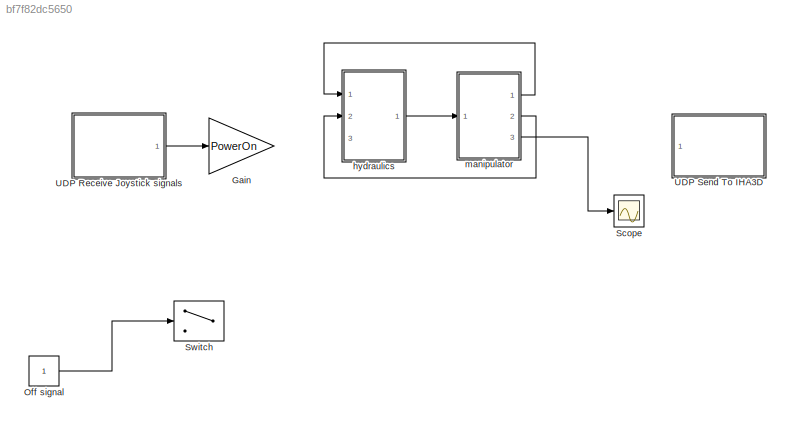
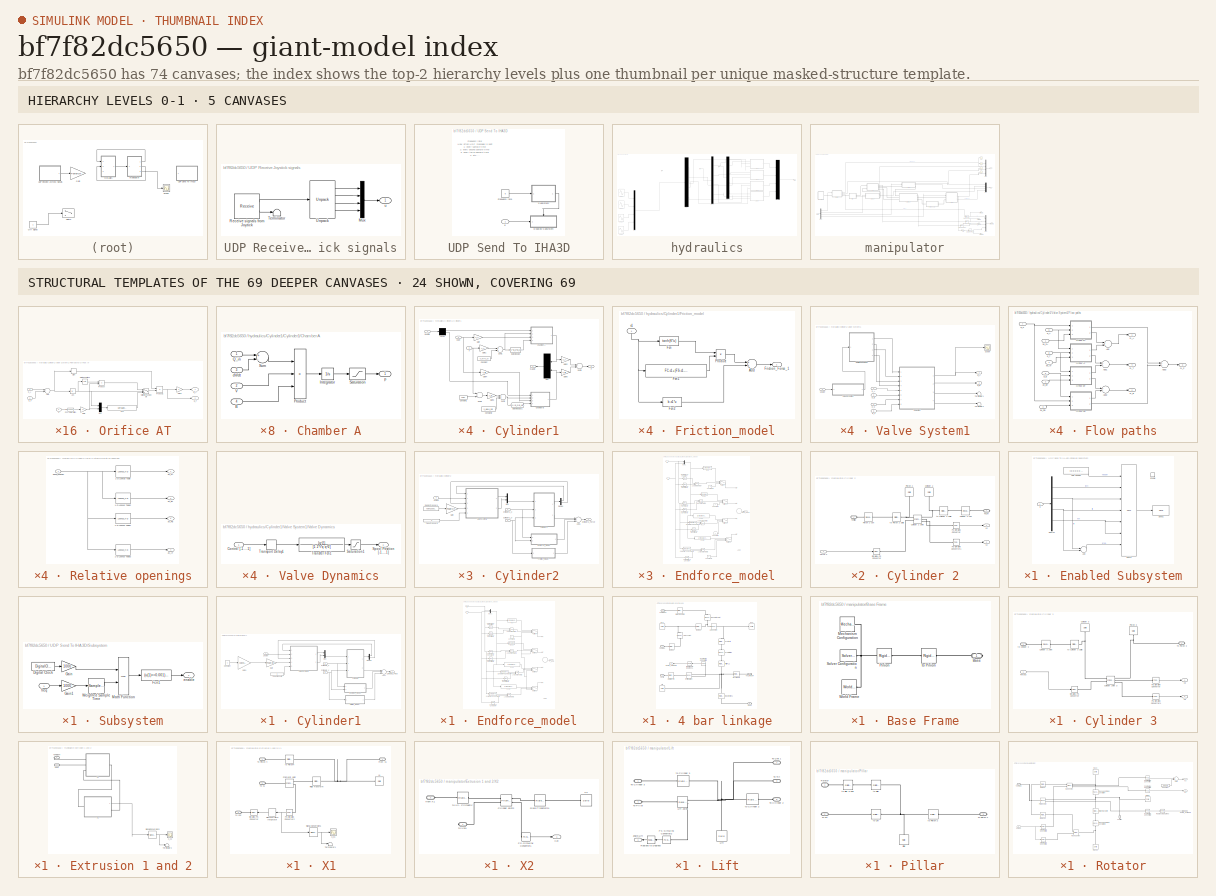
[diagram: thumbnail index - top-2 hierarchy levels (5 canvases) + 24 structural-template representatives of the remaining 69 canvases]
MODEL slx_bf7f82dc5650
KIND model
CONFIG AbsTol = auto
CONFIG EnableMultiTasking = on
CONFIG FixedStep = SampleTime
CONFIG MaxStep = auto
CONFIG MinStep = auto
CONFIG RelTol = 1e-3
CONFIG SampleTimeConstraint = Unconstrained
CONFIG Solver = ode5
CONFIG SolverName = ode5
CONFIG StartTime = 0.0
CONFIG StopTime = 20
BLOCK [Gain] Gain
  Commented = on
  Gain = PowerOn
  OutDataTypeStr = Inherit: Inherit via internal rule
  ParamDataTypeStr = Inherit: Inherit via internal rule
  SaturateOnIntegerOverflow = off
BLOCK [Constant] Off signal
  Commented = on
BLOCK [Scope] Scope
  NumInputPorts = 1
  Ports = [1]
  ScopeSpecificationString = C++SS(StrPVP('Location','[1074, 291, 1634, 711]'),StrPVP('Open','off'),MxPVP('AxesTitles',24,'struct(''axes1'',''%<SignalLabel>'')'),MxPVP('ScopeGraphics',28,'struct(''FigureColor'',''[0.156862745098039 0.156862745098039 0.156862745098039]'',''AxesColor'',''[0 0 0]'',''AxesTickColor'',''[0.686274509803922 0.686274509803922 0.686274509803922]'',''LineColors'',''[1 1 0;1 0 1;0 1 1;1 0 0;0 1 0;0 0 1]...<+380ch>
BLOCK [Switch] Switch
  Commented = on
  Criteria = u2 > Threshold
  InputSameDT = off
  SaturateOnIntegerOverflow = off
BLOCK [SubSystem] UDP Receive Joystick signals
  Commented = on
  Ports = [0, 1]
  RequestExecContextInheritance = off
  Variant = off
BLOCK [Mux] UDP Receive Joystick signals/Mux
  DisplayOption = bar
  Ports = [4, 1]
BLOCK [Reference] UDP Receive Joystick signals/Receive signals from Joytick  REF=xpcrtudplib/Legacy UDP/Receive 
  Ports = [0, 2]
  SourceBlock = xpcrtudplib/Legacy UDP/Receive
  SourceType = xpcudpbytereceive
BLOCK [Terminator] UDP Receive Joystick signals/Terminator
BLOCK [Reference] UDP Receive Joystick signals/Unpack  REF=xpcobsoletelib/Utilities/Unpack 
  Ports = [1, 4]
  SourceBlock = xpcobsoletelib/Utilities/Unpack
  SourceType = xpcbyte2any
BLOCK [Outport] UDP Receive Joystick signals/u
  IconDisplay = Port number
BLOCK [SubSystem] UDP Send To IHA3D
  Commented = on
  Ports = [1]
  RequestExecContextInheritance = off
  Variant = off
BLOCK [SubSystem] UDP Send To IHA3D/Enabled Subsystem
  Ports = [1, 0, 1]
  RequestExecContextInheritance = off
  TreatAsAtomicUnit = on
  Variant = off
BLOCK [Sum] UDP Send To IHA3D/Enabled Subsystem/Add
  InputSameDT = off
  Inputs = --
  OutDataTypeStr = Inherit: Inherit via internal rule
  Ports = [2, 1]
  SaturateOnIntegerOverflow = off
BLOCK [Demux] UDP Send To IHA3D/Enabled Subsystem/Demux
  DisplayOption = bar
  Ports = [1, 4]
BLOCK [EnablePort] UDP Send To IHA3D/Enabled Subsystem/Enable
  Ports = []
BLOCK [Reference] UDP Send To IHA3D/Enabled Subsystem/Pack1  REF=xpcobsoletelib/Utilities/Pack 
  Ports = [7, 1]
  SourceBlock = xpcobsoletelib/Utilities/Pack
  SourceType = xpcany2byte
BLOCK [Reference] UDP Send To IHA3D/Enabled Subsystem/Send1  REF=xpcrtudplib/Legacy UDP/Send 
  Ports = [1]
  SourceBlock = xpcrtudplib/Legacy UDP/Send
  SourceType = xpcudpbytesend
BLOCK [Constant] UDP Send To IHA3D/Enabled Subsystem/UDP header
  OutDataTypeStr = uint8
  Value = [0 0 0 0 0 1 0 8]
BLOCK [Inport] UDP Send To IHA3D/Enabled Subsystem/q
  IconDisplay = Port number
BLOCK [Constant] UDP Send To IHA3D/Frequency rate
  Value = 5
BLOCK [SubSystem] UDP Send To IHA3D/Subsystem
  Ports = [1, 1]
  RequestExecContextInheritance = off
  Variant = off
BLOCK [DigitalClock] UDP Send To IHA3D/Subsystem/Digital Clock
  SampleTime = SampleTime
BLOCK [Fcn] UDP Send To IHA3D/Subsystem/Fcn1
  Expr = (u(1)<=0.001)*1
BLOCK [Gain] UDP Send To IHA3D/Subsystem/Gain
  Gain = 1000
  OutDataTypeStr = Inherit: Inherit via internal rule
  ParamDataTypeStr = Inherit: Inherit via internal rule
  SaturateOnIntegerOverflow = off
BLOCK [Gain] UDP Send To IHA3D/Subsystem/Gain1
  Gain = 1000
  OutDataTypeStr = Inherit: Inherit via internal rule
  ParamDataTypeStr = Inherit: Inherit via internal rule
  SaturateOnIntegerOverflow = off
BLOCK [Math] UDP Send To IHA3D/Subsystem/Math Function
  Operator = mod
  Ports = [2, 1]
BLOCK [SampleTimeMath] UDP Send To IHA3D/Subsystem/Weighted Sample Time
  TsampMathOp = *
BLOCK [Outport] UDP Send To IHA3D/Subsystem/enable
  IconDisplay = Port number
BLOCK [Inport] UDP Send To IHA3D/Subsystem/freq
  IconDisplay = Port number
BLOCK [Inport] UDP Send To IHA3D/q
  IconDisplay = Port number
BLOCK [SubSystem] hydraulics
  Ports = [3, 1]
  RequestExecContextInheritance = off
  Variant = off
BLOCK [SubSystem] hydraulics/Cylinder1
  Ports = [3, 1]
  RequestExecContextInheritance = off
  Variant = off
BLOCK [Sum] hydraulics/Cylinder1/Add1
  InputSameDT = off
  Inputs = ++-
  OutDataTypeStr = Inherit: Inherit via internal rule
  Ports = [3, 1]
  SaturateOnIntegerOverflow = off
BLOCK [Constant] hydraulics/Cylinder1/Constant
BLOCK [SubSystem] hydraulics/Cylinder1/Cylinder1
  Ports = [3, 2]
  RequestExecContextInheritance = off
  Variant = off
BLOCK [Fcn] hydraulics/Cylinder1/Cylinder1/Bulk Modulus
  Expr = u(1)*B_o*B_HA/(u(1)*B_HA+V_HA*B_o)
BLOCK [Fcn] hydraulics/Cylinder1/Cylinder1/Bulk Modulus1
  Expr = u(1)*B_o*B_HB/(u(1)*B_HB+V_HB*B_o)
BLOCK [SubSystem] hydraulics/Cylinder1/Cylinder1/Chamber A
  Ports = [4, 1]
  RequestExecContextInheritance = off
  Variant = off
BLOCK [Inport] hydraulics/Cylinder1/Cylinder1/Chamber A/ B
  IconDisplay = Port number
  Port = 4
BLOCK [Inport] hydraulics/Cylinder1/Cylinder1/Chamber A/ V
  IconDisplay = Port number
  Port = 2
BLOCK [Inport] hydraulics/Cylinder1/Cylinder1/Chamber A/ dV//dt
  IconDisplay = Port number
  Port = 3
BLOCK [Integrator] hydraulics/Cylinder1/Cylinder1/Chamber A/Integrator
  AbsoluteTolerance = 10
  InitialCondition = pinitial
  Ports = [1, 1]
BLOCK [Product] hydraulics/Cylinder1/Cylinder1/Chamber A/Product
  Inputs = */*
  Ports = [3, 1]
  RndMeth = Floor
BLOCK [Inport] hydraulics/Cylinder1/Cylinder1/Chamber A/Q_in
  IconDisplay = Port number
BLOCK [Saturate] hydraulics/Cylinder1/Cylinder1/Chamber A/Saturation
  InputPortMap = u0
  LowerLimit = 0
  Ports = [1, 1]
  UpperLimit = inf
BLOCK [Sum] hydraulics/Cylinder1/Cylinder1/Chamber A/Sum
  Inputs = +-
  Ports = [2, 1]
BLOCK [Outport] hydraulics/Cylinder1/Cylinder1/Chamber A/p
  IconDisplay = Port number
BLOCK [SubSystem] hydraulics/Cylinder1/Cylinder1/Chamber B
  Ports = [4, 1]
  RequestExecContextInheritance = off
  Variant = off
BLOCK [Inport] hydraulics/Cylinder1/Cylinder1/Chamber B/ B
  IconDisplay = Port number
  Port = 4
BLOCK [Inport] hydraulics/Cylinder1/Cylinder1/Chamber B/ V
  IconDisplay = Port number
  Port = 2
BLOCK [Inport] hydraulics/Cylinder1/Cylinder1/Chamber B/ dV//dt
  IconDisplay = Port number
  Port = 3
BLOCK [Integrator] hydraulics/Cylinder1/Cylinder1/Chamber B/Integrator
  AbsoluteTolerance = 10
  InitialCondition = pinitial
  Ports = [1, 1]
BLOCK [Product] hydraulics/Cylinder1/Cylinder1/Chamber B/Product
  Inputs = */*
  Ports = [3, 1]
  RndMeth = Floor
BLOCK [Inport] hydraulics/Cylinder1/Cylinder1/Chamber B/Q_in
  IconDisplay = Port number
BLOCK [Saturate] hydraulics/Cylinder1/Cylinder1/Chamber B/Saturation
  InputPortMap = u0
  LowerLimit = 0
  Ports = [1, 1]
  UpperLimit = inf
BLOCK [Sum] hydraulics/Cylinder1/Cylinder1/Chamber B/Sum
  Inputs = +-
  Ports = [2, 1]
BLOCK [Outport] hydraulics/Cylinder1/Cylinder1/Chamber B/p
  IconDisplay = Port number
BLOCK [Constant] hydraulics/Cylinder1/Cylinder1/Constant
  Value = V_HA+V_0A
BLOCK [Constant] hydraulics/Cylinder1/Cylinder1/Constant1
  Value = xmax
BLOCK [Constant] hydraulics/Cylinder1/Cylinder1/Constant2
  Value = V_HB+V_0B
BLOCK [Demux] hydraulics/Cylinder1/Cylinder1/Demux
  Outputs = 2
  Ports = [1, 2]
BLOCK [Outport] hydraulics/Cylinder1/Cylinder1/F
  IconDisplay = Port number
  InitialOutput = 0
  Port = 2
BLOCK [Gain] hydraulics/Cylinder1/Cylinder1/Gain
  Gain = A_A
BLOCK [Gain] hydraulics/Cylinder1/Cylinder1/Gain1
  Gain = A_A
BLOCK [Gain] hydraulics/Cylinder1/Cylinder1/Gain2
  Gain = A_A
BLOCK [Gain] hydraulics/Cylinder1/Cylinder1/Gain3
  Gain = A_B
BLOCK [Gain] hydraulics/Cylinder1/Cylinder1/Gain4
  Gain = -A_B
BLOCK [Gain] hydraulics/Cylinder1/Cylinder1/Gain5
  Gain = A_B
BLOCK [Mux] hydraulics/Cylinder1/Cylinder1/Mux
  Inputs = 2
  Ports = [2, 1]
BLOCK [Inport] hydraulics/Cylinder1/Cylinder1/QA & QB
  IconDisplay = Port number
BLOCK [Sum] hydraulics/Cylinder1/Cylinder1/Sum1
  Ports = [2, 1]
BLOCK [Sum] hydraulics/Cylinder1/Cylinder1/Sum2
  Ports = [2, 1]
BLOCK [Sum] hydraulics/Cylinder1/Cylinder1/Sum3
  Inputs = -+
  Ports = [2, 1]
BLOCK [Sum] hydraulics/Cylinder1/Cylinder1/Sum5
  Inputs = +-
  Ports = [2, 1]
BLOCK [Inport] hydraulics/Cylinder1/Cylinder1/dx//dt
  IconDisplay = Port number
  Port = 3
BLOCK [Outport] hydraulics/Cylinder1/Cylinder1/pA & pB
  IconDisplay = Port number
  InitialOutput = 0
BLOCK [Inport] hydraulics/Cylinder1/Cylinder1/x
  IconDisplay = Port number
  Port = 2
BLOCK [Outport] hydraulics/Cylinder1/Cylinder1_Force
  IconDisplay = Port number
BLOCK [Inport] hydraulics/Cylinder1/Cylinder1_v
  IconDisplay = Port number
  Port = 2
BLOCK [Inport] hydraulics/Cylinder1/Cylinder1_x
  IconDisplay = Port number
BLOCK [Demux] hydraulics/Cylinder1/Demux
  DisplayOption = bar
  Outputs = 2
  Ports = [1, 2]
BLOCK [SubSystem] hydraulics/Cylinder1/Endforce_model
  Ports = [2, 1]
  RequestExecContextInheritance = off
  Variant = off
BLOCK [Sum] hydraulics/Cylinder1/Endforce_model/Add2
  InputSameDT = off
  Inputs = ++++
  OutDataTypeStr = Inherit: Inherit via internal rule
  Ports = [4, 1]
  SaturateOnIntegerOverflow = off
BLOCK [Reference] hydraulics/Cylinder1/Endforce_model/Compare To Constant  REF=simulink/Logic and Bit
Operations/Compare
To Constant
  Ports = [1, 1]
  SourceBlock = simulink/Logic and Bit\nOperations/Compare\nTo Constant
  SourceType = Compare To Constant
BLOCK [Reference] hydraulics/Cylinder1/Endforce_model/Compare To Constant1  REF=simulink/Logic and Bit
Operations/Compare
To Constant
  Ports = [1, 1]
  SourceBlock = simulink/Logic and Bit\nOperations/Compare\nTo Constant
  SourceType = Compare To Constant
BLOCK [Reference] hydraulics/Cylinder1/Endforce_model/Compare To Constant2  REF=simulink/Logic and Bit
Operations/Compare
To Constant
  Ports = [1, 1]
  SourceBlock = simulink/Logic and Bit\nOperations/Compare\nTo Constant
  SourceType = Compare To Constant
BLOCK [Reference] hydraulics/Cylinder1/Endforce_model/Compare To Constant3  REF=simulink/Logic and Bit
Operations/Compare
To Constant
  Ports = [1, 1]
  SourceBlock = simulink/Logic and Bit\nOperations/Compare\nTo Constant
  SourceType = Compare To Constant
BLOCK [Reference] hydraulics/Cylinder1/Endforce_model/Compare To Constant4  REF=simulink/Logic and Bit
Operations/Compare
To Constant
  Ports = [1, 1]
  SourceBlock = simulink/Logic and Bit\nOperations/Compare\nTo Constant
  SourceType = Compare To Constant
BLOCK [Reference] hydraulics/Cylinder1/Endforce_model/Compare To Constant5  REF=simulink/Logic and Bit
Operations/Compare
To Constant
  Ports = [1, 1]
  SourceBlock = simulink/Logic and Bit\nOperations/Compare\nTo Constant
  SourceType = Compare To Constant
BLOCK [Reference] hydraulics/Cylinder1/Endforce_model/Compare To Constant6  REF=simulink/Logic and Bit
Operations/Compare
To Constant
  Ports = [1, 1]
  SourceBlock = simulink/Logic and Bit\nOperations/Compare\nTo Constant
  SourceType = Compare To Constant
BLOCK [Reference] hydraulics/Cylinder1/Endforce_model/Compare To Constant7  REF=simulink/Logic and Bit
Operations/Compare
To Constant
  Ports = [1, 1]
  SourceBlock = simulink/Logic and Bit\nOperations/Compare\nTo Constant
  SourceType = Compare To Constant
BLOCK [Constant] hydraulics/Cylinder1/Endforce_model/Constant3
  Value = 0
BLOCK [Outport] hydraulics/Cylinder1/Endforce_model/F_end
  IconDisplay = Port number
BLOCK [Fcn] hydraulics/Cylinder1/Endforce_model/Fcn
  Expr = -Cylinder.Kend1*u(1)-Cylinder.bend1*u(2)
BLOCK [Fcn] hydraulics/Cylinder1/Endforce_model/Fcn1
  Expr = -Cylinder.Kend1*u(1)
BLOCK [Fcn] hydraulics/Cylinder1/Endforce_model/Fcn2
  Expr = -Cylinder.Kend1*(u(1)-Cylinder1.max)-Cylinder.bend1*u(2)
BLOCK [Fcn] hydraulics/Cylinder1/Endforce_model/Fcn3
  Expr = -Cylinder.Kend1*(u(1)-Cylinder1.max)
BLOCK [Logic] hydraulics/Cylinder1/Endforce_model/Logical Operator
  AllPortsSameDT = off
  OutDataTypeStr = boolean
  Ports = [2, 1]
BLOCK [Logic] hydraulics/Cylinder1/Endforce_model/Logical Operator1
  AllPortsSameDT = off
  OutDataTypeStr = boolean
  Ports = [2, 1]
BLOCK [Logic] hydraulics/Cylinder1/Endforce_model/Logical Operator2
  AllPortsSameDT = off
  OutDataTypeStr = boolean
  Ports = [2, 1]
BLOCK [Logic] hydraulics/Cylinder1/Endforce_model/Logical Operator3
  AllPortsSameDT = off
  OutDataTypeStr = boolean
  Ports = [2, 1]
BLOCK [Mux] hydraulics/Cylinder1/Endforce_model/Mux1
  DisplayOption = bar
  Inputs = 2
  Ports = [2, 1]
BLOCK [Switch] hydraulics/Cylinder1/Endforce_model/Switch
  Criteria = u2 > Threshold
  InputSameDT = off
  SaturateOnIntegerOverflow = off
BLOCK [Switch] hydraulics/Cylinder1/Endforce_model/Switch1
  Criteria = u2 > Threshold
  InputSameDT = off
  SaturateOnIntegerOverflow = off
BLOCK [Switch] hydraulics/Cylinder1/Endforce_model/Switch2
  Criteria = u2 > Threshold
  InputSameDT = off
  SaturateOnIntegerOverflow = off
BLOCK [Switch] hydraulics/Cylinder1/Endforce_model/Switch3
  Criteria = u2 > Threshold
  InputSameDT = off
  SaturateOnIntegerOverflow = off
BLOCK [Inport] hydraulics/Cylinder1/Endforce_model/v
  IconDisplay = Port number
  Port = 2
BLOCK [Inport] hydraulics/Cylinder1/Endforce_model/x
  IconDisplay = Port number
BLOCK [SubSystem] hydraulics/Cylinder1/Friction_model
  Ports = [1, 1]
  RequestExecContextInheritance = off
  Variant = off
BLOCK [Sum] hydraulics/Cylinder1/Friction_model/Add
  InputSameDT = off
  OutDataTypeStr = Inherit: Inherit via internal rule
  Ports = [2, 1]
  SaturateOnIntegerOverflow = off
BLOCK [Fcn] hydraulics/Cylinder1/Friction_model/Fcn
  Expr = tanh(K*u)
BLOCK [Fcn] hydraulics/Cylinder1/Friction_model/Fcn1
  Expr = FC.c1+(FS.c1-FC.c1)*exp(-(u/VS.c1)^2)
BLOCK [Fcn] hydraulics/Cylinder1/Friction_model/Fcn2
  Expr = b.c1*u
BLOCK [Outport] hydraulics/Cylinder1/Friction_model/Friction_Force_1
  IconDisplay = Port number
BLOCK [Product] hydraulics/Cylinder1/Friction_model/Product
  InputSameDT = off
  OutDataTypeStr = Inherit: Inherit via internal rule
  Ports = [2, 1]
  RndMeth = Floor
  SaturateOnIntegerOverflow = off
BLOCK [Inport] hydraulics/Cylinder1/Friction_model/v1
  IconDisplay = Port number
BLOCK [Gain] hydraulics/Cylinder1/Gain
  Commented = through
  Gain = PowerOn
  OutDataTypeStr = Inherit: Inherit via internal rule
  ParamDataTypeStr = Inherit: Inherit via internal rule
  SaturateOnIntegerOverflow = off
BLOCK [Gain] hydraulics/Cylinder1/Gain1
  Gain = Valve.SupplyP
  OutDataTypeStr = Inherit: Inherit via internal rule
  ParamDataTypeStr = Inherit: Inherit via internal rule
  SaturateOnIntegerOverflow = off
BLOCK [Mux] hydraulics/Cylinder1/Mux
  DisplayOption = bar
  Inputs = 2
  Ports = [2, 1]
BLOCK [Constant] hydraulics/Cylinder1/Tank Pressure
  Value = 0
BLOCK [Inport] hydraulics/Cylinder1/Uvalve
  IconDisplay = Port number
  Port = 3
BLOCK [SubSystem] hydraulics/Cylinder1/Valve System1
  Ports = [5, 2]
  RequestExecContextInheritance = off
  Variant = off
BLOCK [SubSystem] hydraulics/Cylinder1/Valve System1/Flow paths
  Ports = [8, 4]
  RequestExecContextInheritance = off
  Variant = off
BLOCK [Sum] hydraulics/Cylinder1/Valve System1/Flow paths/Add
  InputSameDT = off
  OutDataTypeStr = Inherit: Inherit via internal rule
  Ports = [2, 1]
  SaturateOnIntegerOverflow = off
BLOCK [Sum] hydraulics/Cylinder1/Valve System1/Flow paths/Add1
  InputSameDT = off
  OutDataTypeStr = Inherit: Inherit via internal rule
  Ports = [2, 1]
  SaturateOnIntegerOverflow = off
BLOCK [Sum] hydraulics/Cylinder1/Valve System1/Flow paths/Add2
  InputSameDT = off
  OutDataTypeStr = Inherit: Inherit via internal rule
  Ports = [2, 1]
  SaturateOnIntegerOverflow = off
BLOCK [Sum] hydraulics/Cylinder1/Valve System1/Flow paths/Add3
  InputSameDT = off
  OutDataTypeStr = Inherit: Inherit via internal rule
  Ports = [2, 1]
  SaturateOnIntegerOverflow = off
BLOCK [SubSystem] hydraulics/Cylinder1/Valve System1/Flow paths/Orifice AT
  Ports = [3, 2]
  RequestExecContextInheritance = off
  Variant = off
BLOCK [Abs] hydraulics/Cylinder1/Valve System1/Flow paths/Orifice AT/Abs
  ZeroCross = off
BLOCK [Sum] hydraulics/Cylinder1/Valve System1/Flow paths/Orifice AT/Add
  InputSameDT = off
  Inputs = +-
  OutDataTypeStr = Inherit: Inherit via internal rule
  Ports = [2, 1]
  SaturateOnIntegerOverflow = off
BLOCK [Fcn] hydraulics/Cylinder1/Valve System1/Flow paths/Orifice AT/Fcn
  Expr = u[2]*u[1]/2.0/sqrt(ptr)*(3-u[1]/ptr)
BLOCK [Fcn] hydraulics/Cylinder1/Valve System1/Flow paths/Orifice AT/Fcn-Saturation
  Expr = (u(1)>=-1e-10)*u(1)
BLOCK [Gain] hydraulics/Cylinder1/Valve System1/Flow paths/Orifice AT/Gain
  Gain = K
BLOCK [Gain] hydraulics/Cylinder1/Valve System1/Flow paths/Orifice AT/Gain1
  Gain = -1
BLOCK [Math] hydraulics/Cylinder1/Valve System1/Flow paths/Orifice AT/Math Function1
  Operator = sqrt
  Ports = [1, 1]
BLOCK [Mux] hydraulics/Cylinder1/Valve System1/Flow paths/Orifice AT/Mux
  DisplayOption = bar
  Inputs = 2
  Ports = [2, 1]
BLOCK [Product] hydraulics/Cylinder1/Valve System1/Flow paths/Orifice AT/Product
  Ports = [2, 1]
  RndMeth = Floor
BLOCK [Product] hydraulics/Cylinder1/Valve System1/Flow paths/Orifice AT/Product1
  Ports = [2, 1]
  RndMeth = Floor
BLOCK [Outport] hydraulics/Cylinder1/Valve System1/Flow paths/Orifice AT/Q_A
  IconDisplay = Port number
  InitialOutput = 0
BLOCK [Outport] hydraulics/Cylinder1/Valve System1/Flow paths/Orifice AT/Q_T
  IconDisplay = Port number
  InitialOutput = 0
  Port = 2
BLOCK [Signum] hydraulics/Cylinder1/Valve System1/Flow paths/Orifice AT/Sign
  ZeroCross = off
BLOCK [Switch] hydraulics/Cylinder1/Valve System1/Flow paths/Orifice AT/Switch, treshold = ptr
  InputSameDT = off
  Threshold = ptr
  ZeroCross = off
BLOCK [Inport] hydraulics/Cylinder1/Valve System1/Flow paths/Orifice AT/p_A
  IconDisplay = Port number
BLOCK [Inport] hydraulics/Cylinder1/Valve System1/Flow paths/Orifice AT/p_T
  IconDisplay = Port number
  Port = 2
BLOCK [Inport] hydraulics/Cylinder1/Valve System1/Flow paths/Orifice AT/u
  IconDisplay = Port number
  Port = 3
BLOCK [SubSystem] hydraulics/Cylinder1/Valve System1/Flow paths/Orifice BT
  Ports = [3, 2]
  RequestExecContextInheritance = off
  Variant = off
BLOCK [Abs] hydraulics/Cylinder1/Valve System1/Flow paths/Orifice BT/Abs
  ZeroCross = off
BLOCK [Sum] hydraulics/Cylinder1/Valve System1/Flow paths/Orifice BT/Add
  InputSameDT = off
  Inputs = +-
  OutDataTypeStr = Inherit: Inherit via internal rule
  Ports = [2, 1]
  SaturateOnIntegerOverflow = off
BLOCK [Fcn] hydraulics/Cylinder1/Valve System1/Flow paths/Orifice BT/Fcn
  Expr = u[2]*u[1]/2.0/sqrt(ptr)*(3-u[1]/ptr)
BLOCK [Fcn] hydraulics/Cylinder1/Valve System1/Flow paths/Orifice BT/Fcn-Saturation
  Expr = (u(1)>=-1e-10)*u(1)
BLOCK [Gain] hydraulics/Cylinder1/Valve System1/Flow paths/Orifice BT/Gain
  Gain = K
BLOCK [Gain] hydraulics/Cylinder1/Valve System1/Flow paths/Orifice BT/Gain1
  Gain = -1
BLOCK [Math] hydraulics/Cylinder1/Valve System1/Flow paths/Orifice BT/Math Function1
  Operator = sqrt
  Ports = [1, 1]
BLOCK [Mux] hydraulics/Cylinder1/Valve System1/Flow paths/Orifice BT/Mux
  DisplayOption = bar
  Inputs = 2
  Ports = [2, 1]
BLOCK [Product] hydraulics/Cylinder1/Valve System1/Flow paths/Orifice BT/Product
  Ports = [2, 1]
  RndMeth = Floor
BLOCK [Product] hydraulics/Cylinder1/Valve System1/Flow paths/Orifice BT/Product1
  Ports = [2, 1]
  RndMeth = Floor
BLOCK [Outport] hydraulics/Cylinder1/Valve System1/Flow paths/Orifice BT/Q_B
  IconDisplay = Port number
  InitialOutput = 0
  Port = 2
BLOCK [Outport] hydraulics/Cylinder1/Valve System1/Flow paths/Orifice BT/Q_T
  IconDisplay = Port number
  InitialOutput = 0
BLOCK [Signum] hydraulics/Cylinder1/Valve System1/Flow paths/Orifice BT/Sign
  ZeroCross = off
BLOCK [Switch] hydraulics/Cylinder1/Valve System1/Flow paths/Orifice BT/Switch, treshold = ptr
  InputSameDT = off
  Threshold = ptr
  ZeroCross = off
BLOCK [Inport] hydraulics/Cylinder1/Valve System1/Flow paths/Orifice BT/p_B
  IconDisplay = Port number
  Port = 2
BLOCK [Inport] hydraulics/Cylinder1/Valve System1/Flow paths/Orifice BT/p_T
  IconDisplay = Port number
BLOCK [Inport] hydraulics/Cylinder1/Valve System1/Flow paths/Orifice BT/u
  IconDisplay = Port number
  Port = 3
BLOCK [SubSystem] hydraulics/Cylinder1/Valve System1/Flow paths/Orifice PA
  Ports = [3, 2]
  RequestExecContextInheritance = off
  Variant = off
BLOCK [Abs] hydraulics/Cylinder1/Valve System1/Flow paths/Orifice PA/Abs
  ZeroCross = off
BLOCK [Sum] hydraulics/Cylinder1/Valve System1/Flow paths/Orifice PA/Add
  InputSameDT = off
  Inputs = +-
  OutDataTypeStr = Inherit: Inherit via internal rule
  Ports = [2, 1]
  SaturateOnIntegerOverflow = off
BLOCK [Fcn] hydraulics/Cylinder1/Valve System1/Flow paths/Orifice PA/Fcn
  Expr = u[2]*u[1]/2.0/sqrt(ptr)*(3-u[1]/ptr)
BLOCK [Fcn] hydraulics/Cylinder1/Valve System1/Flow paths/Orifice PA/Fcn-Saturation
  Expr = (u(1)>=-1e-10)*u(1)
BLOCK [Gain] hydraulics/Cylinder1/Valve System1/Flow paths/Orifice PA/Gain
  Gain = K
BLOCK [Gain] hydraulics/Cylinder1/Valve System1/Flow paths/Orifice PA/Gain1
  Gain = -1
BLOCK [Math] hydraulics/Cylinder1/Valve System1/Flow paths/Orifice PA/Math Function1
  Operator = sqrt
  Ports = [1, 1]
BLOCK [Mux] hydraulics/Cylinder1/Valve System1/Flow paths/Orifice PA/Mux
  DisplayOption = bar
  Inputs = 2
  Ports = [2, 1]
BLOCK [Product] hydraulics/Cylinder1/Valve System1/Flow paths/Orifice PA/Product
  Ports = [2, 1]
  RndMeth = Floor
BLOCK [Product] hydraulics/Cylinder1/Valve System1/Flow paths/Orifice PA/Product1
  Ports = [2, 1]
  RndMeth = Floor
BLOCK [Outport] hydraulics/Cylinder1/Valve System1/Flow paths/Orifice PA/Q_A
  IconDisplay = Port number
  InitialOutput = 0
  Port = 2
BLOCK [Outport] hydraulics/Cylinder1/Valve System1/Flow paths/Orifice PA/Q_P
  IconDisplay = Port number
  InitialOutput = 0
BLOCK [Signum] hydraulics/Cylinder1/Valve System1/Flow paths/Orifice PA/Sign
  ZeroCross = off
BLOCK [Switch] hydraulics/Cylinder1/Valve System1/Flow paths/Orifice PA/Switch, treshold = ptr
  InputSameDT = off
  Threshold = ptr
  ZeroCross = off
BLOCK [Inport] hydraulics/Cylinder1/Valve System1/Flow paths/Orifice PA/p_A
  IconDisplay = Port number
  Port = 2
BLOCK [Inport] hydraulics/Cylinder1/Valve System1/Flow paths/Orifice PA/p_P
  IconDisplay = Port number
BLOCK [Inport] hydraulics/Cylinder1/Valve System1/Flow paths/Orifice PA/u
  IconDisplay = Port number
  Port = 3
BLOCK [SubSystem] hydraulics/Cylinder1/Valve System1/Flow paths/Orifice PB
  Ports = [3, 2]
  RequestExecContextInheritance = off
  Variant = off
BLOCK [Abs] hydraulics/Cylinder1/Valve System1/Flow paths/Orifice PB/Abs
  ZeroCross = off
BLOCK [Sum] hydraulics/Cylinder1/Valve System1/Flow paths/Orifice PB/Add
  InputSameDT = off
  Inputs = +-
  OutDataTypeStr = Inherit: Inherit via internal rule
  Ports = [2, 1]
  SaturateOnIntegerOverflow = off
BLOCK [Fcn] hydraulics/Cylinder1/Valve System1/Flow paths/Orifice PB/Fcn
  Expr = u[2]*u[1]/2.0/sqrt(ptr)*(3-u[1]/ptr)
BLOCK [Fcn] hydraulics/Cylinder1/Valve System1/Flow paths/Orifice PB/Fcn-Saturation
  Expr = (u(1)>=-1e-10)*u(1)
BLOCK [Gain] hydraulics/Cylinder1/Valve System1/Flow paths/Orifice PB/Gain
  Gain = K
BLOCK [Gain] hydraulics/Cylinder1/Valve System1/Flow paths/Orifice PB/Gain1
  Gain = -1
BLOCK [Math] hydraulics/Cylinder1/Valve System1/Flow paths/Orifice PB/Math Function1
  Operator = sqrt
  Ports = [1, 1]
BLOCK [Mux] hydraulics/Cylinder1/Valve System1/Flow paths/Orifice PB/Mux
  DisplayOption = bar
  Inputs = 2
  Ports = [2, 1]
BLOCK [Product] hydraulics/Cylinder1/Valve System1/Flow paths/Orifice PB/Product
  Ports = [2, 1]
  RndMeth = Floor
BLOCK [Product] hydraulics/Cylinder1/Valve System1/Flow paths/Orifice PB/Product1
  Ports = [2, 1]
  RndMeth = Floor
BLOCK [Outport] hydraulics/Cylinder1/Valve System1/Flow paths/Orifice PB/Q_B
  IconDisplay = Port number
  InitialOutput = 0
BLOCK [Outport] hydraulics/Cylinder1/Valve System1/Flow paths/Orifice PB/Q_P
  IconDisplay = Port number
  InitialOutput = 0
  Port = 2
BLOCK [Signum] hydraulics/Cylinder1/Valve System1/Flow paths/Orifice PB/Sign
  ZeroCross = off
BLOCK [Switch] hydraulics/Cylinder1/Valve System1/Flow paths/Orifice PB/Switch, treshold = ptr
  InputSameDT = off
  Threshold = ptr
  ZeroCross = off
BLOCK [Inport] hydraulics/Cylinder1/Valve System1/Flow paths/Orifice PB/p_B
  IconDisplay = Port number
BLOCK [Inport] hydraulics/Cylinder1/Valve System1/Flow paths/Orifice PB/p_P
  IconDisplay = Port number
  Port = 2
BLOCK [Inport] hydraulics/Cylinder1/Valve System1/Flow paths/Orifice PB/u
  IconDisplay = Port number
  Port = 3
BLOCK [Outport] hydraulics/Cylinder1/Valve System1/Flow paths/Q_A
  IconDisplay = Port number
BLOCK [Outport] hydraulics/Cylinder1/Valve System1/Flow paths/Q_B
  IconDisplay = Port number
  Port = 2
BLOCK [Outport] hydraulics/Cylinder1/Valve System1/Flow paths/Q_P
  IconDisplay = Port number
  Port = 3
BLOCK [Outport] hydraulics/Cylinder1/Valve System1/Flow paths/Q_T
  IconDisplay = Port number
  Port = 4
BLOCK [Inport] hydraulics/Cylinder1/Valve System1/Flow paths/av_AT
  IconDisplay = Port number
  Port = 4
BLOCK [Inport] hydraulics/Cylinder1/Valve System1/Flow paths/av_BT
  IconDisplay = Port number
  Port = 2
BLOCK [Inport] hydraulics/Cylinder1/Valve System1/Flow paths/av_PA
  IconDisplay = Port number
BLOCK [Inport] hydraulics/Cylinder1/Valve System1/Flow paths/av_PB
  IconDisplay = Port number
  Port = 3
BLOCK [Inport] hydraulics/Cylinder1/Valve System1/Flow paths/p_A
  IconDisplay = Port number
  Port = 5
BLOCK [Inport] hydraulics/Cylinder1/Valve System1/Flow paths/p_B
  IconDisplay = Port number
  Port = 6
BLOCK [Inport] hydraulics/Cylinder1/Valve System1/Flow paths/p_S
  IconDisplay = Port number
  Port = 7
BLOCK [Inport] hydraulics/Cylinder1/Valve System1/Flow paths/p_T 
  IconDisplay = Port number
  Port = 8
BLOCK [Outport] hydraulics/Cylinder1/Valve System1/Q_A
  IconDisplay = Port number
BLOCK [Outport] hydraulics/Cylinder1/Valve System1/Q_B
  IconDisplay = Port number
  Port = 2
BLOCK [SubSystem] hydraulics/Cylinder1/Valve System1/Relative openings
  Ports = [1, 4]
  RequestExecContextInheritance = off
  Variant = off
BLOCK [Lookup_n-D] hydraulics/Cylinder1/Valve System1/Relative openings/1-D Lookup Table
  BreakpointsForDimension1 = Q_PA_break
  InternalRulePriority = Speed
  NumberOfTableDimensions = 1
  Ports = [1, 1]
  RndMeth = Simplest
  Table = Q_PA_look
BLOCK [Lookup_n-D] hydraulics/Cylinder1/Valve System1/Relative openings/1-D Lookup Table1
  BreakpointsForDimension1 = Q_PB_break
  InternalRulePriority = Speed
  NumberOfTableDimensions = 1
  Ports = [1, 1]
  RndMeth = Simplest
  Table = Q_PB_look
BLOCK [Lookup_n-D] hydraulics/Cylinder1/Valve System1/Relative openings/1-D Lookup Table2
  BreakpointsForDimension1 = Q_BT_break
  InternalRulePriority = Speed
  NumberOfTableDimensions = 1
  Ports = [1, 1]
  RndMeth = Simplest
  Table = Q_BT_look
BLOCK [Lookup_n-D] hydraulics/Cylinder1/Valve System1/Relative openings/1-D Lookup Table3
  BreakpointsForDimension1 = Q_AT_break
  InternalRulePriority = Speed
  NumberOfTableDimensions = 1
  Ports = [1, 1]
  RndMeth = Simplest
  Table = Q_AT_look
BLOCK [Inport] hydraulics/Cylinder1/Valve System1/Relative openings/Spool_position
  IconDisplay = Port number
BLOCK [Outport] hydraulics/Cylinder1/Valve System1/Relative openings/av_AT
  IconDisplay = Port number
  Port = 4
BLOCK [Outport] hydraulics/Cylinder1/Valve System1/Relative openings/av_BT
  IconDisplay = Port number
  Port = 3
BLOCK [Outport] hydraulics/Cylinder1/Valve System1/Relative openings/av_PA
  IconDisplay = Port number
BLOCK [Outport] hydraulics/Cylinder1/Valve System1/Relative openings/av_PB
  IconDisplay = Port number
  Port = 2
BLOCK [Scope] hydraulics/Cylinder1/Valve System1/Scope
  NumInputPorts = 1
  Ports = [1]
  ScopeSpecificationString = C++SS(StrPVP('Location','[1, -140, 1921, 823]'),StrPVP('Open','off'),MxPVP('AxesTitles',24,'struct(''axes1'',''%<SignalLabel>'')'),MxPVP('ScopeGraphics',28,'struct(''FigureColor'',''[0.156862745098039 0.156862745098039 0.156862745098039]'',''AxesColor'',''[0 0 0]'',''AxesTickColor'',''[0.686274509803922 0.686274509803922 0.686274509803922]'',''LineColors'',''[1 1 0;1 0 1;0 1 1;1 0 0;0 1 0;0 0 1]''...<+350ch>  <repeated x4 — deduplicated; at blocks: Scope>
BLOCK [Terminator] hydraulics/Cylinder1/Valve System1/Terminator1
BLOCK [Terminator] hydraulics/Cylinder1/Valve System1/Terminator2
BLOCK [Inport] hydraulics/Cylinder1/Valve System1/Uvalve
  IconDisplay = Port number
  Port = 2
BLOCK [SubSystem] hydraulics/Cylinder1/Valve System1/Valve Dynamics
  Ports = [1, 1]
  RequestExecContextInheritance = off
  Variant = off
BLOCK [Inport] hydraulics/Cylinder1/Valve System1/Valve Dynamics/Control [-1....1]
  IconDisplay = Port number
BLOCK [Saturate] hydraulics/Cylinder1/Valve System1/Valve Dynamics/Saturation1
  InputPortMap = u0
  LowerLimit = -1
  Ports = [1, 1]
  UpperLimit = 1
BLOCK [Outport] hydraulics/Cylinder1/Valve System1/Valve Dynamics/Spool Position [-1....1]
  IconDisplay = Port number
BLOCK [TransferFcn] hydraulics/Cylinder1/Valve System1/Valve Dynamics/Transfer Fcn1
  Denominator = [1 2*t*q q^2]
  Numerator = [q^2]
BLOCK [TransportDelay] hydraulics/Cylinder1/Valve System1/Valve Dynamics/Transport Delay1
  DelayTime = Valve.delay
  Ports = [1, 1]
BLOCK [Inport] hydraulics/Cylinder1/Valve System1/p_A
  IconDisplay = Port number
BLOCK [Inport] hydraulics/Cylinder1/Valve System1/p_B
  IconDisplay = Port number
  Port = 3
BLOCK [Inport] hydraulics/Cylinder1/Valve System1/p_S
  IconDisplay = Port number
  Port = 4
BLOCK [Inport] hydraulics/Cylinder1/Valve System1/p_T
  IconDisplay = Port number
  Port = 5
BLOCK [SubSystem] hydraulics/Cylinder2
  Ports = [3, 1]
  RequestExecContextInheritance = off
  Variant = off
BLOCK [Sum] hydraulics/Cylinder2/Add1
  InputSameDT = off
  Inputs = ++-
  OutDataTypeStr = Inherit: Inherit via internal rule
  Ports = [3, 1]
  SaturateOnIntegerOverflow = off
BLOCK [SubSystem] hydraulics/Cylinder2/Cylinder2
  Ports = [3, 2]
  RequestExecContextInheritance = off
  Variant = off
BLOCK [Fcn] hydraulics/Cylinder2/Cylinder2/Bulk Modulus
  Expr = u(1)*B_o*B_HA/(u(1)*B_HA+V_HA*B_o)
BLOCK [Fcn] hydraulics/Cylinder2/Cylinder2/Bulk Modulus1
  Expr = u(1)*B_o*B_HB/(u(1)*B_HB+V_HB*B_o)
BLOCK [SubSystem] hydraulics/Cylinder2/Cylinder2/Chamber A
  Ports = [4, 1]
  RequestExecContextInheritance = off
  Variant = off
BLOCK [Inport] hydraulics/Cylinder2/Cylinder2/Chamber A/ B
  IconDisplay = Port number
  Port = 4
BLOCK [Inport] hydraulics/Cylinder2/Cylinder2/Chamber A/ V
  IconDisplay = Port number
  Port = 2
BLOCK [Inport] hydraulics/Cylinder2/Cylinder2/Chamber A/ dV//dt
  IconDisplay = Port number
  Port = 3
BLOCK [Integrator] hydraulics/Cylinder2/Cylinder2/Chamber A/Integrator
  AbsoluteTolerance = 10
  InitialCondition = pinitial
  Ports = [1, 1]
BLOCK [Product] hydraulics/Cylinder2/Cylinder2/Chamber A/Product
  Inputs = */*
  Ports = [3, 1]
  RndMeth = Floor
BLOCK [Inport] hydraulics/Cylinder2/Cylinder2/Chamber A/Q_in
  IconDisplay = Port number
BLOCK [Saturate] hydraulics/Cylinder2/Cylinder2/Chamber A/Saturation
  InputPortMap = u0
  LowerLimit = 0
  Ports = [1, 1]
  UpperLimit = inf
BLOCK [Sum] hydraulics/Cylinder2/Cylinder2/Chamber A/Sum
  Inputs = +-
  Ports = [2, 1]
BLOCK [Outport] hydraulics/Cylinder2/Cylinder2/Chamber A/p
  IconDisplay = Port number
BLOCK [SubSystem] hydraulics/Cylinder2/Cylinder2/Chamber B
  Ports = [4, 1]
  RequestExecContextInheritance = off
  Variant = off
BLOCK [Inport] hydraulics/Cylinder2/Cylinder2/Chamber B/ B
  IconDisplay = Port number
  Port = 4
BLOCK [Inport] hydraulics/Cylinder2/Cylinder2/Chamber B/ V
  IconDisplay = Port number
  Port = 2
BLOCK [Inport] hydraulics/Cylinder2/Cylinder2/Chamber B/ dV//dt
  IconDisplay = Port number
  Port = 3
BLOCK [Integrator] hydraulics/Cylinder2/Cylinder2/Chamber B/Integrator
  AbsoluteTolerance = 10
  InitialCondition = pinitial
  Ports = [1, 1]
BLOCK [Product] hydraulics/Cylinder2/Cylinder2/Chamber B/Product
  Inputs = */*
  Ports = [3, 1]
  RndMeth = Floor
BLOCK [Inport] hydraulics/Cylinder2/Cylinder2/Chamber B/Q_in
  IconDisplay = Port number
BLOCK [Saturate] hydraulics/Cylinder2/Cylinder2/Chamber B/Saturation
  InputPortMap = u0
  LowerLimit = 0
  Ports = [1, 1]
  UpperLimit = inf
BLOCK [Sum] hydraulics/Cylinder2/Cylinder2/Chamber B/Sum
  Inputs = +-
  Ports = [2, 1]
BLOCK [Outport] hydraulics/Cylinder2/Cylinder2/Chamber B/p
  IconDisplay = Port number
BLOCK [Constant] hydraulics/Cylinder2/Cylinder2/Constant
  Value = V_HA+V_0A
BLOCK [Constant] hydraulics/Cylinder2/Cylinder2/Constant1
  Value = xmax
BLOCK [Constant] hydraulics/Cylinder2/Cylinder2/Constant2
  Value = V_HB+V_0B
BLOCK [Demux] hydraulics/Cylinder2/Cylinder2/Demux
  Outputs = 2
  Ports = [1, 2]
BLOCK [Outport] hydraulics/Cylinder2/Cylinder2/F
  IconDisplay = Port number
  InitialOutput = 0
  Port = 2
BLOCK [Gain] hydraulics/Cylinder2/Cylinder2/Gain
  Gain = A_A
BLOCK [Gain] hydraulics/Cylinder2/Cylinder2/Gain1
  Gain = A_A
BLOCK [Gain] hydraulics/Cylinder2/Cylinder2/Gain2
  Gain = A_A
BLOCK [Gain] hydraulics/Cylinder2/Cylinder2/Gain3
  Gain = A_B
BLOCK [Gain] hydraulics/Cylinder2/Cylinder2/Gain4
  Gain = -A_B
BLOCK [Gain] hydraulics/Cylinder2/Cylinder2/Gain5
  Gain = A_B
BLOCK [Mux] hydraulics/Cylinder2/Cylinder2/Mux
  Inputs = 2
  Ports = [2, 1]
BLOCK [Inport] hydraulics/Cylinder2/Cylinder2/QA & QB
  IconDisplay = Port number
BLOCK [Sum] hydraulics/Cylinder2/Cylinder2/Sum1
  Ports = [2, 1]
BLOCK [Sum] hydraulics/Cylinder2/Cylinder2/Sum2
  Ports = [2, 1]
BLOCK [Sum] hydraulics/Cylinder2/Cylinder2/Sum3
  Inputs = -+
  Ports = [2, 1]
BLOCK [Sum] hydraulics/Cylinder2/Cylinder2/Sum5
  Inputs = +-
  Ports = [2, 1]
BLOCK [Inport] hydraulics/Cylinder2/Cylinder2/dx//dt
  IconDisplay = Port number
  Port = 3
BLOCK [Outport] hydraulics/Cylinder2/Cylinder2/pA & pB
  IconDisplay = Port number
  InitialOutput = 0
BLOCK [Inport] hydraulics/Cylinder2/Cylinder2/x
  IconDisplay = Port number
  Port = 2
BLOCK [Outport] hydraulics/Cylinder2/Cylinder2_Force
  IconDisplay = Port number
BLOCK [Inport] hydraulics/Cylinder2/Cylinder2_v
  IconDisplay = Port number
  Port = 2
BLOCK [Inport] hydraulics/Cylinder2/Cylinder2_x
  IconDisplay = Port number
BLOCK [Demux] hydraulics/Cylinder2/Demux
  DisplayOption = bar
  Outputs = 2
  Ports = [1, 2]
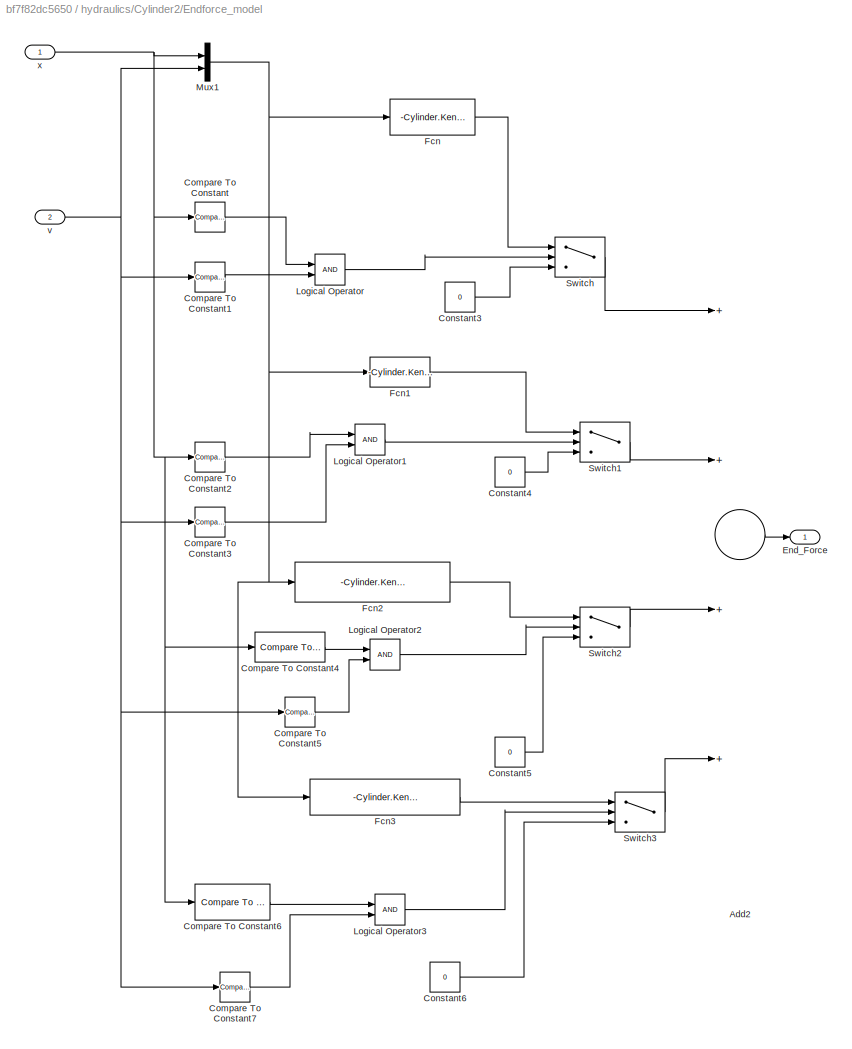
BLOCK [SubSystem] hydraulics/Cylinder2/Endforce_model
  Ports = [2, 1]
  RequestExecContextInheritance = off
  Variant = off
BLOCK [Sum] hydraulics/Cylinder2/Endforce_model/Add2
  InputSameDT = off
  Inputs = ++++
  OutDataTypeStr = Inherit: Inherit via internal rule
  Ports = [4, 1]
  SaturateOnIntegerOverflow = off
BLOCK [Reference] hydraulics/Cylinder2/Endforce_model/Compare To Constant  REF=simulink/Logic and Bit
Operations/Compare
To Constant
  Ports = [1, 1]
  SourceBlock = simulink/Logic and Bit\nOperations/Compare\nTo Constant
  SourceType = Compare To Constant
BLOCK [Reference] hydraulics/Cylinder2/Endforce_model/Compare To Constant1  REF=simulink/Logic and Bit
Operations/Compare
To Constant
  Ports = [1, 1]
  SourceBlock = simulink/Logic and Bit\nOperations/Compare\nTo Constant
  SourceType = Compare To Constant
BLOCK [Reference] hydraulics/Cylinder2/Endforce_model/Compare To Constant2  REF=simulink/Logic and Bit
Operations/Compare
To Constant
  Ports = [1, 1]
  SourceBlock = simulink/Logic and Bit\nOperations/Compare\nTo Constant
  SourceType = Compare To Constant
BLOCK [Reference] hydraulics/Cylinder2/Endforce_model/Compare To Constant3  REF=simulink/Logic and Bit
Operations/Compare
To Constant
  Ports = [1, 1]
  SourceBlock = simulink/Logic and Bit\nOperations/Compare\nTo Constant
  SourceType = Compare To Constant
BLOCK [Reference] hydraulics/Cylinder2/Endforce_model/Compare To Constant4  REF=simulink/Logic and Bit
Operations/Compare
To Constant
  Ports = [1, 1]
  SourceBlock = simulink/Logic and Bit\nOperations/Compare\nTo Constant
  SourceType = Compare To Constant
BLOCK [Reference] hydraulics/Cylinder2/Endforce_model/Compare To Constant5  REF=simulink/Logic and Bit
Operations/Compare
To Constant
  Ports = [1, 1]
  SourceBlock = simulink/Logic and Bit\nOperations/Compare\nTo Constant
  SourceType = Compare To Constant
BLOCK [Reference] hydraulics/Cylinder2/Endforce_model/Compare To Constant6  REF=simulink/Logic and Bit
Operations/Compare
To Constant
  Ports = [1, 1]
  SourceBlock = simulink/Logic and Bit\nOperations/Compare\nTo Constant
  SourceType = Compare To Constant
BLOCK [Reference] hydraulics/Cylinder2/Endforce_model/Compare To Constant7  REF=simulink/Logic and Bit
Operations/Compare
To Constant
  Ports = [1, 1]
  SourceBlock = simulink/Logic and Bit\nOperations/Compare\nTo Constant
  SourceType = Compare To Constant
BLOCK [Constant] hydraulics/Cylinder2/Endforce_model/Constant3
  Value = 0
BLOCK [Constant] hydraulics/Cylinder2/Endforce_model/Constant4
  Value = 0
BLOCK [Constant] hydraulics/Cylinder2/Endforce_model/Constant5
  Value = 0
BLOCK [Constant] hydraulics/Cylinder2/Endforce_model/Constant6
  Value = 0
BLOCK [Outport] hydraulics/Cylinder2/Endforce_model/End_Force
  IconDisplay = Port number
BLOCK [Fcn] hydraulics/Cylinder2/Endforce_model/Fcn
  Expr = -Cylinder.Kend2*u(1)-Cylinder.bend2*u(2)
BLOCK [Fcn] hydraulics/Cylinder2/Endforce_model/Fcn1
  Expr = -Cylinder.Kend2*u(1)
BLOCK [Fcn] hydraulics/Cylinder2/Endforce_model/Fcn2
  Expr = -Cylinder.Kend2*(u(1)-Cylinder2.max)-Cylinder.bend2*u(2)
BLOCK [Fcn] hydraulics/Cylinder2/Endforce_model/Fcn3
  Expr = -Cylinder.Kend2*(u(1)-Cylinder2.max)
BLOCK [Logic] hydraulics/Cylinder2/Endforce_model/Logical Operator
  AllPortsSameDT = off
  OutDataTypeStr = boolean
  Ports = [2, 1]
BLOCK [Logic] hydraulics/Cylinder2/Endforce_model/Logical Operator1
  AllPortsSameDT = off
  OutDataTypeStr = boolean
  Ports = [2, 1]
BLOCK [Logic] hydraulics/Cylinder2/Endforce_model/Logical Operator2
  AllPortsSameDT = off
  OutDataTypeStr = boolean
  Ports = [2, 1]
BLOCK [Logic] hydraulics/Cylinder2/Endforce_model/Logical Operator3
  AllPortsSameDT = off
  OutDataTypeStr = boolean
  Ports = [2, 1]
BLOCK [Mux] hydraulics/Cylinder2/Endforce_model/Mux1
  DisplayOption = bar
  Inputs = 2
  Ports = [2, 1]
BLOCK [Switch] hydraulics/Cylinder2/Endforce_model/Switch
  Criteria = u2 > Threshold
  InputSameDT = off
  SaturateOnIntegerOverflow = off
BLOCK [Switch] hydraulics/Cylinder2/Endforce_model/Switch1
  Criteria = u2 > Threshold
  InputSameDT = off
  SaturateOnIntegerOverflow = off
BLOCK [Switch] hydraulics/Cylinder2/Endforce_model/Switch2
  Criteria = u2 > Threshold
  InputSameDT = off
  SaturateOnIntegerOverflow = off
BLOCK [Switch] hydraulics/Cylinder2/Endforce_model/Switch3
  Criteria = u2 > Threshold
  InputSameDT = off
  SaturateOnIntegerOverflow = off
BLOCK [Inport] hydraulics/Cylinder2/Endforce_model/v
  IconDisplay = Port number
  Port = 2
BLOCK [Inport] hydraulics/Cylinder2/Endforce_model/x
  IconDisplay = Port number
BLOCK [SubSystem] hydraulics/Cylinder2/Friction_model
  Ports = [1, 1]
  RequestExecContextInheritance = off
  Variant = off
BLOCK [Sum] hydraulics/Cylinder2/Friction_model/Add
  InputSameDT = off
  OutDataTypeStr = Inherit: Inherit via internal rule
  Ports = [2, 1]
  SaturateOnIntegerOverflow = off
BLOCK [Fcn] hydraulics/Cylinder2/Friction_model/Fcn
  Expr = tanh(K*u)
BLOCK [Fcn] hydraulics/Cylinder2/Friction_model/Fcn1
  Expr = FC.c2+(FS.c2-FC.c2)*exp(-(u/VS.c2)^2)
BLOCK [Fcn] hydraulics/Cylinder2/Friction_model/Fcn2
  Expr = b.c2*u
BLOCK [Outport] hydraulics/Cylinder2/Friction_model/Friction_Force
  IconDisplay = Port number
BLOCK [Product] hydraulics/Cylinder2/Friction_model/Product
  InputSameDT = off
  OutDataTypeStr = Inherit: Inherit via internal rule
  Ports = [2, 1]
  RndMeth = Floor
  SaturateOnIntegerOverflow = off
BLOCK [Inport] hydraulics/Cylinder2/Friction_model/v
  IconDisplay = Port number
BLOCK [Gain] hydraulics/Cylinder2/Gain
  Commented = through
  Gain = PowerOn
  OutDataTypeStr = Inherit: Inherit via internal rule
  ParamDataTypeStr = Inherit: Inherit via internal rule
  SaturateOnIntegerOverflow = off
BLOCK [Mux] hydraulics/Cylinder2/Mux
  DisplayOption = bar
  Inputs = 2
  Ports = [2, 1]
BLOCK [Constant] hydraulics/Cylinder2/Supply Pressure
  Value = Valve.SupplyP
BLOCK [Constant] hydraulics/Cylinder2/Tank Pressure
  Value = 0
BLOCK [Inport] hydraulics/Cylinder2/Uvalve
  IconDisplay = Port number
  Port = 3
BLOCK [SubSystem] hydraulics/Cylinder2/Valve System2
  Ports = [5, 2]
  RequestExecContextInheritance = off
  Variant = off
BLOCK [SubSystem] hydraulics/Cylinder2/Valve System2/Flow paths
  Ports = [8, 4]
  RequestExecContextInheritance = off
  Variant = off
BLOCK [Sum] hydraulics/Cylinder2/Valve System2/Flow paths/Add
  InputSameDT = off
  OutDataTypeStr = Inherit: Inherit via internal rule
  Ports = [2, 1]
  SaturateOnIntegerOverflow = off
BLOCK [Sum] hydraulics/Cylinder2/Valve System2/Flow paths/Add1
  InputSameDT = off
  OutDataTypeStr = Inherit: Inherit via internal rule
  Ports = [2, 1]
  SaturateOnIntegerOverflow = off
BLOCK [Sum] hydraulics/Cylinder2/Valve System2/Flow paths/Add2
  InputSameDT = off
  OutDataTypeStr = Inherit: Inherit via internal rule
  Ports = [2, 1]
  SaturateOnIntegerOverflow = off
BLOCK [Sum] hydraulics/Cylinder2/Valve System2/Flow paths/Add3
  InputSameDT = off
  OutDataTypeStr = Inherit: Inherit via internal rule
  Ports = [2, 1]
  SaturateOnIntegerOverflow = off
BLOCK [SubSystem] hydraulics/Cylinder2/Valve System2/Flow paths/Orifice AT
  Ports = [3, 2]
  RequestExecContextInheritance = off
  Variant = off
BLOCK [Abs] hydraulics/Cylinder2/Valve System2/Flow paths/Orifice AT/Abs
  ZeroCross = off
BLOCK [Sum] hydraulics/Cylinder2/Valve System2/Flow paths/Orifice AT/Add
  InputSameDT = off
  Inputs = +-
  OutDataTypeStr = Inherit: Inherit via internal rule
  Ports = [2, 1]
  SaturateOnIntegerOverflow = off
BLOCK [Fcn] hydraulics/Cylinder2/Valve System2/Flow paths/Orifice AT/Fcn
  Expr = u[2]*u[1]/2.0/sqrt(ptr)*(3-u[1]/ptr)
BLOCK [Fcn] hydraulics/Cylinder2/Valve System2/Flow paths/Orifice AT/Fcn-Saturation
  Expr = (u(1)>=-1e-10)*u(1)
BLOCK [Gain] hydraulics/Cylinder2/Valve System2/Flow paths/Orifice AT/Gain
  Gain = K
BLOCK [Gain] hydraulics/Cylinder2/Valve System2/Flow paths/Orifice AT/Gain1
  Gain = -1
BLOCK [Math] hydraulics/Cylinder2/Valve System2/Flow paths/Orifice AT/Math Function1
  Operator = sqrt
  Ports = [1, 1]
BLOCK [Mux] hydraulics/Cylinder2/Valve System2/Flow paths/Orifice AT/Mux
  DisplayOption = bar
  Inputs = 2
  Ports = [2, 1]
BLOCK [Product] hydraulics/Cylinder2/Valve System2/Flow paths/Orifice AT/Product
  Ports = [2, 1]
  RndMeth = Floor
BLOCK [Product] hydraulics/Cylinder2/Valve System2/Flow paths/Orifice AT/Product1
  Ports = [2, 1]
  RndMeth = Floor
BLOCK [Outport] hydraulics/Cylinder2/Valve System2/Flow paths/Orifice AT/Q_A
  IconDisplay = Port number
  InitialOutput = 0
BLOCK [Outport] hydraulics/Cylinder2/Valve System2/Flow paths/Orifice AT/Q_T
  IconDisplay = Port number
  InitialOutput = 0
  Port = 2
BLOCK [Signum] hydraulics/Cylinder2/Valve System2/Flow paths/Orifice AT/Sign
  ZeroCross = off
BLOCK [Switch] hydraulics/Cylinder2/Valve System2/Flow paths/Orifice AT/Switch, treshold = ptr
  InputSameDT = off
  Threshold = ptr
  ZeroCross = off
BLOCK [Inport] hydraulics/Cylinder2/Valve System2/Flow paths/Orifice AT/p_A
  IconDisplay = Port number
BLOCK [Inport] hydraulics/Cylinder2/Valve System2/Flow paths/Orifice AT/p_T
  IconDisplay = Port number
  Port = 2
BLOCK [Inport] hydraulics/Cylinder2/Valve System2/Flow paths/Orifice AT/u
  IconDisplay = Port number
  Port = 3
BLOCK [SubSystem] hydraulics/Cylinder2/Valve System2/Flow paths/Orifice BT
  Ports = [3, 2]
  RequestExecContextInheritance = off
  Variant = off
BLOCK [Abs] hydraulics/Cylinder2/Valve System2/Flow paths/Orifice BT/Abs
  ZeroCross = off
BLOCK [Sum] hydraulics/Cylinder2/Valve System2/Flow paths/Orifice BT/Add
  InputSameDT = off
  Inputs = +-
  OutDataTypeStr = Inherit: Inherit via internal rule
  Ports = [2, 1]
  SaturateOnIntegerOverflow = off
BLOCK [Fcn] hydraulics/Cylinder2/Valve System2/Flow paths/Orifice BT/Fcn
  Expr = u[2]*u[1]/2.0/sqrt(ptr)*(3-u[1]/ptr)
BLOCK [Fcn] hydraulics/Cylinder2/Valve System2/Flow paths/Orifice BT/Fcn-Saturation
  Expr = (u(1)>=-1e-10)*u(1)
BLOCK [Gain] hydraulics/Cylinder2/Valve System2/Flow paths/Orifice BT/Gain
  Gain = K
BLOCK [Gain] hydraulics/Cylinder2/Valve System2/Flow paths/Orifice BT/Gain1
  Gain = -1
BLOCK [Math] hydraulics/Cylinder2/Valve System2/Flow paths/Orifice BT/Math Function1
  Operator = sqrt
  Ports = [1, 1]
BLOCK [Mux] hydraulics/Cylinder2/Valve System2/Flow paths/Orifice BT/Mux
  DisplayOption = bar
  Inputs = 2
  Ports = [2, 1]
BLOCK [Product] hydraulics/Cylinder2/Valve System2/Flow paths/Orifice BT/Product
  Ports = [2, 1]
  RndMeth = Floor
BLOCK [Product] hydraulics/Cylinder2/Valve System2/Flow paths/Orifice BT/Product1
  Ports = [2, 1]
  RndMeth = Floor
BLOCK [Outport] hydraulics/Cylinder2/Valve System2/Flow paths/Orifice BT/Q_B
  IconDisplay = Port number
  InitialOutput = 0
  Port = 2
BLOCK [Outport] hydraulics/Cylinder2/Valve System2/Flow paths/Orifice BT/Q_T
  IconDisplay = Port number
  InitialOutput = 0
BLOCK [Signum] hydraulics/Cylinder2/Valve System2/Flow paths/Orifice BT/Sign
  ZeroCross = off
BLOCK [Switch] hydraulics/Cylinder2/Valve System2/Flow paths/Orifice BT/Switch, treshold = ptr
  InputSameDT = off
  Threshold = ptr
  ZeroCross = off
BLOCK [Inport] hydraulics/Cylinder2/Valve System2/Flow paths/Orifice BT/p_B
  IconDisplay = Port number
  Port = 2
BLOCK [Inport] hydraulics/Cylinder2/Valve System2/Flow paths/Orifice BT/p_T
  IconDisplay = Port number
BLOCK [Inport] hydraulics/Cylinder2/Valve System2/Flow paths/Orifice BT/u
  IconDisplay = Port number
  Port = 3
BLOCK [SubSystem] hydraulics/Cylinder2/Valve System2/Flow paths/Orifice PA
  Ports = [3, 2]
  RequestExecContextInheritance = off
  Variant = off
BLOCK [Abs] hydraulics/Cylinder2/Valve System2/Flow paths/Orifice PA/Abs
  ZeroCross = off
BLOCK [Sum] hydraulics/Cylinder2/Valve System2/Flow paths/Orifice PA/Add
  InputSameDT = off
  Inputs = +-
  OutDataTypeStr = Inherit: Inherit via internal rule
  Ports = [2, 1]
  SaturateOnIntegerOverflow = off
BLOCK [Fcn] hydraulics/Cylinder2/Valve System2/Flow paths/Orifice PA/Fcn
  Expr = u[2]*u[1]/2.0/sqrt(ptr)*(3-u[1]/ptr)
BLOCK [Fcn] hydraulics/Cylinder2/Valve System2/Flow paths/Orifice PA/Fcn-Saturation
  Expr = (u(1)>=-1e-10)*u(1)
BLOCK [Gain] hydraulics/Cylinder2/Valve System2/Flow paths/Orifice PA/Gain
  Gain = K
BLOCK [Gain] hydraulics/Cylinder2/Valve System2/Flow paths/Orifice PA/Gain1
  Gain = -1
BLOCK [Math] hydraulics/Cylinder2/Valve System2/Flow paths/Orifice PA/Math Function1
  Operator = sqrt
  Ports = [1, 1]
BLOCK [Mux] hydraulics/Cylinder2/Valve System2/Flow paths/Orifice PA/Mux
  DisplayOption = bar
  Inputs = 2
  Ports = [2, 1]
BLOCK [Product] hydraulics/Cylinder2/Valve System2/Flow paths/Orifice PA/Product
  Ports = [2, 1]
  RndMeth = Floor
BLOCK [Product] hydraulics/Cylinder2/Valve System2/Flow paths/Orifice PA/Product1
  Ports = [2, 1]
  RndMeth = Floor
BLOCK [Outport] hydraulics/Cylinder2/Valve System2/Flow paths/Orifice PA/Q_A
  IconDisplay = Port number
  InitialOutput = 0
  Port = 2
BLOCK [Outport] hydraulics/Cylinder2/Valve System2/Flow paths/Orifice PA/Q_P
  IconDisplay = Port number
  InitialOutput = 0
BLOCK [Signum] hydraulics/Cylinder2/Valve System2/Flow paths/Orifice PA/Sign
  ZeroCross = off
BLOCK [Switch] hydraulics/Cylinder2/Valve System2/Flow paths/Orifice PA/Switch, treshold = ptr
  InputSameDT = off
  Threshold = ptr
  ZeroCross = off
BLOCK [Inport] hydraulics/Cylinder2/Valve System2/Flow paths/Orifice PA/p_A
  IconDisplay = Port number
  Port = 2
BLOCK [Inport] hydraulics/Cylinder2/Valve System2/Flow paths/Orifice PA/p_P
  IconDisplay = Port number
BLOCK [Inport] hydraulics/Cylinder2/Valve System2/Flow paths/Orifice PA/u
  IconDisplay = Port number
  Port = 3
BLOCK [SubSystem] hydraulics/Cylinder2/Valve System2/Flow paths/Orifice PB
  Ports = [3, 2]
  RequestExecContextInheritance = off
  Variant = off
BLOCK [Abs] hydraulics/Cylinder2/Valve System2/Flow paths/Orifice PB/Abs
  ZeroCross = off
BLOCK [Sum] hydraulics/Cylinder2/Valve System2/Flow paths/Orifice PB/Add
  InputSameDT = off
  Inputs = +-
  OutDataTypeStr = Inherit: Inherit via internal rule
  Ports = [2, 1]
  SaturateOnIntegerOverflow = off
BLOCK [Fcn] hydraulics/Cylinder2/Valve System2/Flow paths/Orifice PB/Fcn
  Expr = u[2]*u[1]/2.0/sqrt(ptr)*(3-u[1]/ptr)
BLOCK [Fcn] hydraulics/Cylinder2/Valve System2/Flow paths/Orifice PB/Fcn-Saturation
  Expr = (u(1)>=-1e-10)*u(1)
BLOCK [Gain] hydraulics/Cylinder2/Valve System2/Flow paths/Orifice PB/Gain
  Gain = K
BLOCK [Gain] hydraulics/Cylinder2/Valve System2/Flow paths/Orifice PB/Gain1
  Gain = -1
BLOCK [Math] hydraulics/Cylinder2/Valve System2/Flow paths/Orifice PB/Math Function1
  Operator = sqrt
  Ports = [1, 1]
BLOCK [Mux] hydraulics/Cylinder2/Valve System2/Flow paths/Orifice PB/Mux
  DisplayOption = bar
  Inputs = 2
  Ports = [2, 1]
BLOCK [Product] hydraulics/Cylinder2/Valve System2/Flow paths/Orifice PB/Product
  Ports = [2, 1]
  RndMeth = Floor
BLOCK [Product] hydraulics/Cylinder2/Valve System2/Flow paths/Orifice PB/Product1
  Ports = [2, 1]
  RndMeth = Floor
BLOCK [Outport] hydraulics/Cylinder2/Valve System2/Flow paths/Orifice PB/Q_B
  IconDisplay = Port number
  InitialOutput = 0
BLOCK [Outport] hydraulics/Cylinder2/Valve System2/Flow paths/Orifice PB/Q_P
  IconDisplay = Port number
  InitialOutput = 0
  Port = 2
BLOCK [Signum] hydraulics/Cylinder2/Valve System2/Flow paths/Orifice PB/Sign
  ZeroCross = off
BLOCK [Switch] hydraulics/Cylinder2/Valve System2/Flow paths/Orifice PB/Switch, treshold = ptr
  InputSameDT = off
  Threshold = ptr
  ZeroCross = off
BLOCK [Inport] hydraulics/Cylinder2/Valve System2/Flow paths/Orifice PB/p_B
  IconDisplay = Port number
BLOCK [Inport] hydraulics/Cylinder2/Valve System2/Flow paths/Orifice PB/p_P
  IconDisplay = Port number
  Port = 2
BLOCK [Inport] hydraulics/Cylinder2/Valve System2/Flow paths/Orifice PB/u
  IconDisplay = Port number
  Port = 3
BLOCK [Outport] hydraulics/Cylinder2/Valve System2/Flow paths/Q_A
  IconDisplay = Port number
BLOCK [Outport] hydraulics/Cylinder2/Valve System2/Flow paths/Q_B
  IconDisplay = Port number
  Port = 2
BLOCK [Outport] hydraulics/Cylinder2/Valve System2/Flow paths/Q_P
  IconDisplay = Port number
  Port = 3
BLOCK [Outport] hydraulics/Cylinder2/Valve System2/Flow paths/Q_T
  IconDisplay = Port number
  Port = 4
BLOCK [Inport] hydraulics/Cylinder2/Valve System2/Flow paths/av_AT
  IconDisplay = Port number
  Port = 4
BLOCK [Inport] hydraulics/Cylinder2/Valve System2/Flow paths/av_BT
  IconDisplay = Port number
  Port = 2
BLOCK [Inport] hydraulics/Cylinder2/Valve System2/Flow paths/av_PA
  IconDisplay = Port number
BLOCK [Inport] hydraulics/Cylinder2/Valve System2/Flow paths/av_PB
  IconDisplay = Port number
  Port = 3
BLOCK [Inport] hydraulics/Cylinder2/Valve System2/Flow paths/p_A
  IconDisplay = Port number
  Port = 5
BLOCK [Inport] hydraulics/Cylinder2/Valve System2/Flow paths/p_B
  IconDisplay = Port number
  Port = 6
BLOCK [Inport] hydraulics/Cylinder2/Valve System2/Flow paths/p_S
  IconDisplay = Port number
  Port = 7
BLOCK [Inport] hydraulics/Cylinder2/Valve System2/Flow paths/p_T 
  IconDisplay = Port number
  Port = 8
BLOCK [Outport] hydraulics/Cylinder2/Valve System2/Q_A
  IconDisplay = Port number
BLOCK [Outport] hydraulics/Cylinder2/Valve System2/Q_B
  IconDisplay = Port number
  Port = 2
BLOCK [SubSystem] hydraulics/Cylinder2/Valve System2/Relative openings
  Ports = [1, 4]
  RequestExecContextInheritance = off
  Variant = off
BLOCK [Lookup_n-D] hydraulics/Cylinder2/Valve System2/Relative openings/1-D Lookup Table
  BreakpointsForDimension1 = Q_PA_break
  InternalRulePriority = Speed
  NumberOfTableDimensions = 1
  Ports = [1, 1]
  RndMeth = Simplest
  Table = Q_PA_look
BLOCK [Lookup_n-D] hydraulics/Cylinder2/Valve System2/Relative openings/1-D Lookup Table1
  BreakpointsForDimension1 = Q_PB_break
  InternalRulePriority = Speed
  NumberOfTableDimensions = 1
  Ports = [1, 1]
  RndMeth = Simplest
  Table = Q_PB_look
BLOCK [Lookup_n-D] hydraulics/Cylinder2/Valve System2/Relative openings/1-D Lookup Table2
  BreakpointsForDimension1 = Q_BT_break
  InternalRulePriority = Speed
  NumberOfTableDimensions = 1
  Ports = [1, 1]
  RndMeth = Simplest
  Table = Q_BT_look
BLOCK [Lookup_n-D] hydraulics/Cylinder2/Valve System2/Relative openings/1-D Lookup Table3
  BreakpointsForDimension1 = Q_AT_break
  InternalRulePriority = Speed
  NumberOfTableDimensions = 1
  Ports = [1, 1]
  RndMeth = Simplest
  Table = Q_AT_look
BLOCK [Inport] hydraulics/Cylinder2/Valve System2/Relative openings/Spool_position
  IconDisplay = Port number
BLOCK [Outport] hydraulics/Cylinder2/Valve System2/Relative openings/av_AT
  IconDisplay = Port number
  Port = 4
BLOCK [Outport] hydraulics/Cylinder2/Valve System2/Relative openings/av_BT
  IconDisplay = Port number
  Port = 3
BLOCK [Outport] hydraulics/Cylinder2/Valve System2/Relative openings/av_PA
  IconDisplay = Port number
BLOCK [Outport] hydraulics/Cylinder2/Valve System2/Relative openings/av_PB
  IconDisplay = Port number
  Port = 2
BLOCK [Scope] hydraulics/Cylinder2/Valve System2/Scope
  NumInputPorts = 1
  Ports = [1]
BLOCK [Terminator] hydraulics/Cylinder2/Valve System2/Terminator1
BLOCK [Terminator] hydraulics/Cylinder2/Valve System2/Terminator2
BLOCK [Inport] hydraulics/Cylinder2/Valve System2/Uvalve
  IconDisplay = Port number
  Port = 2
BLOCK [SubSystem] hydraulics/Cylinder2/Valve System2/Valve Dynamics
  Ports = [1, 1]
  RequestExecContextInheritance = off
  Variant = off
BLOCK [Inport] hydraulics/Cylinder2/Valve System2/Valve Dynamics/Control [-1....1]
  IconDisplay = Port number
BLOCK [Saturate] hydraulics/Cylinder2/Valve System2/Valve Dynamics/Saturation1
  InputPortMap = u0
  LowerLimit = -1
  Ports = [1, 1]
  UpperLimit = 1
BLOCK [Outport] hydraulics/Cylinder2/Valve System2/Valve Dynamics/Spool Position [-1....1]
  IconDisplay = Port number
BLOCK [TransferFcn] hydraulics/Cylinder2/Valve System2/Valve Dynamics/Transfer Fcn1
  Denominator = [1 2*t*q q^2]
  Numerator = [q^2]
BLOCK [TransportDelay] hydraulics/Cylinder2/Valve System2/Valve Dynamics/Transport Delay1
  DelayTime = Valve.delay
  Ports = [1, 1]
BLOCK [Inport] hydraulics/Cylinder2/Valve System2/p_A
  IconDisplay = Port number
BLOCK [Inport] hydraulics/Cylinder2/Valve System2/p_B
  IconDisplay = Port number
  Port = 3
BLOCK [Inport] hydraulics/Cylinder2/Valve System2/p_S
  IconDisplay = Port number
  Port = 4
BLOCK [Inport] hydraulics/Cylinder2/Valve System2/p_T
  IconDisplay = Port number
  Port = 5
BLOCK [SubSystem] hydraulics/Cylinder3
  Ports = [3, 1]
  RequestExecContextInheritance = off
  Variant = off
BLOCK [Sum] hydraulics/Cylinder3/Add1
  InputSameDT = off
  Inputs = ++-
  OutDataTypeStr = Inherit: Inherit via internal rule
  Ports = [3, 1]
  SaturateOnIntegerOverflow = off
BLOCK [SubSystem] hydraulics/Cylinder3/Cylinder3
  Ports = [3, 2]
  RequestExecContextInheritance = off
  Variant = off
BLOCK [Fcn] hydraulics/Cylinder3/Cylinder3/Bulk Modulus
  Expr = u(1)*B_o*B_HA/(u(1)*B_HA+V_HA*B_o)
BLOCK [Fcn] hydraulics/Cylinder3/Cylinder3/Bulk Modulus1
  Expr = u(1)*B_o*B_HB/(u(1)*B_HB+V_HB*B_o)
BLOCK [SubSystem] hydraulics/Cylinder3/Cylinder3/Chamber A
  Ports = [4, 1]
  RequestExecContextInheritance = off
  Variant = off
BLOCK [Inport] hydraulics/Cylinder3/Cylinder3/Chamber A/ B
  IconDisplay = Port number
  Port = 4
BLOCK [Inport] hydraulics/Cylinder3/Cylinder3/Chamber A/ V
  IconDisplay = Port number
  Port = 2
BLOCK [Inport] hydraulics/Cylinder3/Cylinder3/Chamber A/ dV//dt
  IconDisplay = Port number
  Port = 3
BLOCK [Integrator] hydraulics/Cylinder3/Cylinder3/Chamber A/Integrator
  AbsoluteTolerance = 10
  InitialCondition = pinitial
  Ports = [1, 1]
BLOCK [Product] hydraulics/Cylinder3/Cylinder3/Chamber A/Product
  Inputs = */*
  Ports = [3, 1]
  RndMeth = Floor
BLOCK [Inport] hydraulics/Cylinder3/Cylinder3/Chamber A/Q_in
  IconDisplay = Port number
BLOCK [Saturate] hydraulics/Cylinder3/Cylinder3/Chamber A/Saturation
  InputPortMap = u0
  LowerLimit = 0
  Ports = [1, 1]
  UpperLimit = inf
BLOCK [Sum] hydraulics/Cylinder3/Cylinder3/Chamber A/Sum
  Inputs = +-
  Ports = [2, 1]
BLOCK [Outport] hydraulics/Cylinder3/Cylinder3/Chamber A/p
  IconDisplay = Port number
BLOCK [SubSystem] hydraulics/Cylinder3/Cylinder3/Chamber B
  Ports = [4, 1]
  RequestExecContextInheritance = off
  Variant = off
BLOCK [Inport] hydraulics/Cylinder3/Cylinder3/Chamber B/ B
  IconDisplay = Port number
  Port = 4
BLOCK [Inport] hydraulics/Cylinder3/Cylinder3/Chamber B/ V
  IconDisplay = Port number
  Port = 2
BLOCK [Inport] hydraulics/Cylinder3/Cylinder3/Chamber B/ dV//dt
  IconDisplay = Port number
  Port = 3
BLOCK [Integrator] hydraulics/Cylinder3/Cylinder3/Chamber B/Integrator
  AbsoluteTolerance = 10
  InitialCondition = pinitial
  Ports = [1, 1]
BLOCK [Product] hydraulics/Cylinder3/Cylinder3/Chamber B/Product
  Inputs = */*
  Ports = [3, 1]
  RndMeth = Floor
BLOCK [Inport] hydraulics/Cylinder3/Cylinder3/Chamber B/Q_in
  IconDisplay = Port number
BLOCK [Saturate] hydraulics/Cylinder3/Cylinder3/Chamber B/Saturation
  InputPortMap = u0
  LowerLimit = 0
  Ports = [1, 1]
  UpperLimit = inf
BLOCK [Sum] hydraulics/Cylinder3/Cylinder3/Chamber B/Sum
  Inputs = +-
  Ports = [2, 1]
BLOCK [Outport] hydraulics/Cylinder3/Cylinder3/Chamber B/p
  IconDisplay = Port number
BLOCK [Constant] hydraulics/Cylinder3/Cylinder3/Constant
  Value = V_HA+V_0A
BLOCK [Constant] hydraulics/Cylinder3/Cylinder3/Constant1
  Value = xmax
BLOCK [Constant] hydraulics/Cylinder3/Cylinder3/Constant2
  Value = V_HB+V_0B
BLOCK [Demux] hydraulics/Cylinder3/Cylinder3/Demux
  Outputs = 2
  Ports = [1, 2]
BLOCK [Outport] hydraulics/Cylinder3/Cylinder3/F
  IconDisplay = Port number
  InitialOutput = 0
  Port = 2
BLOCK [Gain] hydraulics/Cylinder3/Cylinder3/Gain
  Gain = A_A
BLOCK [Gain] hydraulics/Cylinder3/Cylinder3/Gain1
  Gain = A_A
BLOCK [Gain] hydraulics/Cylinder3/Cylinder3/Gain2
  Gain = A_A
BLOCK [Gain] hydraulics/Cylinder3/Cylinder3/Gain3
  Gain = A_B
BLOCK [Gain] hydraulics/Cylinder3/Cylinder3/Gain4
  Gain = -A_B
BLOCK [Gain] hydraulics/Cylinder3/Cylinder3/Gain5
  Gain = A_B
BLOCK [Mux] hydraulics/Cylinder3/Cylinder3/Mux
  Inputs = 2
  Ports = [2, 1]
BLOCK [Inport] hydraulics/Cylinder3/Cylinder3/QA & QB
  IconDisplay = Port number
BLOCK [Sum] hydraulics/Cylinder3/Cylinder3/Sum1
  Ports = [2, 1]
BLOCK [Sum] hydraulics/Cylinder3/Cylinder3/Sum2
  Ports = [2, 1]
BLOCK [Sum] hydraulics/Cylinder3/Cylinder3/Sum3
  Inputs = -+
  Ports = [2, 1]
BLOCK [Sum] hydraulics/Cylinder3/Cylinder3/Sum5
  Inputs = +-
  Ports = [2, 1]
BLOCK [Inport] hydraulics/Cylinder3/Cylinder3/dx//dt
  IconDisplay = Port number
  Port = 3
BLOCK [Outport] hydraulics/Cylinder3/Cylinder3/pA & pB
  IconDisplay = Port number
  InitialOutput = 0
BLOCK [Inport] hydraulics/Cylinder3/Cylinder3/x
  IconDisplay = Port number
  Port = 2
BLOCK [Outport] hydraulics/Cylinder3/Cylinder3_Force
  IconDisplay = Port number
BLOCK [Inport] hydraulics/Cylinder3/Cylinder3_v
  IconDisplay = Port number
  Port = 2
BLOCK [Inport] hydraulics/Cylinder3/Cylinder3_x
  IconDisplay = Port number
BLOCK [Demux] hydraulics/Cylinder3/Demux
  DisplayOption = bar
  Outputs = 2
  Ports = [1, 2]
BLOCK [SubSystem] hydraulics/Cylinder3/Endforce_model
  Ports = [2, 1]
  RequestExecContextInheritance = off
  Variant = off
BLOCK [Sum] hydraulics/Cylinder3/Endforce_model/Add2
  InputSameDT = off
  Inputs = ++++
  OutDataTypeStr = Inherit: Inherit via internal rule
  Ports = [4, 1]
  SaturateOnIntegerOverflow = off
BLOCK [Reference] hydraulics/Cylinder3/Endforce_model/Compare To Constant  REF=simulink/Logic and Bit
Operations/Compare
To Constant
  Ports = [1, 1]
  SourceBlock = simulink/Logic and Bit\nOperations/Compare\nTo Constant
  SourceType = Compare To Constant
BLOCK [Reference] hydraulics/Cylinder3/Endforce_model/Compare To Constant1  REF=simulink/Logic and Bit
Operations/Compare
To Constant
  Ports = [1, 1]
  SourceBlock = simulink/Logic and Bit\nOperations/Compare\nTo Constant
  SourceType = Compare To Constant
BLOCK [Reference] hydraulics/Cylinder3/Endforce_model/Compare To Constant2  REF=simulink/Logic and Bit
Operations/Compare
To Constant
  Ports = [1, 1]
  SourceBlock = simulink/Logic and Bit\nOperations/Compare\nTo Constant
  SourceType = Compare To Constant
BLOCK [Reference] hydraulics/Cylinder3/Endforce_model/Compare To Constant3  REF=simulink/Logic and Bit
Operations/Compare
To Constant
  Ports = [1, 1]
  SourceBlock = simulink/Logic and Bit\nOperations/Compare\nTo Constant
  SourceType = Compare To Constant
BLOCK [Reference] hydraulics/Cylinder3/Endforce_model/Compare To Constant4  REF=simulink/Logic and Bit
Operations/Compare
To Constant
  Ports = [1, 1]
  SourceBlock = simulink/Logic and Bit\nOperations/Compare\nTo Constant
  SourceType = Compare To Constant
BLOCK [Reference] hydraulics/Cylinder3/Endforce_model/Compare To Constant5  REF=simulink/Logic and Bit
Operations/Compare
To Constant
  Ports = [1, 1]
  SourceBlock = simulink/Logic and Bit\nOperations/Compare\nTo Constant
  SourceType = Compare To Constant
BLOCK [Reference] hydraulics/Cylinder3/Endforce_model/Compare To Constant6  REF=simulink/Logic and Bit
Operations/Compare
To Constant
  Ports = [1, 1]
  SourceBlock = simulink/Logic and Bit\nOperations/Compare\nTo Constant
  SourceType = Compare To Constant
BLOCK [Reference] hydraulics/Cylinder3/Endforce_model/Compare To Constant7  REF=simulink/Logic and Bit
Operations/Compare
To Constant
  Ports = [1, 1]
  SourceBlock = simulink/Logic and Bit\nOperations/Compare\nTo Constant
  SourceType = Compare To Constant
BLOCK [Constant] hydraulics/Cylinder3/Endforce_model/Constant3
  Value = 0
BLOCK [Constant] hydraulics/Cylinder3/Endforce_model/Constant4
  Value = 0
BLOCK [Constant] hydraulics/Cylinder3/Endforce_model/Constant5
  Value = 0
BLOCK [Constant] hydraulics/Cylinder3/Endforce_model/Constant6
  Value = 0
BLOCK [Outport] hydraulics/Cylinder3/Endforce_model/End_Force
  IconDisplay = Port number
BLOCK [Fcn] hydraulics/Cylinder3/Endforce_model/Fcn
  Expr = -Cylinder.Kend3*u(1)-Cylinder.bend3*u(2)
BLOCK [Fcn] hydraulics/Cylinder3/Endforce_model/Fcn1
  Expr = -Cylinder.Kend3*u(1)
BLOCK [Fcn] hydraulics/Cylinder3/Endforce_model/Fcn2
  Expr = -Cylinder.Kend3*(u(1)-Cylinder3.max)-Cylinder.bend3*u(2)
BLOCK [Fcn] hydraulics/Cylinder3/Endforce_model/Fcn3
  Expr = -Cylinder.Kend3*(u(1)-Cylinder3.max)
BLOCK [Logic] hydraulics/Cylinder3/Endforce_model/Logical Operator
  AllPortsSameDT = off
  OutDataTypeStr = boolean
  Ports = [2, 1]
BLOCK [Logic] hydraulics/Cylinder3/Endforce_model/Logical Operator1
  AllPortsSameDT = off
  OutDataTypeStr = boolean
  Ports = [2, 1]
BLOCK [Logic] hydraulics/Cylinder3/Endforce_model/Logical Operator2
  AllPortsSameDT = off
  OutDataTypeStr = boolean
  Ports = [2, 1]
BLOCK [Logic] hydraulics/Cylinder3/Endforce_model/Logical Operator3
  AllPortsSameDT = off
  OutDataTypeStr = boolean
  Ports = [2, 1]
BLOCK [Mux] hydraulics/Cylinder3/Endforce_model/Mux1
  DisplayOption = bar
  Inputs = 2
  Ports = [2, 1]
BLOCK [Switch] hydraulics/Cylinder3/Endforce_model/Switch
  Criteria = u2 > Threshold
  InputSameDT = off
  SaturateOnIntegerOverflow = off
BLOCK [Switch] hydraulics/Cylinder3/Endforce_model/Switch1
  Criteria = u2 > Threshold
  InputSameDT = off
  SaturateOnIntegerOverflow = off
BLOCK [Switch] hydraulics/Cylinder3/Endforce_model/Switch2
  Criteria = u2 > Threshold
  InputSameDT = off
  SaturateOnIntegerOverflow = off
BLOCK [Switch] hydraulics/Cylinder3/Endforce_model/Switch3
  Criteria = u2 > Threshold
  InputSameDT = off
  SaturateOnIntegerOverflow = off
BLOCK [Inport] hydraulics/Cylinder3/Endforce_model/v
  IconDisplay = Port number
  Port = 2
BLOCK [Inport] hydraulics/Cylinder3/Endforce_model/x
  IconDisplay = Port number
BLOCK [SubSystem] hydraulics/Cylinder3/Friction_model
  Ports = [1, 1]
  RequestExecContextInheritance = off
  Variant = off
BLOCK [Sum] hydraulics/Cylinder3/Friction_model/Add
  InputSameDT = off
  OutDataTypeStr = Inherit: Inherit via internal rule
  Ports = [2, 1]
  SaturateOnIntegerOverflow = off
BLOCK [Fcn] hydraulics/Cylinder3/Friction_model/Fcn
  Expr = tanh(K*u)
BLOCK [Fcn] hydraulics/Cylinder3/Friction_model/Fcn1
  Expr = FC.c3+(FS.c3-FC.c3)*exp(-(u/VS.c3)^2)
BLOCK [Fcn] hydraulics/Cylinder3/Friction_model/Fcn2
  Expr = b.c3*u
BLOCK [Outport] hydraulics/Cylinder3/Friction_model/Friction_Force
  IconDisplay = Port number
BLOCK [Product] hydraulics/Cylinder3/Friction_model/Product
  InputSameDT = off
  OutDataTypeStr = Inherit: Inherit via internal rule
  Ports = [2, 1]
  RndMeth = Floor
  SaturateOnIntegerOverflow = off
BLOCK [Inport] hydraulics/Cylinder3/Friction_model/v
  IconDisplay = Port number
BLOCK [Gain] hydraulics/Cylinder3/Gain
  Commented = through
  Gain = PowerOn
  OutDataTypeStr = Inherit: Inherit via internal rule
  ParamDataTypeStr = Inherit: Inherit via internal rule
  SaturateOnIntegerOverflow = off
BLOCK [Mux] hydraulics/Cylinder3/Mux
  DisplayOption = bar
  Inputs = 2
  Ports = [2, 1]
BLOCK [Constant] hydraulics/Cylinder3/Supply Pressure
  Value = Valve.SupplyP
BLOCK [Constant] hydraulics/Cylinder3/Tank Pressure
  Value = 0
BLOCK [Inport] hydraulics/Cylinder3/Uvalve
  IconDisplay = Port number
  Port = 3
BLOCK [SubSystem] hydraulics/Cylinder3/Valve System3
  Ports = [5, 2]
  RequestExecContextInheritance = off
  Variant = off
BLOCK [SubSystem] hydraulics/Cylinder3/Valve System3/Flow paths
  Ports = [8, 4]
  RequestExecContextInheritance = off
  Variant = off
BLOCK [Sum] hydraulics/Cylinder3/Valve System3/Flow paths/Add
  InputSameDT = off
  OutDataTypeStr = Inherit: Inherit via internal rule
  Ports = [2, 1]
  SaturateOnIntegerOverflow = off
BLOCK [Sum] hydraulics/Cylinder3/Valve System3/Flow paths/Add1
  InputSameDT = off
  OutDataTypeStr = Inherit: Inherit via internal rule
  Ports = [2, 1]
  SaturateOnIntegerOverflow = off
BLOCK [Sum] hydraulics/Cylinder3/Valve System3/Flow paths/Add2
  InputSameDT = off
  OutDataTypeStr = Inherit: Inherit via internal rule
  Ports = [2, 1]
  SaturateOnIntegerOverflow = off
BLOCK [Sum] hydraulics/Cylinder3/Valve System3/Flow paths/Add3
  InputSameDT = off
  OutDataTypeStr = Inherit: Inherit via internal rule
  Ports = [2, 1]
  SaturateOnIntegerOverflow = off
BLOCK [SubSystem] hydraulics/Cylinder3/Valve System3/Flow paths/Orifice AT
  Ports = [3, 2]
  RequestExecContextInheritance = off
  Variant = off
BLOCK [Abs] hydraulics/Cylinder3/Valve System3/Flow paths/Orifice AT/Abs
  ZeroCross = off
BLOCK [Sum] hydraulics/Cylinder3/Valve System3/Flow paths/Orifice AT/Add
  InputSameDT = off
  Inputs = +-
  OutDataTypeStr = Inherit: Inherit via internal rule
  Ports = [2, 1]
  SaturateOnIntegerOverflow = off
BLOCK [Fcn] hydraulics/Cylinder3/Valve System3/Flow paths/Orifice AT/Fcn
  Expr = u[2]*u[1]/2.0/sqrt(ptr)*(3-u[1]/ptr)
BLOCK [Fcn] hydraulics/Cylinder3/Valve System3/Flow paths/Orifice AT/Fcn-Saturation
  Expr = (u(1)>=-1e-10)*u(1)
BLOCK [Gain] hydraulics/Cylinder3/Valve System3/Flow paths/Orifice AT/Gain
  Gain = K
BLOCK [Gain] hydraulics/Cylinder3/Valve System3/Flow paths/Orifice AT/Gain1
  Gain = -1
BLOCK [Math] hydraulics/Cylinder3/Valve System3/Flow paths/Orifice AT/Math Function1
  Operator = sqrt
  Ports = [1, 1]
BLOCK [Mux] hydraulics/Cylinder3/Valve System3/Flow paths/Orifice AT/Mux
  DisplayOption = bar
  Inputs = 2
  Ports = [2, 1]
BLOCK [Product] hydraulics/Cylinder3/Valve System3/Flow paths/Orifice AT/Product
  Ports = [2, 1]
  RndMeth = Floor
BLOCK [Product] hydraulics/Cylinder3/Valve System3/Flow paths/Orifice AT/Product1
  Ports = [2, 1]
  RndMeth = Floor
BLOCK [Outport] hydraulics/Cylinder3/Valve System3/Flow paths/Orifice AT/Q_A
  IconDisplay = Port number
  InitialOutput = 0
BLOCK [Outport] hydraulics/Cylinder3/Valve System3/Flow paths/Orifice AT/Q_T
  IconDisplay = Port number
  InitialOutput = 0
  Port = 2
BLOCK [Signum] hydraulics/Cylinder3/Valve System3/Flow paths/Orifice AT/Sign
  ZeroCross = off
BLOCK [Switch] hydraulics/Cylinder3/Valve System3/Flow paths/Orifice AT/Switch, treshold = ptr
  InputSameDT = off
  Threshold = ptr
  ZeroCross = off
BLOCK [Inport] hydraulics/Cylinder3/Valve System3/Flow paths/Orifice AT/p_A
  IconDisplay = Port number
BLOCK [Inport] hydraulics/Cylinder3/Valve System3/Flow paths/Orifice AT/p_T
  IconDisplay = Port number
  Port = 2
BLOCK [Inport] hydraulics/Cylinder3/Valve System3/Flow paths/Orifice AT/u
  IconDisplay = Port number
  Port = 3
BLOCK [SubSystem] hydraulics/Cylinder3/Valve System3/Flow paths/Orifice BT
  Ports = [3, 2]
  RequestExecContextInheritance = off
  Variant = off
BLOCK [Abs] hydraulics/Cylinder3/Valve System3/Flow paths/Orifice BT/Abs
  ZeroCross = off
BLOCK [Sum] hydraulics/Cylinder3/Valve System3/Flow paths/Orifice BT/Add
  InputSameDT = off
  Inputs = +-
  OutDataTypeStr = Inherit: Inherit via internal rule
  Ports = [2, 1]
  SaturateOnIntegerOverflow = off
BLOCK [Fcn] hydraulics/Cylinder3/Valve System3/Flow paths/Orifice BT/Fcn
  Expr = u[2]*u[1]/2.0/sqrt(ptr)*(3-u[1]/ptr)
BLOCK [Fcn] hydraulics/Cylinder3/Valve System3/Flow paths/Orifice BT/Fcn-Saturation
  Expr = (u(1)>=-1e-10)*u(1)
BLOCK [Gain] hydraulics/Cylinder3/Valve System3/Flow paths/Orifice BT/Gain
  Gain = K
BLOCK [Gain] hydraulics/Cylinder3/Valve System3/Flow paths/Orifice BT/Gain1
  Gain = -1
BLOCK [Math] hydraulics/Cylinder3/Valve System3/Flow paths/Orifice BT/Math Function1
  Operator = sqrt
  Ports = [1, 1]
BLOCK [Mux] hydraulics/Cylinder3/Valve System3/Flow paths/Orifice BT/Mux
  DisplayOption = bar
  Inputs = 2
  Ports = [2, 1]
BLOCK [Product] hydraulics/Cylinder3/Valve System3/Flow paths/Orifice BT/Product
  Ports = [2, 1]
  RndMeth = Floor
BLOCK [Product] hydraulics/Cylinder3/Valve System3/Flow paths/Orifice BT/Product1
  Ports = [2, 1]
  RndMeth = Floor
BLOCK [Outport] hydraulics/Cylinder3/Valve System3/Flow paths/Orifice BT/Q_B
  IconDisplay = Port number
  InitialOutput = 0
  Port = 2
BLOCK [Outport] hydraulics/Cylinder3/Valve System3/Flow paths/Orifice BT/Q_T
  IconDisplay = Port number
  InitialOutput = 0
BLOCK [Signum] hydraulics/Cylinder3/Valve System3/Flow paths/Orifice BT/Sign
  ZeroCross = off
BLOCK [Switch] hydraulics/Cylinder3/Valve System3/Flow paths/Orifice BT/Switch, treshold = ptr
  InputSameDT = off
  Threshold = ptr
  ZeroCross = off
BLOCK [Inport] hydraulics/Cylinder3/Valve System3/Flow paths/Orifice BT/p_B
  IconDisplay = Port number
  Port = 2
BLOCK [Inport] hydraulics/Cylinder3/Valve System3/Flow paths/Orifice BT/p_T
  IconDisplay = Port number
BLOCK [Inport] hydraulics/Cylinder3/Valve System3/Flow paths/Orifice BT/u
  IconDisplay = Port number
  Port = 3
BLOCK [SubSystem] hydraulics/Cylinder3/Valve System3/Flow paths/Orifice PA
  Ports = [3, 2]
  RequestExecContextInheritance = off
  Variant = off
BLOCK [Abs] hydraulics/Cylinder3/Valve System3/Flow paths/Orifice PA/Abs
  ZeroCross = off
BLOCK [Sum] hydraulics/Cylinder3/Valve System3/Flow paths/Orifice PA/Add
  InputSameDT = off
  Inputs = +-
  OutDataTypeStr = Inherit: Inherit via internal rule
  Ports = [2, 1]
  SaturateOnIntegerOverflow = off
BLOCK [Fcn] hydraulics/Cylinder3/Valve System3/Flow paths/Orifice PA/Fcn
  Expr = u[2]*u[1]/2.0/sqrt(ptr)*(3-u[1]/ptr)
BLOCK [Fcn] hydraulics/Cylinder3/Valve System3/Flow paths/Orifice PA/Fcn-Saturation
  Expr = (u(1)>=-1e-10)*u(1)
BLOCK [Gain] hydraulics/Cylinder3/Valve System3/Flow paths/Orifice PA/Gain
  Gain = K
BLOCK [Gain] hydraulics/Cylinder3/Valve System3/Flow paths/Orifice PA/Gain1
  Gain = -1
BLOCK [Math] hydraulics/Cylinder3/Valve System3/Flow paths/Orifice PA/Math Function1
  Operator = sqrt
  Ports = [1, 1]
BLOCK [Mux] hydraulics/Cylinder3/Valve System3/Flow paths/Orifice PA/Mux
  DisplayOption = bar
  Inputs = 2
  Ports = [2, 1]
BLOCK [Product] hydraulics/Cylinder3/Valve System3/Flow paths/Orifice PA/Product
  Ports = [2, 1]
  RndMeth = Floor
BLOCK [Product] hydraulics/Cylinder3/Valve System3/Flow paths/Orifice PA/Product1
  Ports = [2, 1]
  RndMeth = Floor
BLOCK [Outport] hydraulics/Cylinder3/Valve System3/Flow paths/Orifice PA/Q_A
  IconDisplay = Port number
  InitialOutput = 0
  Port = 2
BLOCK [Outport] hydraulics/Cylinder3/Valve System3/Flow paths/Orifice PA/Q_P
  IconDisplay = Port number
  InitialOutput = 0
BLOCK [Signum] hydraulics/Cylinder3/Valve System3/Flow paths/Orifice PA/Sign
  ZeroCross = off
BLOCK [Switch] hydraulics/Cylinder3/Valve System3/Flow paths/Orifice PA/Switch, treshold = ptr
  InputSameDT = off
  Threshold = ptr
  ZeroCross = off
BLOCK [Inport] hydraulics/Cylinder3/Valve System3/Flow paths/Orifice PA/p_A
  IconDisplay = Port number
  Port = 2
BLOCK [Inport] hydraulics/Cylinder3/Valve System3/Flow paths/Orifice PA/p_P
  IconDisplay = Port number
BLOCK [Inport] hydraulics/Cylinder3/Valve System3/Flow paths/Orifice PA/u
  IconDisplay = Port number
  Port = 3
BLOCK [SubSystem] hydraulics/Cylinder3/Valve System3/Flow paths/Orifice PB
  Ports = [3, 2]
  RequestExecContextInheritance = off
  Variant = off
BLOCK [Abs] hydraulics/Cylinder3/Valve System3/Flow paths/Orifice PB/Abs
  ZeroCross = off
BLOCK [Sum] hydraulics/Cylinder3/Valve System3/Flow paths/Orifice PB/Add
  InputSameDT = off
  Inputs = +-
  OutDataTypeStr = Inherit: Inherit via internal rule
  Ports = [2, 1]
  SaturateOnIntegerOverflow = off
BLOCK [Fcn] hydraulics/Cylinder3/Valve System3/Flow paths/Orifice PB/Fcn
  Expr = u[2]*u[1]/2.0/sqrt(ptr)*(3-u[1]/ptr)
BLOCK [Fcn] hydraulics/Cylinder3/Valve System3/Flow paths/Orifice PB/Fcn-Saturation
  Expr = (u(1)>=-1e-10)*u(1)
BLOCK [Gain] hydraulics/Cylinder3/Valve System3/Flow paths/Orifice PB/Gain
  Gain = K
BLOCK [Gain] hydraulics/Cylinder3/Valve System3/Flow paths/Orifice PB/Gain1
  Gain = -1
BLOCK [Math] hydraulics/Cylinder3/Valve System3/Flow paths/Orifice PB/Math Function1
  Operator = sqrt
  Ports = [1, 1]
BLOCK [Mux] hydraulics/Cylinder3/Valve System3/Flow paths/Orifice PB/Mux
  DisplayOption = bar
  Inputs = 2
  Ports = [2, 1]
BLOCK [Product] hydraulics/Cylinder3/Valve System3/Flow paths/Orifice PB/Product
  Ports = [2, 1]
  RndMeth = Floor
BLOCK [Product] hydraulics/Cylinder3/Valve System3/Flow paths/Orifice PB/Product1
  Ports = [2, 1]
  RndMeth = Floor
BLOCK [Outport] hydraulics/Cylinder3/Valve System3/Flow paths/Orifice PB/Q_B
  IconDisplay = Port number
  InitialOutput = 0
BLOCK [Outport] hydraulics/Cylinder3/Valve System3/Flow paths/Orifice PB/Q_P
  IconDisplay = Port number
  InitialOutput = 0
  Port = 2
BLOCK [Signum] hydraulics/Cylinder3/Valve System3/Flow paths/Orifice PB/Sign
  ZeroCross = off
BLOCK [Switch] hydraulics/Cylinder3/Valve System3/Flow paths/Orifice PB/Switch, treshold = ptr
  InputSameDT = off
  Threshold = ptr
  ZeroCross = off
BLOCK [Inport] hydraulics/Cylinder3/Valve System3/Flow paths/Orifice PB/p_B
  IconDisplay = Port number
BLOCK [Inport] hydraulics/Cylinder3/Valve System3/Flow paths/Orifice PB/p_P
  IconDisplay = Port number
  Port = 2
BLOCK [Inport] hydraulics/Cylinder3/Valve System3/Flow paths/Orifice PB/u
  IconDisplay = Port number
  Port = 3
BLOCK [Outport] hydraulics/Cylinder3/Valve System3/Flow paths/Q_A
  IconDisplay = Port number
BLOCK [Outport] hydraulics/Cylinder3/Valve System3/Flow paths/Q_B
  IconDisplay = Port number
  Port = 2
BLOCK [Outport] hydraulics/Cylinder3/Valve System3/Flow paths/Q_P
  IconDisplay = Port number
  Port = 3
BLOCK [Outport] hydraulics/Cylinder3/Valve System3/Flow paths/Q_T
  IconDisplay = Port number
  Port = 4
BLOCK [Inport] hydraulics/Cylinder3/Valve System3/Flow paths/av_AT
  IconDisplay = Port number
  Port = 4
BLOCK [Inport] hydraulics/Cylinder3/Valve System3/Flow paths/av_BT
  IconDisplay = Port number
  Port = 2
BLOCK [Inport] hydraulics/Cylinder3/Valve System3/Flow paths/av_PA
  IconDisplay = Port number
BLOCK [Inport] hydraulics/Cylinder3/Valve System3/Flow paths/av_PB
  IconDisplay = Port number
  Port = 3
BLOCK [Inport] hydraulics/Cylinder3/Valve System3/Flow paths/p_A
  IconDisplay = Port number
  Port = 5
BLOCK [Inport] hydraulics/Cylinder3/Valve System3/Flow paths/p_B
  IconDisplay = Port number
  Port = 6
BLOCK [Inport] hydraulics/Cylinder3/Valve System3/Flow paths/p_S
  IconDisplay = Port number
  Port = 7
BLOCK [Inport] hydraulics/Cylinder3/Valve System3/Flow paths/p_T 
  IconDisplay = Port number
  Port = 8
BLOCK [Outport] hydraulics/Cylinder3/Valve System3/Q_A
  IconDisplay = Port number
BLOCK [Outport] hydraulics/Cylinder3/Valve System3/Q_B
  IconDisplay = Port number
  Port = 2
BLOCK [SubSystem] hydraulics/Cylinder3/Valve System3/Relative openings
  Ports = [1, 4]
  RequestExecContextInheritance = off
  Variant = off
BLOCK [Lookup_n-D] hydraulics/Cylinder3/Valve System3/Relative openings/1-D Lookup Table
  BreakpointsForDimension1 = Q_PA_break
  InternalRulePriority = Speed
  NumberOfTableDimensions = 1
  Ports = [1, 1]
  RndMeth = Simplest
  Table = Q_PA_look
BLOCK [Lookup_n-D] hydraulics/Cylinder3/Valve System3/Relative openings/1-D Lookup Table1
  BreakpointsForDimension1 = Q_PB_break
  InternalRulePriority = Speed
  NumberOfTableDimensions = 1
  Ports = [1, 1]
  RndMeth = Simplest
  Table = Q_PB_look
BLOCK [Lookup_n-D] hydraulics/Cylinder3/Valve System3/Relative openings/1-D Lookup Table2
  BreakpointsForDimension1 = Q_BT_break
  InternalRulePriority = Speed
  NumberOfTableDimensions = 1
  Ports = [1, 1]
  RndMeth = Simplest
  Table = Q_BT_look
BLOCK [Lookup_n-D] hydraulics/Cylinder3/Valve System3/Relative openings/1-D Lookup Table3
  BreakpointsForDimension1 = Q_AT_break
  InternalRulePriority = Speed
  NumberOfTableDimensions = 1
  Ports = [1, 1]
  RndMeth = Simplest
  Table = Q_AT_look
BLOCK [Inport] hydraulics/Cylinder3/Valve System3/Relative openings/Spool_position
  IconDisplay = Port number
BLOCK [Outport] hydraulics/Cylinder3/Valve System3/Relative openings/av_AT
  IconDisplay = Port number
  Port = 4
BLOCK [Outport] hydraulics/Cylinder3/Valve System3/Relative openings/av_BT
  IconDisplay = Port number
  Port = 3
BLOCK [Outport] hydraulics/Cylinder3/Valve System3/Relative openings/av_PA
  IconDisplay = Port number
BLOCK [Outport] hydraulics/Cylinder3/Valve System3/Relative openings/av_PB
  IconDisplay = Port number
  Port = 2
BLOCK [Scope] hydraulics/Cylinder3/Valve System3/Scope
  NumInputPorts = 1
  Ports = [1]
BLOCK [Terminator] hydraulics/Cylinder3/Valve System3/Terminator1
BLOCK [Terminator] hydraulics/Cylinder3/Valve System3/Terminator2
BLOCK [Inport] hydraulics/Cylinder3/Valve System3/Uvalve
  IconDisplay = Port number
  Port = 2
BLOCK [SubSystem] hydraulics/Cylinder3/Valve System3/Valve Dynamics
  Ports = [1, 1]
  RequestExecContextInheritance = off
  Variant = off
BLOCK [Inport] hydraulics/Cylinder3/Valve System3/Valve Dynamics/Control [-1....1]
  IconDisplay = Port number
BLOCK [Saturate] hydraulics/Cylinder3/Valve System3/Valve Dynamics/Saturation1
  InputPortMap = u0
  LowerLimit = -1
  Ports = [1, 1]
  UpperLimit = 1
BLOCK [Outport] hydraulics/Cylinder3/Valve System3/Valve Dynamics/Spool Position [-1....1]
  IconDisplay = Port number
BLOCK [TransferFcn] hydraulics/Cylinder3/Valve System3/Valve Dynamics/Transfer Fcn1
  Denominator = [1 2*t*q q^2]
  Numerator = [q^2]
BLOCK [TransportDelay] hydraulics/Cylinder3/Valve System3/Valve Dynamics/Transport Delay1
  DelayTime = Valve.delay
  Ports = [1, 1]
BLOCK [Inport] hydraulics/Cylinder3/Valve System3/p_A
  IconDisplay = Port number
BLOCK [Inport] hydraulics/Cylinder3/Valve System3/p_B
  IconDisplay = Port number
  Port = 3
BLOCK [Inport] hydraulics/Cylinder3/Valve System3/p_S
  IconDisplay = Port number
  Port = 4
BLOCK [Inport] hydraulics/Cylinder3/Valve System3/p_T
  IconDisplay = Port number
  Port = 5
BLOCK [SubSystem] hydraulics/Cylinder4
  Ports = [3, 1]
  RequestExecContextInheritance = off
  Variant = off
BLOCK [Sum] hydraulics/Cylinder4/Add1
  InputSameDT = off
  Inputs = ++-
  OutDataTypeStr = Inherit: Inherit via internal rule
  Ports = [3, 1]
  SaturateOnIntegerOverflow = off
BLOCK [SubSystem] hydraulics/Cylinder4/Cylinder4
  Ports = [3, 2]
  RequestExecContextInheritance = off
  Variant = off
BLOCK [Fcn] hydraulics/Cylinder4/Cylinder4/Bulk Modulus
  Expr = u(1)*B_o*B_HA/(u(1)*B_HA+V_HA*B_o)
BLOCK [Fcn] hydraulics/Cylinder4/Cylinder4/Bulk Modulus1
  Expr = u(1)*B_o*B_HB/(u(1)*B_HB+V_HB*B_o)
BLOCK [SubSystem] hydraulics/Cylinder4/Cylinder4/Chamber A
  Ports = [4, 1]
  RequestExecContextInheritance = off
  Variant = off
BLOCK [Inport] hydraulics/Cylinder4/Cylinder4/Chamber A/ B
  IconDisplay = Port number
  Port = 4
BLOCK [Inport] hydraulics/Cylinder4/Cylinder4/Chamber A/ V
  IconDisplay = Port number
  Port = 2
BLOCK [Inport] hydraulics/Cylinder4/Cylinder4/Chamber A/ dV//dt
  IconDisplay = Port number
  Port = 3
BLOCK [Integrator] hydraulics/Cylinder4/Cylinder4/Chamber A/Integrator
  AbsoluteTolerance = 10
  InitialCondition = pinitial
  Ports = [1, 1]
BLOCK [Product] hydraulics/Cylinder4/Cylinder4/Chamber A/Product
  Inputs = */*
  Ports = [3, 1]
  RndMeth = Floor
BLOCK [Inport] hydraulics/Cylinder4/Cylinder4/Chamber A/Q_in
  IconDisplay = Port number
BLOCK [Saturate] hydraulics/Cylinder4/Cylinder4/Chamber A/Saturation
  InputPortMap = u0
  LowerLimit = 0
  Ports = [1, 1]
  UpperLimit = inf
BLOCK [Sum] hydraulics/Cylinder4/Cylinder4/Chamber A/Sum
  Inputs = +-
  Ports = [2, 1]
BLOCK [Outport] hydraulics/Cylinder4/Cylinder4/Chamber A/p
  IconDisplay = Port number
BLOCK [SubSystem] hydraulics/Cylinder4/Cylinder4/Chamber B
  Ports = [4, 1]
  RequestExecContextInheritance = off
  Variant = off
BLOCK [Inport] hydraulics/Cylinder4/Cylinder4/Chamber B/ B
  IconDisplay = Port number
  Port = 4
BLOCK [Inport] hydraulics/Cylinder4/Cylinder4/Chamber B/ V
  IconDisplay = Port number
  Port = 2
BLOCK [Inport] hydraulics/Cylinder4/Cylinder4/Chamber B/ dV//dt
  IconDisplay = Port number
  Port = 3
BLOCK [Integrator] hydraulics/Cylinder4/Cylinder4/Chamber B/Integrator
  AbsoluteTolerance = 10
  InitialCondition = pinitial
  Ports = [1, 1]
BLOCK [Product] hydraulics/Cylinder4/Cylinder4/Chamber B/Product
  Inputs = */*
  Ports = [3, 1]
  RndMeth = Floor
BLOCK [Inport] hydraulics/Cylinder4/Cylinder4/Chamber B/Q_in
  IconDisplay = Port number
BLOCK [Saturate] hydraulics/Cylinder4/Cylinder4/Chamber B/Saturation
  InputPortMap = u0
  LowerLimit = 0
  Ports = [1, 1]
  UpperLimit = inf
BLOCK [Sum] hydraulics/Cylinder4/Cylinder4/Chamber B/Sum
  Inputs = +-
  Ports = [2, 1]
BLOCK [Outport] hydraulics/Cylinder4/Cylinder4/Chamber B/p
  IconDisplay = Port number
BLOCK [Constant] hydraulics/Cylinder4/Cylinder4/Constant
  Value = V_HA+V_0A
BLOCK [Constant] hydraulics/Cylinder4/Cylinder4/Constant1
  Value = xmax
BLOCK [Constant] hydraulics/Cylinder4/Cylinder4/Constant2
  Value = V_HB+V_0B
BLOCK [Demux] hydraulics/Cylinder4/Cylinder4/Demux
  Outputs = 2
  Ports = [1, 2]
BLOCK [Outport] hydraulics/Cylinder4/Cylinder4/F
  IconDisplay = Port number
  InitialOutput = 0
  Port = 2
BLOCK [Gain] hydraulics/Cylinder4/Cylinder4/Gain
  Gain = A_A
BLOCK [Gain] hydraulics/Cylinder4/Cylinder4/Gain1
  Gain = A_A
BLOCK [Gain] hydraulics/Cylinder4/Cylinder4/Gain2
  Gain = A_A
BLOCK [Gain] hydraulics/Cylinder4/Cylinder4/Gain3
  Gain = A_B
BLOCK [Gain] hydraulics/Cylinder4/Cylinder4/Gain4
  Gain = -A_B
BLOCK [Gain] hydraulics/Cylinder4/Cylinder4/Gain5
  Gain = A_B
BLOCK [Mux] hydraulics/Cylinder4/Cylinder4/Mux
  Inputs = 2
  Ports = [2, 1]
BLOCK [Inport] hydraulics/Cylinder4/Cylinder4/QA & QB
  IconDisplay = Port number
BLOCK [Sum] hydraulics/Cylinder4/Cylinder4/Sum1
  Ports = [2, 1]
BLOCK [Sum] hydraulics/Cylinder4/Cylinder4/Sum2
  Ports = [2, 1]
BLOCK [Sum] hydraulics/Cylinder4/Cylinder4/Sum3
  Inputs = -+
  Ports = [2, 1]
BLOCK [Sum] hydraulics/Cylinder4/Cylinder4/Sum5
  Inputs = +-
  Ports = [2, 1]
BLOCK [Inport] hydraulics/Cylinder4/Cylinder4/dx//dt
  IconDisplay = Port number
  Port = 3
BLOCK [Outport] hydraulics/Cylinder4/Cylinder4/pA & pB
  IconDisplay = Port number
  InitialOutput = 0
BLOCK [Inport] hydraulics/Cylinder4/Cylinder4/x
  IconDisplay = Port number
  Port = 2
BLOCK [Outport] hydraulics/Cylinder4/Cylinder4_Force
  IconDisplay = Port number
BLOCK [Inport] hydraulics/Cylinder4/Cylinder4_v
  IconDisplay = Port number
  Port = 2
BLOCK [Inport] hydraulics/Cylinder4/Cylinder4_x
  IconDisplay = Port number
BLOCK [Demux] hydraulics/Cylinder4/Demux
  DisplayOption = bar
  Outputs = 2
  Ports = [1, 2]
BLOCK [SubSystem] hydraulics/Cylinder4/Endforce_model
  Ports = [2, 1]
  RequestExecContextInheritance = off
  Variant = off
BLOCK [Sum] hydraulics/Cylinder4/Endforce_model/Add2
  InputSameDT = off
  Inputs = ++++
  OutDataTypeStr = Inherit: Inherit via internal rule
  Ports = [4, 1]
  SaturateOnIntegerOverflow = off
BLOCK [Reference] hydraulics/Cylinder4/Endforce_model/Compare To Constant  REF=simulink/Logic and Bit
Operations/Compare
To Constant
  Ports = [1, 1]
  SourceBlock = simulink/Logic and Bit\nOperations/Compare\nTo Constant
  SourceType = Compare To Constant
BLOCK [Reference] hydraulics/Cylinder4/Endforce_model/Compare To Constant1  REF=simulink/Logic and Bit
Operations/Compare
To Constant
  Ports = [1, 1]
  SourceBlock = simulink/Logic and Bit\nOperations/Compare\nTo Constant
  SourceType = Compare To Constant
BLOCK [Reference] hydraulics/Cylinder4/Endforce_model/Compare To Constant2  REF=simulink/Logic and Bit
Operations/Compare
To Constant
  Ports = [1, 1]
  SourceBlock = simulink/Logic and Bit\nOperations/Compare\nTo Constant
  SourceType = Compare To Constant
BLOCK [Reference] hydraulics/Cylinder4/Endforce_model/Compare To Constant3  REF=simulink/Logic and Bit
Operations/Compare
To Constant
  Ports = [1, 1]
  SourceBlock = simulink/Logic and Bit\nOperations/Compare\nTo Constant
  SourceType = Compare To Constant
BLOCK [Reference] hydraulics/Cylinder4/Endforce_model/Compare To Constant4  REF=simulink/Logic and Bit
Operations/Compare
To Constant
  Ports = [1, 1]
  SourceBlock = simulink/Logic and Bit\nOperations/Compare\nTo Constant
  SourceType = Compare To Constant
BLOCK [Reference] hydraulics/Cylinder4/Endforce_model/Compare To Constant5  REF=simulink/Logic and Bit
Operations/Compare
To Constant
  Ports = [1, 1]
  SourceBlock = simulink/Logic and Bit\nOperations/Compare\nTo Constant
  SourceType = Compare To Constant
BLOCK [Reference] hydraulics/Cylinder4/Endforce_model/Compare To Constant6  REF=simulink/Logic and Bit
Operations/Compare
To Constant
  Ports = [1, 1]
  SourceBlock = simulink/Logic and Bit\nOperations/Compare\nTo Constant
  SourceType = Compare To Constant
BLOCK [Reference] hydraulics/Cylinder4/Endforce_model/Compare To Constant7  REF=simulink/Logic and Bit
Operations/Compare
To Constant
  Ports = [1, 1]
  SourceBlock = simulink/Logic and Bit\nOperations/Compare\nTo Constant
  SourceType = Compare To Constant
BLOCK [Constant] hydraulics/Cylinder4/Endforce_model/Constant3
  Value = 0
BLOCK [Constant] hydraulics/Cylinder4/Endforce_model/Constant4
  Value = 0
BLOCK [Constant] hydraulics/Cylinder4/Endforce_model/Constant5
  Value = 0
BLOCK [Constant] hydraulics/Cylinder4/Endforce_model/Constant6
  Value = 0
BLOCK [Outport] hydraulics/Cylinder4/Endforce_model/End_Force
  IconDisplay = Port number
BLOCK [Fcn] hydraulics/Cylinder4/Endforce_model/Fcn
  Expr = -Cylinder.Kend4*u(1)-Cylinder.bend4*u(2)
BLOCK [Fcn] hydraulics/Cylinder4/Endforce_model/Fcn1
  Expr = -Cylinder.Kend4*u(1)
BLOCK [Fcn] hydraulics/Cylinder4/Endforce_model/Fcn2
  Expr = -Cylinder.Kend4*(u(1)-Cylinder4.max)-Cylinder.bend4*u(2)
BLOCK [Fcn] hydraulics/Cylinder4/Endforce_model/Fcn3
  Expr = -Cylinder.Kend4*(u(1)-Cylinder4.max)
BLOCK [Logic] hydraulics/Cylinder4/Endforce_model/Logical Operator
  AllPortsSameDT = off
  OutDataTypeStr = boolean
  Ports = [2, 1]
BLOCK [Logic] hydraulics/Cylinder4/Endforce_model/Logical Operator1
  AllPortsSameDT = off
  OutDataTypeStr = boolean
  Ports = [2, 1]
BLOCK [Logic] hydraulics/Cylinder4/Endforce_model/Logical Operator2
  AllPortsSameDT = off
  OutDataTypeStr = boolean
  Ports = [2, 1]
BLOCK [Logic] hydraulics/Cylinder4/Endforce_model/Logical Operator3
  AllPortsSameDT = off
  OutDataTypeStr = boolean
  Ports = [2, 1]
BLOCK [Mux] hydraulics/Cylinder4/Endforce_model/Mux1
  DisplayOption = bar
  Inputs = 2
  Ports = [2, 1]
BLOCK [Switch] hydraulics/Cylinder4/Endforce_model/Switch
  Criteria = u2 > Threshold
  InputSameDT = off
  SaturateOnIntegerOverflow = off
BLOCK [Switch] hydraulics/Cylinder4/Endforce_model/Switch1
  Criteria = u2 > Threshold
  InputSameDT = off
  SaturateOnIntegerOverflow = off
BLOCK [Switch] hydraulics/Cylinder4/Endforce_model/Switch2
  Criteria = u2 > Threshold
  InputSameDT = off
  SaturateOnIntegerOverflow = off
BLOCK [Switch] hydraulics/Cylinder4/Endforce_model/Switch3
  Criteria = u2 > Threshold
  InputSameDT = off
  SaturateOnIntegerOverflow = off
BLOCK [Inport] hydraulics/Cylinder4/Endforce_model/v
  IconDisplay = Port number
  Port = 2
BLOCK [Inport] hydraulics/Cylinder4/Endforce_model/x
  IconDisplay = Port number
BLOCK [SubSystem] hydraulics/Cylinder4/Friction_model
  Ports = [1, 1]
  RequestExecContextInheritance = off
  Variant = off
BLOCK [Sum] hydraulics/Cylinder4/Friction_model/Add
  InputSameDT = off
  OutDataTypeStr = Inherit: Inherit via internal rule
  Ports = [2, 1]
  SaturateOnIntegerOverflow = off
BLOCK [Fcn] hydraulics/Cylinder4/Friction_model/Fcn
  Expr = tanh(K*u)
BLOCK [Fcn] hydraulics/Cylinder4/Friction_model/Fcn1
  Expr = FC.c3+(FS.c3-FC.c3)*exp(-(u/VS.c3)^2)
BLOCK [Fcn] hydraulics/Cylinder4/Friction_model/Fcn2
  Expr = b.c3*u
BLOCK [Outport] hydraulics/Cylinder4/Friction_model/Friction_Force
  IconDisplay = Port number
BLOCK [Product] hydraulics/Cylinder4/Friction_model/Product
  InputSameDT = off
  OutDataTypeStr = Inherit: Inherit via internal rule
  Ports = [2, 1]
  RndMeth = Floor
  SaturateOnIntegerOverflow = off
BLOCK [Inport] hydraulics/Cylinder4/Friction_model/v
  IconDisplay = Port number
BLOCK [Gain] hydraulics/Cylinder4/Gain
  Commented = through
  Gain = PowerOn
  OutDataTypeStr = Inherit: Inherit via internal rule
  ParamDataTypeStr = Inherit: Inherit via internal rule
  SaturateOnIntegerOverflow = off
BLOCK [Mux] hydraulics/Cylinder4/Mux
  DisplayOption = bar
  Inputs = 2
  Ports = [2, 1]
BLOCK [Constant] hydraulics/Cylinder4/Supply Pressure
  Value = Valve.SupplyP
BLOCK [Constant] hydraulics/Cylinder4/Tank Pressure
  Value = 0
BLOCK [Inport] hydraulics/Cylinder4/Uvalve
  IconDisplay = Port number
  Port = 3
BLOCK [SubSystem] hydraulics/Cylinder4/Valve System4
  Ports = [5, 2]
  RequestExecContextInheritance = off
  Variant = off
BLOCK [SubSystem] hydraulics/Cylinder4/Valve System4/Flow paths
  Ports = [8, 4]
  RequestExecContextInheritance = off
  Variant = off
BLOCK [Sum] hydraulics/Cylinder4/Valve System4/Flow paths/Add
  InputSameDT = off
  OutDataTypeStr = Inherit: Inherit via internal rule
  Ports = [2, 1]
  SaturateOnIntegerOverflow = off
BLOCK [Sum] hydraulics/Cylinder4/Valve System4/Flow paths/Add1
  InputSameDT = off
  OutDataTypeStr = Inherit: Inherit via internal rule
  Ports = [2, 1]
  SaturateOnIntegerOverflow = off
BLOCK [Sum] hydraulics/Cylinder4/Valve System4/Flow paths/Add2
  InputSameDT = off
  OutDataTypeStr = Inherit: Inherit via internal rule
  Ports = [2, 1]
  SaturateOnIntegerOverflow = off
BLOCK [Sum] hydraulics/Cylinder4/Valve System4/Flow paths/Add3
  InputSameDT = off
  OutDataTypeStr = Inherit: Inherit via internal rule
  Ports = [2, 1]
  SaturateOnIntegerOverflow = off
BLOCK [SubSystem] hydraulics/Cylinder4/Valve System4/Flow paths/Orifice AT
  Ports = [3, 2]
  RequestExecContextInheritance = off
  Variant = off
BLOCK [Abs] hydraulics/Cylinder4/Valve System4/Flow paths/Orifice AT/Abs
  ZeroCross = off
BLOCK [Sum] hydraulics/Cylinder4/Valve System4/Flow paths/Orifice AT/Add
  InputSameDT = off
  Inputs = +-
  OutDataTypeStr = Inherit: Inherit via internal rule
  Ports = [2, 1]
  SaturateOnIntegerOverflow = off
BLOCK [Fcn] hydraulics/Cylinder4/Valve System4/Flow paths/Orifice AT/Fcn
  Expr = u[2]*u[1]/2.0/sqrt(ptr)*(3-u[1]/ptr)
BLOCK [Fcn] hydraulics/Cylinder4/Valve System4/Flow paths/Orifice AT/Fcn-Saturation
  Expr = (u(1)>=-1e-10)*u(1)
BLOCK [Gain] hydraulics/Cylinder4/Valve System4/Flow paths/Orifice AT/Gain
  Gain = K
BLOCK [Gain] hydraulics/Cylinder4/Valve System4/Flow paths/Orifice AT/Gain1
  Gain = -1
BLOCK [Math] hydraulics/Cylinder4/Valve System4/Flow paths/Orifice AT/Math Function1
  Operator = sqrt
  Ports = [1, 1]
BLOCK [Mux] hydraulics/Cylinder4/Valve System4/Flow paths/Orifice AT/Mux
  DisplayOption = bar
  Inputs = 2
  Ports = [2, 1]
BLOCK [Product] hydraulics/Cylinder4/Valve System4/Flow paths/Orifice AT/Product
  Ports = [2, 1]
  RndMeth = Floor
BLOCK [Product] hydraulics/Cylinder4/Valve System4/Flow paths/Orifice AT/Product1
  Ports = [2, 1]
  RndMeth = Floor
BLOCK [Outport] hydraulics/Cylinder4/Valve System4/Flow paths/Orifice AT/Q_A
  IconDisplay = Port number
  InitialOutput = 0
BLOCK [Outport] hydraulics/Cylinder4/Valve System4/Flow paths/Orifice AT/Q_T
  IconDisplay = Port number
  InitialOutput = 0
  Port = 2
BLOCK [Signum] hydraulics/Cylinder4/Valve System4/Flow paths/Orifice AT/Sign
  ZeroCross = off
BLOCK [Switch] hydraulics/Cylinder4/Valve System4/Flow paths/Orifice AT/Switch, treshold = ptr
  InputSameDT = off
  Threshold = ptr
  ZeroCross = off
BLOCK [Inport] hydraulics/Cylinder4/Valve System4/Flow paths/Orifice AT/p_A
  IconDisplay = Port number
BLOCK [Inport] hydraulics/Cylinder4/Valve System4/Flow paths/Orifice AT/p_T
  IconDisplay = Port number
  Port = 2
BLOCK [Inport] hydraulics/Cylinder4/Valve System4/Flow paths/Orifice AT/u
  IconDisplay = Port number
  Port = 3
BLOCK [SubSystem] hydraulics/Cylinder4/Valve System4/Flow paths/Orifice BT
  Ports = [3, 2]
  RequestExecContextInheritance = off
  Variant = off
BLOCK [Abs] hydraulics/Cylinder4/Valve System4/Flow paths/Orifice BT/Abs
  ZeroCross = off
BLOCK [Sum] hydraulics/Cylinder4/Valve System4/Flow paths/Orifice BT/Add
  InputSameDT = off
  Inputs = +-
  OutDataTypeStr = Inherit: Inherit via internal rule
  Ports = [2, 1]
  SaturateOnIntegerOverflow = off
BLOCK [Fcn] hydraulics/Cylinder4/Valve System4/Flow paths/Orifice BT/Fcn
  Expr = u[2]*u[1]/2.0/sqrt(ptr)*(3-u[1]/ptr)
BLOCK [Fcn] hydraulics/Cylinder4/Valve System4/Flow paths/Orifice BT/Fcn-Saturation
  Expr = (u(1)>=-1e-10)*u(1)
BLOCK [Gain] hydraulics/Cylinder4/Valve System4/Flow paths/Orifice BT/Gain
  Gain = K
BLOCK [Gain] hydraulics/Cylinder4/Valve System4/Flow paths/Orifice BT/Gain1
  Gain = -1
BLOCK [Math] hydraulics/Cylinder4/Valve System4/Flow paths/Orifice BT/Math Function1
  Operator = sqrt
  Ports = [1, 1]
BLOCK [Mux] hydraulics/Cylinder4/Valve System4/Flow paths/Orifice BT/Mux
  DisplayOption = bar
  Inputs = 2
  Ports = [2, 1]
BLOCK [Product] hydraulics/Cylinder4/Valve System4/Flow paths/Orifice BT/Product
  Ports = [2, 1]
  RndMeth = Floor
BLOCK [Product] hydraulics/Cylinder4/Valve System4/Flow paths/Orifice BT/Product1
  Ports = [2, 1]
  RndMeth = Floor
BLOCK [Outport] hydraulics/Cylinder4/Valve System4/Flow paths/Orifice BT/Q_B
  IconDisplay = Port number
  InitialOutput = 0
  Port = 2
BLOCK [Outport] hydraulics/Cylinder4/Valve System4/Flow paths/Orifice BT/Q_T
  IconDisplay = Port number
  InitialOutput = 0
BLOCK [Signum] hydraulics/Cylinder4/Valve System4/Flow paths/Orifice BT/Sign
  ZeroCross = off
BLOCK [Switch] hydraulics/Cylinder4/Valve System4/Flow paths/Orifice BT/Switch, treshold = ptr
  InputSameDT = off
  Threshold = ptr
  ZeroCross = off
BLOCK [Inport] hydraulics/Cylinder4/Valve System4/Flow paths/Orifice BT/p_B
  IconDisplay = Port number
  Port = 2
BLOCK [Inport] hydraulics/Cylinder4/Valve System4/Flow paths/Orifice BT/p_T
  IconDisplay = Port number
BLOCK [Inport] hydraulics/Cylinder4/Valve System4/Flow paths/Orifice BT/u
  IconDisplay = Port number
  Port = 3
BLOCK [SubSystem] hydraulics/Cylinder4/Valve System4/Flow paths/Orifice PA
  Ports = [3, 2]
  RequestExecContextInheritance = off
  Variant = off
BLOCK [Abs] hydraulics/Cylinder4/Valve System4/Flow paths/Orifice PA/Abs
  ZeroCross = off
BLOCK [Sum] hydraulics/Cylinder4/Valve System4/Flow paths/Orifice PA/Add
  InputSameDT = off
  Inputs = +-
  OutDataTypeStr = Inherit: Inherit via internal rule
  Ports = [2, 1]
  SaturateOnIntegerOverflow = off
BLOCK [Fcn] hydraulics/Cylinder4/Valve System4/Flow paths/Orifice PA/Fcn
  Expr = u[2]*u[1]/2.0/sqrt(ptr)*(3-u[1]/ptr)
BLOCK [Fcn] hydraulics/Cylinder4/Valve System4/Flow paths/Orifice PA/Fcn-Saturation
  Expr = (u(1)>=-1e-10)*u(1)
BLOCK [Gain] hydraulics/Cylinder4/Valve System4/Flow paths/Orifice PA/Gain
  Gain = K
BLOCK [Gain] hydraulics/Cylinder4/Valve System4/Flow paths/Orifice PA/Gain1
  Gain = -1
BLOCK [Math] hydraulics/Cylinder4/Valve System4/Flow paths/Orifice PA/Math Function1
  Operator = sqrt
  Ports = [1, 1]
BLOCK [Mux] hydraulics/Cylinder4/Valve System4/Flow paths/Orifice PA/Mux
  DisplayOption = bar
  Inputs = 2
  Ports = [2, 1]
BLOCK [Product] hydraulics/Cylinder4/Valve System4/Flow paths/Orifice PA/Product
  Ports = [2, 1]
  RndMeth = Floor
BLOCK [Product] hydraulics/Cylinder4/Valve System4/Flow paths/Orifice PA/Product1
  Ports = [2, 1]
  RndMeth = Floor
BLOCK [Outport] hydraulics/Cylinder4/Valve System4/Flow paths/Orifice PA/Q_A
  IconDisplay = Port number
  InitialOutput = 0
  Port = 2
BLOCK [Outport] hydraulics/Cylinder4/Valve System4/Flow paths/Orifice PA/Q_P
  IconDisplay = Port number
  InitialOutput = 0
BLOCK [Signum] hydraulics/Cylinder4/Valve System4/Flow paths/Orifice PA/Sign
  ZeroCross = off
BLOCK [Switch] hydraulics/Cylinder4/Valve System4/Flow paths/Orifice PA/Switch, treshold = ptr
  InputSameDT = off
  Threshold = ptr
  ZeroCross = off
BLOCK [Inport] hydraulics/Cylinder4/Valve System4/Flow paths/Orifice PA/p_A
  IconDisplay = Port number
  Port = 2
BLOCK [Inport] hydraulics/Cylinder4/Valve System4/Flow paths/Orifice PA/p_P
  IconDisplay = Port number
BLOCK [Inport] hydraulics/Cylinder4/Valve System4/Flow paths/Orifice PA/u
  IconDisplay = Port number
  Port = 3
BLOCK [SubSystem] hydraulics/Cylinder4/Valve System4/Flow paths/Orifice PB
  Ports = [3, 2]
  RequestExecContextInheritance = off
  Variant = off
BLOCK [Abs] hydraulics/Cylinder4/Valve System4/Flow paths/Orifice PB/Abs
  ZeroCross = off
BLOCK [Sum] hydraulics/Cylinder4/Valve System4/Flow paths/Orifice PB/Add
  InputSameDT = off
  Inputs = +-
  OutDataTypeStr = Inherit: Inherit via internal rule
  Ports = [2, 1]
  SaturateOnIntegerOverflow = off
BLOCK [Fcn] hydraulics/Cylinder4/Valve System4/Flow paths/Orifice PB/Fcn
  Expr = u[2]*u[1]/2.0/sqrt(ptr)*(3-u[1]/ptr)
BLOCK [Fcn] hydraulics/Cylinder4/Valve System4/Flow paths/Orifice PB/Fcn-Saturation
  Expr = (u(1)>=-1e-10)*u(1)
BLOCK [Gain] hydraulics/Cylinder4/Valve System4/Flow paths/Orifice PB/Gain
  Gain = K
BLOCK [Gain] hydraulics/Cylinder4/Valve System4/Flow paths/Orifice PB/Gain1
  Gain = -1
BLOCK [Math] hydraulics/Cylinder4/Valve System4/Flow paths/Orifice PB/Math Function1
  Operator = sqrt
  Ports = [1, 1]
BLOCK [Mux] hydraulics/Cylinder4/Valve System4/Flow paths/Orifice PB/Mux
  DisplayOption = bar
  Inputs = 2
  Ports = [2, 1]
BLOCK [Product] hydraulics/Cylinder4/Valve System4/Flow paths/Orifice PB/Product
  Ports = [2, 1]
  RndMeth = Floor
BLOCK [Product] hydraulics/Cylinder4/Valve System4/Flow paths/Orifice PB/Product1
  Ports = [2, 1]
  RndMeth = Floor
BLOCK [Outport] hydraulics/Cylinder4/Valve System4/Flow paths/Orifice PB/Q_B
  IconDisplay = Port number
  InitialOutput = 0
BLOCK [Outport] hydraulics/Cylinder4/Valve System4/Flow paths/Orifice PB/Q_P
  IconDisplay = Port number
  InitialOutput = 0
  Port = 2
BLOCK [Signum] hydraulics/Cylinder4/Valve System4/Flow paths/Orifice PB/Sign
  ZeroCross = off
BLOCK [Switch] hydraulics/Cylinder4/Valve System4/Flow paths/Orifice PB/Switch, treshold = ptr
  InputSameDT = off
  Threshold = ptr
  ZeroCross = off
BLOCK [Inport] hydraulics/Cylinder4/Valve System4/Flow paths/Orifice PB/p_B
  IconDisplay = Port number
BLOCK [Inport] hydraulics/Cylinder4/Valve System4/Flow paths/Orifice PB/p_P
  IconDisplay = Port number
  Port = 2
BLOCK [Inport] hydraulics/Cylinder4/Valve System4/Flow paths/Orifice PB/u
  IconDisplay = Port number
  Port = 3
BLOCK [Outport] hydraulics/Cylinder4/Valve System4/Flow paths/Q_A
  IconDisplay = Port number
BLOCK [Outport] hydraulics/Cylinder4/Valve System4/Flow paths/Q_B
  IconDisplay = Port number
  Port = 2
BLOCK [Outport] hydraulics/Cylinder4/Valve System4/Flow paths/Q_P
  IconDisplay = Port number
  Port = 3
BLOCK [Outport] hydraulics/Cylinder4/Valve System4/Flow paths/Q_T
  IconDisplay = Port number
  Port = 4
BLOCK [Inport] hydraulics/Cylinder4/Valve System4/Flow paths/av_AT
  IconDisplay = Port number
  Port = 4
BLOCK [Inport] hydraulics/Cylinder4/Valve System4/Flow paths/av_BT
  IconDisplay = Port number
  Port = 2
BLOCK [Inport] hydraulics/Cylinder4/Valve System4/Flow paths/av_PA
  IconDisplay = Port number
BLOCK [Inport] hydraulics/Cylinder4/Valve System4/Flow paths/av_PB
  IconDisplay = Port number
  Port = 3
BLOCK [Inport] hydraulics/Cylinder4/Valve System4/Flow paths/p_A
  IconDisplay = Port number
  Port = 5
BLOCK [Inport] hydraulics/Cylinder4/Valve System4/Flow paths/p_B
  IconDisplay = Port number
  Port = 6
BLOCK [Inport] hydraulics/Cylinder4/Valve System4/Flow paths/p_S
  IconDisplay = Port number
  Port = 7
BLOCK [Inport] hydraulics/Cylinder4/Valve System4/Flow paths/p_T 
  IconDisplay = Port number
  Port = 8
BLOCK [Outport] hydraulics/Cylinder4/Valve System4/Q_A
  IconDisplay = Port number
BLOCK [Outport] hydraulics/Cylinder4/Valve System4/Q_B
  IconDisplay = Port number
  Port = 2
BLOCK [SubSystem] hydraulics/Cylinder4/Valve System4/Relative openings
  Ports = [1, 4]
  RequestExecContextInheritance = off
  Variant = off
BLOCK [Lookup_n-D] hydraulics/Cylinder4/Valve System4/Relative openings/1-D Lookup Table
  BreakpointsForDimension1 = Q_PA_break
  InternalRulePriority = Speed
  NumberOfTableDimensions = 1
  Ports = [1, 1]
  RndMeth = Simplest
  Table = Q_PA_look
BLOCK [Lookup_n-D] hydraulics/Cylinder4/Valve System4/Relative openings/1-D Lookup Table1
  BreakpointsForDimension1 = Q_PB_break
  InternalRulePriority = Speed
  NumberOfTableDimensions = 1
  Ports = [1, 1]
  RndMeth = Simplest
  Table = Q_PB_look
BLOCK [Lookup_n-D] hydraulics/Cylinder4/Valve System4/Relative openings/1-D Lookup Table2
  BreakpointsForDimension1 = Q_BT_break
  InternalRulePriority = Speed
  NumberOfTableDimensions = 1
  Ports = [1, 1]
  RndMeth = Simplest
  Table = Q_BT_look
BLOCK [Lookup_n-D] hydraulics/Cylinder4/Valve System4/Relative openings/1-D Lookup Table3
  BreakpointsForDimension1 = Q_AT_break
  InternalRulePriority = Speed
  NumberOfTableDimensions = 1
  Ports = [1, 1]
  RndMeth = Simplest
  Table = Q_AT_look
BLOCK [Inport] hydraulics/Cylinder4/Valve System4/Relative openings/Spool_position
  IconDisplay = Port number
BLOCK [Outport] hydraulics/Cylinder4/Valve System4/Relative openings/av_AT
  IconDisplay = Port number
  Port = 4
BLOCK [Outport] hydraulics/Cylinder4/Valve System4/Relative openings/av_BT
  IconDisplay = Port number
  Port = 3
BLOCK [Outport] hydraulics/Cylinder4/Valve System4/Relative openings/av_PA
  IconDisplay = Port number
BLOCK [Outport] hydraulics/Cylinder4/Valve System4/Relative openings/av_PB
  IconDisplay = Port number
  Port = 2
BLOCK [Scope] hydraulics/Cylinder4/Valve System4/Scope
  NumInputPorts = 1
  Ports = [1]
BLOCK [Terminator] hydraulics/Cylinder4/Valve System4/Terminator1
BLOCK [Terminator] hydraulics/Cylinder4/Valve System4/Terminator2
BLOCK [Inport] hydraulics/Cylinder4/Valve System4/Uvalve
  IconDisplay = Port number
  Port = 2
BLOCK [SubSystem] hydraulics/Cylinder4/Valve System4/Valve Dynamics
  Ports = [1, 1]
  RequestExecContextInheritance = off
  Variant = off
BLOCK [Inport] hydraulics/Cylinder4/Valve System4/Valve Dynamics/Control [-1....1]
  IconDisplay = Port number
BLOCK [Saturate] hydraulics/Cylinder4/Valve System4/Valve Dynamics/Saturation1
  InputPortMap = u0
  LowerLimit = -1
  Ports = [1, 1]
  UpperLimit = 1
BLOCK [Outport] hydraulics/Cylinder4/Valve System4/Valve Dynamics/Spool Position [-1....1]
  IconDisplay = Port number
BLOCK [TransferFcn] hydraulics/Cylinder4/Valve System4/Valve Dynamics/Transfer Fcn1
  Denominator = [1 2*t*q q^2]
  Numerator = [q^2]
BLOCK [TransportDelay] hydraulics/Cylinder4/Valve System4/Valve Dynamics/Transport Delay1
  DelayTime = Valve.delay
  Ports = [1, 1]
BLOCK [Inport] hydraulics/Cylinder4/Valve System4/p_A
  IconDisplay = Port number
BLOCK [Inport] hydraulics/Cylinder4/Valve System4/p_B
  IconDisplay = Port number
  Port = 3
BLOCK [Inport] hydraulics/Cylinder4/Valve System4/p_S
  IconDisplay = Port number
  Port = 4
BLOCK [Inport] hydraulics/Cylinder4/Valve System4/p_T
  IconDisplay = Port number
  Port = 5
BLOCK [Demux] hydraulics/Demux3
  DisplayOption = bar
  Ports = [1, 4]
BLOCK [Demux] hydraulics/Demux4
  DisplayOption = bar
  Ports = [1, 4]
BLOCK [Demux] hydraulics/Demux5
  DisplayOption = bar
  Ports = [1, 4]
BLOCK [Outport] hydraulics/Force
  IconDisplay = Port number
BLOCK [Mux] hydraulics/Mux1
  DisplayOption = bar
  Ports = [4, 1]
BLOCK [Mux] hydraulics/Mux2
  DisplayOption = bar
  Ports = [4, 1]
BLOCK [Sin] hydraulics/Sine Wave
  Amplitude = 0.5
  Ports = [0, 1]
  SampleTime = SampleTime
  Samples = 10000
  SineType = Sample based
BLOCK [Sin] hydraulics/Sine Wave1
  Amplitude = 0.5
  Ports = [0, 1]
  SampleTime = SampleTime
  Samples = 10000
  SineType = Sample based
BLOCK [Sin] hydraulics/Sine Wave2
  Amplitude = 0.5
  Ports = [0, 1]
  SampleTime = SampleTime
  Samples = 10000
  SineType = Sample based
BLOCK [Sin] hydraulics/Sine Wave3
  Amplitude = 0.5
  Ports = [0, 1]
  SampleTime = SampleTime
  Samples = 10000
  SineType = Sample based
BLOCK [Inport] hydraulics/U
  IconDisplay = Port number
  Port = 3
BLOCK [Inport] hydraulics/V
  IconDisplay = Port number
  Port = 2
BLOCK [Inport] hydraulics/X
  IconDisplay = Port number
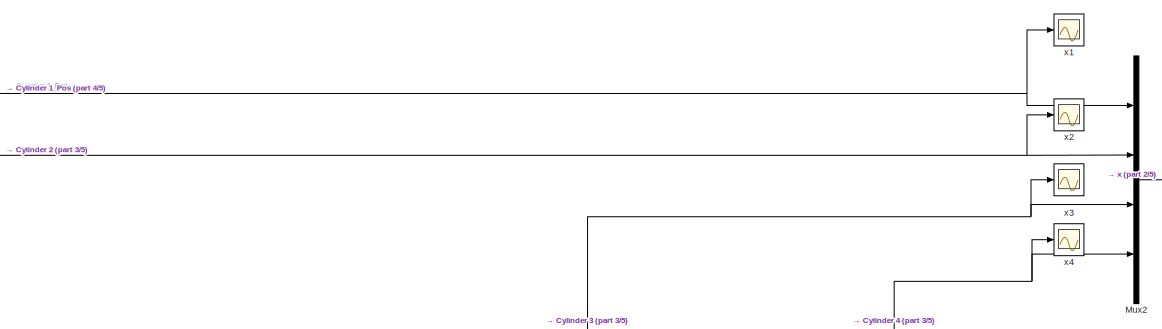
[diagram: manipulator - part 1/5, top right region]
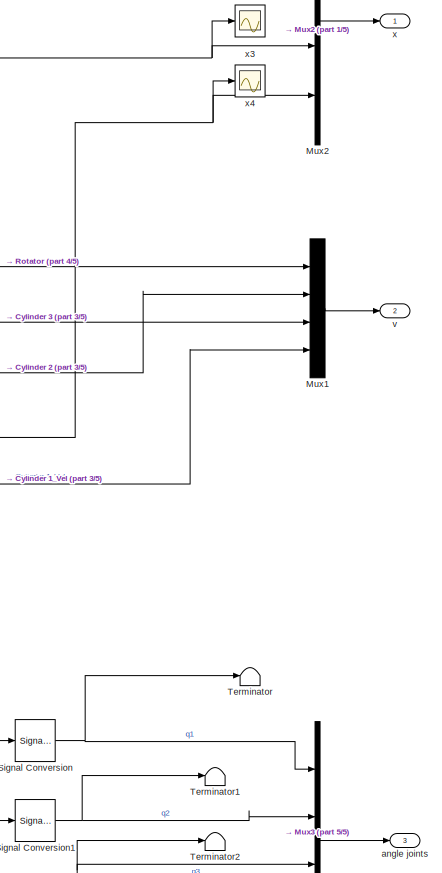
[diagram: manipulator - part 2/5, middle right region]
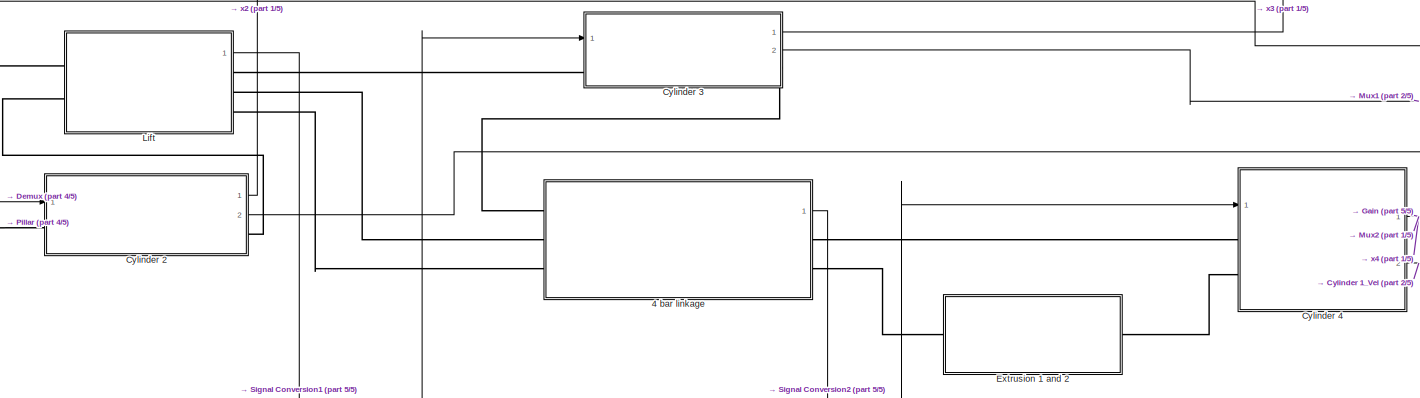
[diagram: manipulator - part 3/5, central region]
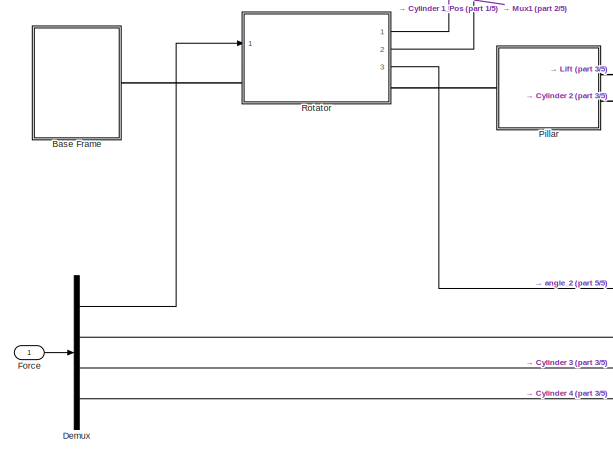
[diagram: manipulator - part 4/5, middle left region]
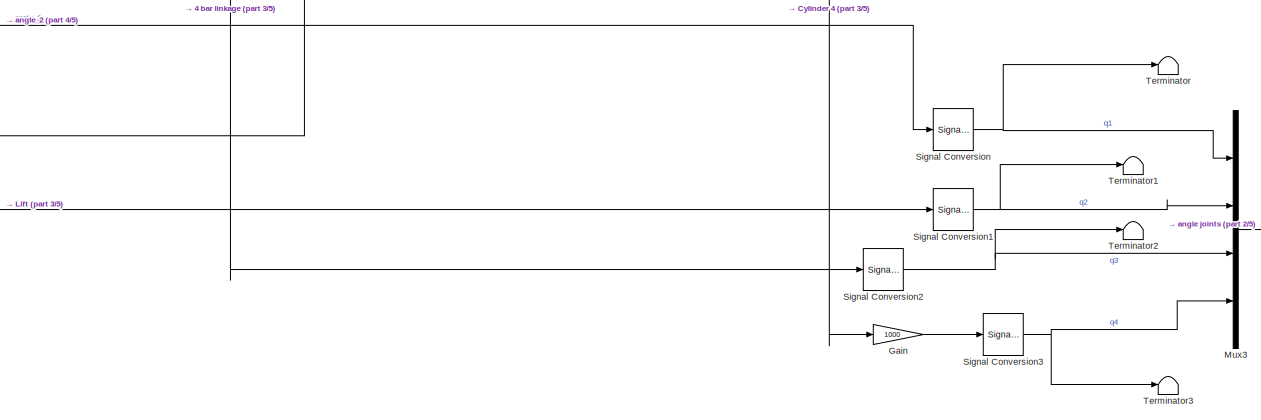
[diagram: manipulator - part 5/5, bottom right region]
BLOCK [SubSystem] manipulator
  Ports = [1, 3]
  RequestExecContextInheritance = off
  Variant = off
BLOCK [SubSystem] manipulator/4 bar linkage
  Ports = [0, 1, 0, 0, 0, 3, 2]
  RequestExecContextInheritance = off
  Variant = off
BLOCK [Reference] manipulator/4 bar linkage/FL1  REF=sm_lib/Body Elements/Solid
  Ports = [0, 0, 0, 0, 0, 0, 1]
  SourceBlock = sm_lib/Body Elements/Solid
  SourceType = Solid
BLOCK [Reference] manipulator/4 bar linkage/FL2  REF=sm_lib/Body Elements/Solid
  Ports = [0, 0, 0, 0, 0, 0, 1]
  SourceBlock = sm_lib/Body Elements/Solid
  SourceType = Solid
BLOCK [Reference] manipulator/4 bar linkage/FL2 rotation  REF=sm_lib/Joints/Revolute Joint
  Ports = [0, 0, 0, 0, 0, 1, 1]
  SourceBlock = sm_lib/Joints/Revolute Joint
  SourceType = Revolute Joint
BLOCK [Reference] manipulator/4 bar linkage/FL2 to Tilt  REF=sm_lib/Frames and
Transforms/Rigid
Transform
  Ports = [0, 0, 0, 0, 0, 1, 1]
  SourceBlock = sm_lib/Frames and\nTransforms/Rigid\nTransform
  SourceType = Rigid\nTransform
BLOCK [Reference] manipulator/4 bar linkage/Link1 Joint  REF=sm_lib/Joints/Revolute Joint
  Ports = [0, 0, 0, 0, 0, 1, 1]
  SourceBlock = sm_lib/Joints/Revolute Joint
  SourceType = Revolute Joint
BLOCK [Reference] manipulator/4 bar linkage/Link2 Joint  REF=sm_lib/Joints/Revolute Joint
  Ports = [0, 0, 0, 0, 0, 1, 1]
  SourceBlock = sm_lib/Joints/Revolute Joint
  SourceType = Revolute Joint
BLOCK [Reference] manipulator/4 bar linkage/PS-Simulink Converter1  REF=nesl_utility/PS-Simulink
Converter
  Ports = [0, 1, 0, 0, 0, 1]
  SourceBlock = nesl_utility/PS-Simulink\nConverter
  SourceType = PS-Simulink\nConverter
BLOCK [Reference] manipulator/4 bar linkage/Radians to Degrees1  REF=simulink_extras/Transformations/Radians
to Degrees
  Ports = [1, 1]
  SourceBlock = simulink_extras/Transformations/Radians\nto Degrees
  SourceType = RadiansToDegrees
BLOCK [Reference] manipulator/4 bar linkage/Revolute Joint  REF=sm_lib/Joints/Revolute Joint
  Ports = [0, 0, 0, 0, 0, 1, 1]
  SourceBlock = sm_lib/Joints/Revolute Joint
  SourceType = Revolute Joint
BLOCK [Reference] manipulator/4 bar linkage/Rigid Transform  REF=sm_lib/Frames and
Transforms/Rigid
Transform
  Ports = [0, 0, 0, 0, 0, 1, 1]
  SourceBlock = sm_lib/Frames and\nTransforms/Rigid\nTransform
  SourceType = Rigid\nTransform
BLOCK [Reference] manipulator/4 bar linkage/Tilt  REF=sm_lib/Body Elements/Solid
  Ports = [0, 0, 0, 0, 0, 0, 1]
  SourceBlock = sm_lib/Body Elements/Solid
  SourceType = Solid
BLOCK [Reference] manipulator/4 bar linkage/Tilt to FL2  REF=sm_lib/Frames and
Transforms/Rigid
Transform
  Ports = [0, 0, 0, 0, 0, 1, 1]
  SourceBlock = sm_lib/Frames and\nTransforms/Rigid\nTransform
  SourceType = Rigid\nTransform
BLOCK [PMIOPort] manipulator/4 bar linkage/To Cylinder 4
  Port = 3
  Side = Right
BLOCK [PMIOPort] manipulator/4 bar linkage/To Link 1
  Port = 2
  Side = Left
BLOCK [PMIOPort] manipulator/4 bar linkage/To Piston 3
  Port = 1
  Side = Left
BLOCK [PMIOPort] manipulator/4 bar linkage/To Tilt
  Port = 4
  Side = Left
BLOCK [PMIOPort] manipulator/4 bar linkage/To X1
  Port = 5
  Side = Right
BLOCK [Reference] manipulator/4 bar linkage/Z rotaiton Tilt  REF=sm_lib/Frames and
Transforms/Rigid
Transform
  Ports = [0, 0, 0, 0, 0, 1, 1]
  SourceBlock = sm_lib/Frames and\nTransforms/Rigid\nTransform
  SourceType = Rigid\nTransform
BLOCK [Outport] manipulator/4 bar linkage/angle_Cylinder3
  IconDisplay = Port number
BLOCK [Reference] manipulator/4 bar linkage/to Extention1  REF=sm_lib/Frames and
Transforms/Rigid
Transform
  Ports = [0, 0, 0, 0, 0, 1, 1]
  SourceBlock = sm_lib/Frames and\nTransforms/Rigid\nTransform
  SourceType = Rigid\nTransform
BLOCK [Reference] manipulator/4 bar linkage/to Link1  REF=sm_lib/Frames and
Transforms/Rigid
Transform
  Ports = [0, 0, 0, 0, 0, 1, 1]
  SourceBlock = sm_lib/Frames and\nTransforms/Rigid\nTransform
  SourceType = Rigid\nTransform
BLOCK [Reference] manipulator/4 bar linkage/to Link2  REF=sm_lib/Frames and
Transforms/Rigid
Transform
  Ports = [0, 0, 0, 0, 0, 1, 1]
  SourceBlock = sm_lib/Frames and\nTransforms/Rigid\nTransform
  SourceType = Rigid\nTransform
BLOCK [Reference] manipulator/4 bar linkage/to Tilt Rotation  REF=sm_lib/Joints/Revolute Joint
  Ports = [0, 0, 0, 0, 0, 1, 2]
  SourceBlock = sm_lib/Joints/Revolute Joint
  SourceType = Revolute Joint
BLOCK [Reference] manipulator/4 bar linkage/to cylinder4  REF=sm_lib/Frames and
Transforms/Rigid
Transform
  Ports = [0, 0, 0, 0, 0, 1, 1]
  SourceBlock = sm_lib/Frames and\nTransforms/Rigid\nTransform
  SourceType = Rigid\nTransform
BLOCK [SubSystem] manipulator/Base Frame
  Ports = [0, 0, 0, 0, 0, 0, 1]
  RequestExecContextInheritance = off
  Variant = off
BLOCK [PMIOPort] manipulator/Base Frame/Base
  Port = 1
  Side = Right
BLOCK [Reference] manipulator/Base Frame/Mechanism Configuration  REF=sm_lib/Utilities/Mechanism
Configuration
  Ports = [0, 0, 0, 0, 0, 0, 1]
  SourceBlock = sm_lib/Utilities/Mechanism\nConfiguration
  SourceType = Mechanism\nConfiguration
BLOCK [Reference] manipulator/Base Frame/Pinion   REF=sm_lib/Frames and
Transforms/Rigid
Transform
  Ports = [0, 0, 0, 0, 0, 1, 1]
  SourceBlock = sm_lib/Frames and\nTransforms/Rigid\nTransform
  SourceType = Rigid\nTransform
BLOCK [Reference] manipulator/Base Frame/Solver Configuration  REF=nesl_utility/Solver
Configuration
  Ports = [0, 0, 0, 0, 0, 0, 1]
  SourceBlock = nesl_utility/Solver\nConfiguration
  SourceType = Solver\nConfiguration
BLOCK [Reference] manipulator/Base Frame/World Frame  REF=sm_lib/Frames and
Transforms/World Frame
  Ports = [0, 0, 0, 0, 0, 0, 1]
  SourceBlock = sm_lib/Frames and\nTransforms/World Frame
  SourceType = World Frame
BLOCK [Reference] manipulator/Base Frame/to Pinion  REF=sm_lib/Frames and
Transforms/Rigid
Transform
  Ports = [0, 0, 0, 0, 0, 1, 1]
  SourceBlock = sm_lib/Frames and\nTransforms/Rigid\nTransform
  SourceType = Rigid\nTransform
BLOCK [SubSystem] manipulator/Cylinder 2
  Ports = [1, 2, 0, 0, 0, 1, 1]
  RequestExecContextInheritance = off
  Variant = off
BLOCK [Reference] manipulator/Cylinder 2/Cylinder 2  REF=sm_lib/Body Elements/Solid
  Ports = [0, 0, 0, 0, 0, 0, 1]
  SourceBlock = sm_lib/Body Elements/Solid
  SourceType = Solid
BLOCK [Reference] manipulator/Cylinder 2/Cylinder 2 Joint  REF=sm_lib/Joints/Prismatic
Joint
  Ports = [0, 0, 0, 0, 0, 2, 3]
  SourceBlock = sm_lib/Joints/Prismatic\nJoint
  SourceType = Prismatic\nJoint
BLOCK [Reference] manipulator/Cylinder 2/Cylinder 2 con  REF=sm_lib/Joints/Revolute Joint
  Ports = [0, 0, 0, 0, 0, 1, 1]
  SourceBlock = sm_lib/Joints/Revolute Joint
  SourceType = Revolute Joint
BLOCK [Inport] manipulator/Cylinder 2/Force 2
  IconDisplay = Port number
BLOCK [Reference] manipulator/Cylinder 2/PS-Simulink Converter  REF=nesl_utility/PS-Simulink
Converter
  Ports = [0, 1, 0, 0, 0, 1]
  SourceBlock = nesl_utility/PS-Simulink\nConverter
  SourceType = PS-Simulink\nConverter
BLOCK [Reference] manipulator/Cylinder 2/PS-Simulink Converter1  REF=nesl_utility/PS-Simulink
Converter
  Ports = [0, 1, 0, 0, 0, 1]
  SourceBlock = nesl_utility/PS-Simulink\nConverter
  SourceType = PS-Simulink\nConverter
BLOCK [Reference] manipulator/Cylinder 2/Piston 2  REF=sm_lib/Body Elements/Solid
  Ports = [0, 0, 0, 0, 0, 0, 1]
  SourceBlock = sm_lib/Body Elements/Solid
  SourceType = Solid
BLOCK [Reference] manipulator/Cylinder 2/Piston 2 con  REF=sm_lib/Joints/Revolute Joint
  Ports = [0, 0, 0, 0, 0, 1, 1]
  SourceBlock = sm_lib/Joints/Revolute Joint
  SourceType = Revolute Joint
BLOCK [Reference] manipulator/Cylinder 2/Simulink-PS Converter  REF=nesl_utility/Simulink-PS
Converter
  Ports = [1, 0, 0, 0, 0, 0, 1]
  SourceBlock = nesl_utility/Simulink-PS\nConverter
  SourceType = Simulink-PS\nConverter
BLOCK [PMIOPort] manipulator/Cylinder 2/ToLift
  Port = 2
  Side = Right
BLOCK [PMIOPort] manipulator/Cylinder 2/ToPillar
  Port = 1
  Side = Left
BLOCK [Reference] manipulator/Cylinder 2/to Cylinder 2 Solid  REF=sm_lib/Frames and
Transforms/Rigid
Transform
  Ports = [0, 0, 0, 0, 0, 1, 1]
  SourceBlock = sm_lib/Frames and\nTransforms/Rigid\nTransform
  SourceType = Rigid\nTransform
BLOCK [Reference] manipulator/Cylinder 2/to Piston 2 Solid  REF=sm_lib/Frames and
Transforms/Rigid
Transform
  Ports = [0, 0, 0, 0, 0, 1, 1]
  SourceBlock = sm_lib/Frames and\nTransforms/Rigid\nTransform
  SourceType = Rigid\nTransform
BLOCK [Outport] manipulator/Cylinder 2/v2
  IconDisplay = Port number
  Port = 2
BLOCK [Outport] manipulator/Cylinder 2/x2
  IconDisplay = Port number
BLOCK [SubSystem] manipulator/Cylinder 3
  Ports = [1, 2, 0, 0, 0, 1, 1]
  RequestExecContextInheritance = off
  Variant = off
BLOCK [Reference] manipulator/Cylinder 3/Cylinder 3  REF=sm_lib/Body Elements/Solid
  Ports = [0, 0, 0, 0, 0, 0, 1]
  SourceBlock = sm_lib/Body Elements/Solid
  SourceType = Solid
BLOCK [Reference] manipulator/Cylinder 3/Cylinder 3 Joint  REF=sm_lib/Joints/Revolute Joint
  Ports = [0, 0, 0, 0, 0, 1, 1]
  SourceBlock = sm_lib/Joints/Revolute Joint
  SourceType = Revolute Joint
BLOCK [Reference] manipulator/Cylinder 3/Cylinder Joint 3  REF=sm_lib/Joints/Prismatic
Joint
  Ports = [0, 0, 0, 0, 0, 2, 3]
  SourceBlock = sm_lib/Joints/Prismatic\nJoint
  SourceType = Prismatic\nJoint
BLOCK [Inport] manipulator/Cylinder 3/Force3
  IconDisplay = Port number
BLOCK [Reference] manipulator/Cylinder 3/PS-Simulink Converter  REF=nesl_utility/PS-Simulink
Converter
  Ports = [0, 1, 0, 0, 0, 1]
  SourceBlock = nesl_utility/PS-Simulink\nConverter
  SourceType = PS-Simulink\nConverter
BLOCK [Reference] manipulator/Cylinder 3/PS-Simulink Converter1  REF=nesl_utility/PS-Simulink
Converter
  Ports = [0, 1, 0, 0, 0, 1]
  SourceBlock = nesl_utility/PS-Simulink\nConverter
  SourceType = PS-Simulink\nConverter
BLOCK [Reference] manipulator/Cylinder 3/Piston 3  REF=sm_lib/Body Elements/Solid
  Ports = [0, 0, 0, 0, 0, 0, 1]
  SourceBlock = sm_lib/Body Elements/Solid
  SourceType = Solid
BLOCK [Reference] manipulator/Cylinder 3/Simulink-PS Converter  REF=nesl_utility/Simulink-PS
Converter
  Ports = [1, 0, 0, 0, 0, 0, 1]
  SourceBlock = nesl_utility/Simulink-PS\nConverter
  SourceType = Simulink-PS\nConverter
BLOCK [PMIOPort] manipulator/Cylinder 3/To Piston 3
  Port = 2
  Side = Right
BLOCK [PMIOPort] manipulator/Cylinder 3/to Cylinder 3
  Port = 1
  Side = Left
BLOCK [Reference] manipulator/Cylinder 3/to Cylinder 3 Solid  REF=sm_lib/Frames and
Transforms/Rigid
Transform
  Ports = [0, 0, 0, 0, 0, 1, 1]
  SourceBlock = sm_lib/Frames and\nTransforms/Rigid\nTransform
  SourceType = Rigid\nTransform
BLOCK [Outport] manipulator/Cylinder 3/v3
  IconDisplay = Port number
  Port = 2
BLOCK [Outport] manipulator/Cylinder 3/x3
  IconDisplay = Port number
BLOCK [SubSystem] manipulator/Cylinder 4
  Ports = [1, 2, 0, 0, 0, 2]
  RequestExecContextInheritance = off
  Variant = off
BLOCK [Reference] manipulator/Cylinder 4/Cylinder 4 joint  REF=sm_lib/Joints/Revolute Joint
  Ports = [0, 0, 0, 0, 0, 1, 1]
  SourceBlock = sm_lib/Joints/Revolute Joint
  SourceType = Revolute Joint
BLOCK [Reference] manipulator/Cylinder 4/Cylinder Joint 4  REF=sm_lib/Joints/Prismatic
Joint
  Ports = [0, 0, 0, 0, 0, 2, 3]
  SourceBlock = sm_lib/Joints/Prismatic\nJoint
  SourceType = Prismatic\nJoint
BLOCK [Reference] manipulator/Cylinder 4/Cylinder4  REF=sm_lib/Body Elements/Solid
  Ports = [0, 0, 0, 0, 0, 0, 1]
  SourceBlock = sm_lib/Body Elements/Solid
  SourceType = Solid
BLOCK [Inport] manipulator/Cylinder 4/Force4
  IconDisplay = Port number
BLOCK [Reference] manipulator/Cylinder 4/PS-Simulink Converter  REF=nesl_utility/PS-Simulink
Converter
  Ports = [0, 1, 0, 0, 0, 1]
  SourceBlock = nesl_utility/PS-Simulink\nConverter
  SourceType = PS-Simulink\nConverter
BLOCK [Reference] manipulator/Cylinder 4/PS-Simulink Converter1  REF=nesl_utility/PS-Simulink
Converter
  Ports = [0, 1, 0, 0, 0, 1]
  SourceBlock = nesl_utility/PS-Simulink\nConverter
  SourceType = PS-Simulink\nConverter
BLOCK [Reference] manipulator/Cylinder 4/Piston4  REF=sm_lib/Body Elements/Solid
  Ports = [0, 0, 0, 0, 0, 0, 1]
  SourceBlock = sm_lib/Body Elements/Solid
  SourceType = Solid
BLOCK [Reference] manipulator/Cylinder 4/Piston4 joint  REF=sm_lib/Joints/Revolute Joint
  Ports = [0, 0, 0, 0, 0, 1, 1]
  SourceBlock = sm_lib/Joints/Revolute Joint
  SourceType = Revolute Joint
BLOCK [Reference] manipulator/Cylinder 4/Rigid Transform  REF=sm_lib/Frames and
Transforms/Rigid
Transform
  Ports = [0, 0, 0, 0, 0, 1, 1]
  SourceBlock = sm_lib/Frames and\nTransforms/Rigid\nTransform
  SourceType = Rigid\nTransform
BLOCK [Reference] manipulator/Cylinder 4/Rigid Transform1  REF=sm_lib/Frames and
Transforms/Rigid
Transform
  Ports = [0, 0, 0, 0, 0, 1, 1]
  SourceBlock = sm_lib/Frames and\nTransforms/Rigid\nTransform
  SourceType = Rigid\nTransform
BLOCK [Reference] manipulator/Cylinder 4/Simulink-PS Converter  REF=nesl_utility/Simulink-PS
Converter
  Ports = [1, 0, 0, 0, 0, 0, 1]
  SourceBlock = nesl_utility/Simulink-PS\nConverter
  SourceType = Simulink-PS\nConverter
BLOCK [PMIOPort] manipulator/Cylinder 4/To Cylinder 4
  Port = 1
  Side = Left
BLOCK [PMIOPort] manipulator/Cylinder 4/To Piston 4
  Port = 2
  Side = Left
BLOCK [Outport] manipulator/Cylinder 4/v4
  IconDisplay = Port number
  Port = 2
BLOCK [Outport] manipulator/Cylinder 4/x4
  IconDisplay = Port number
BLOCK [Demux] manipulator/Demux
  DisplayOption = bar
  Ports = [1, 4]
BLOCK [SubSystem] manipulator/Extrusion 1 and 2
  Ports = [0, 0, 0, 0, 0, 1, 1]
  RequestExecContextInheritance = off
  Variant = off
BLOCK [SignalConversion] manipulator/Extrusion 1 and 2/Signal Conversion3
  OverrideOpt = off
BLOCK [Terminator] manipulator/Extrusion 1 and 2/Terminator3
BLOCK [PMIOPort] manipulator/Extrusion 1 and 2/To Piston 4
  Port = 1
  Side = Right
BLOCK [PMIOPort] manipulator/Extrusion 1 and 2/To X1
  Port = 2
  Side = Left
BLOCK [SubSystem] manipulator/Extrusion 1 and 2/X1
  Ports = [0, 0, 0, 0, 0, 3, 1]
  RequestExecContextInheritance = off
  Variant = off
BLOCK [DiscreteIntegrator] manipulator/Extrusion 1 and 2/X1/Discrete-Time Integrator
  ICPrevOutput = DiscIntNeverNeededParam
  ICPrevScaledInput = DiscIntNeverNeededParam
  InitialConditionSetting = State (most efficient)
  Ports = [1, 1]
  SampleTime = SampleTime
BLOCK [PMIOPort] manipulator/Extrusion 1 and 2/X1/From X1
  Port = 4
  Side = Right
BLOCK [Reference] manipulator/Extrusion 1 and 2/X1/PS-Simulink Converter2  REF=nesl_utility/PS-Simulink
Converter
  Ports = [0, 1, 0, 0, 0, 1]
  SourceBlock = nesl_utility/PS-Simulink\nConverter
  SourceType = PS-Simulink\nConverter
BLOCK [Reference] manipulator/Extrusion 1 and 2/X1/Prismatic Joint  REF=sm_lib/Joints/Prismatic
Joint
  Ports = [0, 0, 0, 0, 0, 1, 2]
  SourceBlock = sm_lib/Joints/Prismatic\nJoint
  SourceType = Prismatic\nJoint
BLOCK [Reference] manipulator/Extrusion 1 and 2/X1/Rigid Transform  REF=sm_lib/Frames and
Transforms/Rigid
Transform
  Ports = [0, 0, 0, 0, 0, 1, 1]
  SourceBlock = sm_lib/Frames and\nTransforms/Rigid\nTransform
  SourceType = Rigid\nTransform
BLOCK [SignalConversion] manipulator/Extrusion 1 and 2/X1/Signal Conversion1
  OverrideOpt = off
BLOCK [Reference] manipulator/Extrusion 1 and 2/X1/Simulink-PS Converter  REF=nesl_utility/Simulink-PS
Converter
  Ports = [1, 0, 0, 0, 0, 0, 1]
  SourceBlock = nesl_utility/Simulink-PS\nConverter
  SourceType = Simulink-PS\nConverter
BLOCK [Terminator] manipulator/Extrusion 1 and 2/X1/Terminator1
BLOCK [PMIOPort] manipulator/Extrusion 1 and 2/X1/To Piston 4
  Port = 1
  Side = Left
BLOCK [PMIOPort] manipulator/Extrusion 1 and 2/X1/To X1
  Port = 2
  Side = Left
BLOCK [Reference] manipulator/Extrusion 1 and 2/X1/X1  REF=sm_lib/Body Elements/Solid
  Ports = [0, 0, 0, 0, 0, 0, 1]
  SourceBlock = sm_lib/Body Elements/Solid
  SourceType = Solid
BLOCK [Scope] manipulator/Extrusion 1 and 2/X1/X_v1
  NumInputPorts = 1
  Ports = [1]
  ScopeSpecificationString = C++SS(StrPVP('Location','[188, 365, 512, 604]'),StrPVP('Open','off'),MxPVP('AxesTitles',24,'struct(''axes1'',''%<SignalLabel>'')'),MxPVP('ScopeGraphics',28,'struct(''FigureColor'',''[0.156862745098039 0.156862745098039 0.156862745098039]'',''AxesColor'',''[0 0 0]'',''AxesTickColor'',''[0.686274509803922 0.686274509803922 0.686274509803922]'',''LineColors'',''[1 1 0;1 0 1;0 1 1;1 0 0;0 1 0;0 0 1]''...<+327ch>
BLOCK [Reference] manipulator/Extrusion 1 and 2/X1/to Piston4  REF=sm_lib/Frames and
Transforms/Rigid
Transform
  Ports = [0, 0, 0, 0, 0, 1, 1]
  SourceBlock = sm_lib/Frames and\nTransforms/Rigid\nTransform
  SourceType = Rigid\nTransform
BLOCK [PMIOPort] manipulator/Extrusion 1 and 2/X1/to X2v
  Port = 3
  Side = Left
BLOCK [SubSystem] manipulator/Extrusion 1 and 2/X2
  Ports = [0, 1, 0, 0, 0, 1, 1]
  RequestExecContextInheritance = off
  Variant = off
BLOCK [Reference] manipulator/Extrusion 1 and 2/X2/Cylinder Joint2  REF=sm_lib/Joints/Prismatic
Joint
  Ports = [0, 0, 0, 0, 0, 2, 2]
  SourceBlock = sm_lib/Joints/Prismatic\nJoint
  SourceType = Prismatic\nJoint
BLOCK [Reference] manipulator/Extrusion 1 and 2/X2/PS-Simulink Converter1  REF=nesl_utility/PS-Simulink
Converter
  Ports = [0, 1, 0, 0, 0, 1]
  SourceBlock = nesl_utility/PS-Simulink\nConverter
  SourceType = PS-Simulink\nConverter
BLOCK [Reference] manipulator/Extrusion 1 and 2/X2/Rigid Transform1  REF=sm_lib/Frames and
Transforms/Rigid
Transform
  Ports = [0, 0, 0, 0, 0, 1, 1]
  SourceBlock = sm_lib/Frames and\nTransforms/Rigid\nTransform
  SourceType = Rigid\nTransform
BLOCK [Reference] manipulator/Extrusion 1 and 2/X2/X2  REF=sm_lib/Body Elements/Solid
  Ports = [0, 0, 0, 0, 0, 0, 1]
  SourceBlock = sm_lib/Body Elements/Solid
  SourceType = Solid
BLOCK [Outport] manipulator/Extrusion 1 and 2/X2/X2v
  IconDisplay = Port number
BLOCK [PMIOPort] manipulator/Extrusion 1 and 2/X2/from X1
  Port = 2
  Side = Left
BLOCK [Reference] manipulator/Extrusion 1 and 2/X2/to X2 - Primastic  REF=sm_lib/Frames and
Transforms/Rigid
Transform
  Ports = [0, 0, 0, 0, 0, 1, 1]
  SourceBlock = sm_lib/Frames and\nTransforms/Rigid\nTransform
  SourceType = Rigid\nTransform
BLOCK [PMIOPort] manipulator/Extrusion 1 and 2/X2/to X2v1
  Port = 1
  Side = Right
BLOCK [Scope] manipulator/Extrusion 1 and 2/X_v2
  NumInputPorts = 1
  Ports = [1]
  ScopeSpecificationString = C++SS(StrPVP('Location','[188, 365, 512, 604]'),StrPVP('Open','off'),MxPVP('AxesTitles',24,'struct(''axes1'',''%<SignalLabel>'')'),MxPVP('ScopeGraphics',28,'struct(''FigureColor'',''[0.156862745098039 0.156862745098039 0.156862745098039]'',''AxesColor'',''[0 0 0]'',''AxesTickColor'',''[0.686274509803922 0.686274509803922 0.686274509803922]'',''LineColors'',''[1 1 0;1 0 1;0 1 1;1 0 0;0 1 0;0 0 1]''...<+295ch>
BLOCK [Inport] manipulator/Force
  IconDisplay = Port number
BLOCK [Gain] manipulator/Gain
  Gain = 1000
  OutDataTypeStr = Inherit: Inherit via internal rule
  ParamDataTypeStr = Inherit: Inherit via internal rule
  SaturateOnIntegerOverflow = off
BLOCK [SubSystem] manipulator/Lift
  Ports = [0, 1, 0, 0, 0, 2, 3]
  RequestExecContextInheritance = off
  Variant = off
BLOCK [Reference] manipulator/Lift/Lift  REF=sm_lib/Body Elements/Solid
  Ports = [0, 0, 0, 0, 0, 0, 1]
  SourceBlock = sm_lib/Body Elements/Solid
  SourceType = Solid
BLOCK [Reference] manipulator/Lift/Lift Joint  REF=sm_lib/Joints/Revolute Joint
  Ports = [0, 0, 0, 0, 0, 1, 2]
  SourceBlock = sm_lib/Joints/Revolute Joint
  SourceType = Revolute Joint
BLOCK [Reference] manipulator/Lift/PS-Simulink Converter2  REF=nesl_utility/PS-Simulink
Converter
  Ports = [0, 1, 0, 0, 0, 1]
  SourceBlock = nesl_utility/PS-Simulink\nConverter
  SourceType = PS-Simulink\nConverter
BLOCK [Reference] manipulator/Lift/Radians to Degrees  REF=simulink_extras/Transformations/Radians
to Degrees
  Ports = [1, 1]
  SourceBlock = simulink_extras/Transformations/Radians\nto Degrees
  SourceType = RadiansToDegrees
BLOCK [PMIOPort] manipulator/Lift/To Cylinder 2
  Port = 5
  Side = Left
BLOCK [PMIOPort] manipulator/Lift/To Cylinder 3 
  Port = 1
  Side = Right
BLOCK [PMIOPort] manipulator/Lift/To Link 1
  Port = 2
  Side = Right
BLOCK [PMIOPort] manipulator/Lift/To Pillar
  Port = 4
  Side = Left
BLOCK [PMIOPort] manipulator/Lift/To Tilt
  Port = 3
  Side = Right
BLOCK [Outport] manipulator/Lift/angle_Lift
  IconDisplay = Port number
BLOCK [Reference] manipulator/Lift/to Cylinder 2  REF=sm_lib/Frames and
Transforms/Rigid
Transform
  Ports = [0, 0, 0, 0, 0, 1, 1]
  SourceBlock = sm_lib/Frames and\nTransforms/Rigid\nTransform
  SourceType = Rigid\nTransform
BLOCK [Reference] manipulator/Lift/to Cylinder 3  REF=sm_lib/Frames and
Transforms/Rigid
Transform
  Ports = [0, 0, 0, 0, 0, 1, 1]
  SourceBlock = sm_lib/Frames and\nTransforms/Rigid\nTransform
  SourceType = Rigid\nTransform
BLOCK [Mux] manipulator/Mux1
  DisplayOption = bar
  Ports = [4, 1]
BLOCK [Mux] manipulator/Mux2
  DisplayOption = bar
  Ports = [4, 1]
BLOCK [Mux] manipulator/Mux3
  DisplayOption = bar
  Ports = [4, 1]
BLOCK [SubSystem] manipulator/Pillar
  Ports = [0, 0, 0, 0, 0, 1, 2]
  RequestExecContextInheritance = off
  Variant = off
BLOCK [Reference] manipulator/Pillar/Pillar  REF=sm_lib/Body Elements/Solid
  Ports = [0, 0, 0, 0, 0, 0, 1]
  SourceBlock = sm_lib/Body Elements/Solid
  SourceType = Solid
BLOCK [PMIOPort] manipulator/Pillar/Rotator
  Port = 1
  Side = Left
BLOCK [PMIOPort] manipulator/Pillar/To Lift
  Port = 2
  Side = Right
BLOCK [PMIOPort] manipulator/Pillar/To Piston 2
  Port = 3
  Side = Right
BLOCK [Reference] manipulator/Pillar/to Lift  REF=sm_lib/Frames and
Transforms/Rigid
Transform
  Ports = [0, 0, 0, 0, 0, 1, 1]
  SourceBlock = sm_lib/Frames and\nTransforms/Rigid\nTransform
  SourceType = Rigid\nTransform
BLOCK [Reference] manipulator/Pillar/to Pillar Z axis  REF=sm_lib/Frames and
Transforms/Rigid
Transform
  Ports = [0, 0, 0, 0, 0, 1, 1]
  SourceBlock = sm_lib/Frames and\nTransforms/Rigid\nTransform
  SourceType = Rigid\nTransform
BLOCK [Reference] manipulator/Pillar/to Piston 2  REF=sm_lib/Frames and
Transforms/Rigid
Transform
  Ports = [0, 0, 0, 0, 0, 1, 1]
  SourceBlock = sm_lib/Frames and\nTransforms/Rigid\nTransform
  SourceType = Rigid\nTransform
BLOCK [Reference] manipulator/Pillar/to pillar  REF=sm_lib/Frames and
Transforms/Rigid
Transform
  Ports = [0, 0, 0, 0, 0, 1, 1]
  SourceBlock = sm_lib/Frames and\nTransforms/Rigid\nTransform
  SourceType = Rigid\nTransform
BLOCK [SubSystem] manipulator/Rotator
  Ports = [1, 3, 0, 0, 0, 1, 1]
  RequestExecContextInheritance = off
  Variant = off
BLOCK [Sum] manipulator/Rotator/Add
  InputSameDT = off
  OutDataTypeStr = Inherit: Inherit via internal rule
  Ports = [2, 1]
  SaturateOnIntegerOverflow = off
BLOCK [Constant] manipulator/Rotator/Constant
  Value = (0.680)/2
BLOCK [Inport] manipulator/Rotator/Force1
  IconDisplay = Port number
BLOCK [Reference] manipulator/Rotator/PS-Simulink Converter  REF=nesl_utility/PS-Simulink
Converter
  Ports = [0, 1, 0, 0, 0, 1]
  SourceBlock = nesl_utility/PS-Simulink\nConverter
  SourceType = PS-Simulink\nConverter
BLOCK [Reference] manipulator/Rotator/PS-Simulink Converter1  REF=nesl_utility/PS-Simulink
Converter
  Ports = [0, 1, 0, 0, 0, 1]
  SourceBlock = nesl_utility/PS-Simulink\nConverter
  SourceType = PS-Simulink\nConverter
BLOCK [Reference] manipulator/Rotator/PS-Simulink Converter2  REF=nesl_utility/PS-Simulink
Converter
  Ports = [0, 1, 0, 0, 0, 1]
  SourceBlock = nesl_utility/PS-Simulink\nConverter
  SourceType = PS-Simulink\nConverter
BLOCK [Reference] manipulator/Rotator/Pinion Joint  REF=sm_lib/Joints/Revolute Joint
  Ports = [0, 0, 0, 0, 0, 1, 2]
  SourceBlock = sm_lib/Joints/Revolute Joint
  SourceType = Revolute Joint
BLOCK [Reference] manipulator/Rotator/Rack  REF=sm_lib/Body Elements/Solid
  Ports = [0, 0, 0, 0, 0, 0, 1]
  SourceBlock = sm_lib/Body Elements/Solid
  SourceType = Solid
BLOCK [Reference] manipulator/Rotator/Rack Joint  REF=sm_lib/Joints/Prismatic
Joint
  Ports = [0, 0, 0, 0, 0, 2, 3]
  SourceBlock = sm_lib/Joints/Prismatic\nJoint
  SourceType = Prismatic\nJoint
BLOCK [Reference] manipulator/Rotator/Rack and Pinion Constraint  REF=sm_lib/Gears and
Couplings/Gears/Rack and Pinion
Constraint
  Ports = [0, 0, 0, 0, 0, 1, 1]
  SourceBlock = sm_lib/Gears and\nCouplings/Gears/Rack and Pinion\nConstraint
  SourceType = Rack and Pinion\nConstraint
BLOCK [Reference] manipulator/Rotator/Rack and Pinion Constraint2  REF=sm_lib/Gears and
Couplings/Gears/Rack and Pinion
Constraint
  Ports = [0, 0, 0, 0, 0, 1, 1]
  SourceBlock = sm_lib/Gears and\nCouplings/Gears/Rack and Pinion\nConstraint
  SourceType = Rack and Pinion\nConstraint
BLOCK [Reference] manipulator/Rotator/Rack2  REF=sm_lib/Body Elements/Solid
  Ports = [0, 0, 0, 0, 0, 0, 1]
  SourceBlock = sm_lib/Body Elements/Solid
  SourceType = Solid
BLOCK [Reference] manipulator/Rotator/Rack2 Joint  REF=sm_lib/Joints/Prismatic
Joint
  Ports = [0, 0, 0, 0, 0, 2, 1]
  SourceBlock = sm_lib/Joints/Prismatic\nJoint
  SourceType = Prismatic\nJoint
BLOCK [Reference] manipulator/Rotator/Radians to Degrees  REF=simulink_extras/Transformations/Radians
to Degrees
  Ports = [1, 1]
  SourceBlock = simulink_extras/Transformations/Radians\nto Degrees
  SourceType = RadiansToDegrees
BLOCK [Reference] manipulator/Rotator/Rigid Transform  REF=sm_lib/Frames and
Transforms/Rigid
Transform
  Ports = [0, 0, 0, 0, 0, 1, 1]
  SourceBlock = sm_lib/Frames and\nTransforms/Rigid\nTransform
  SourceType = Rigid\nTransform
BLOCK [Reference] manipulator/Rotator/Simulink-PS Converter1  REF=nesl_utility/Simulink-PS
Converter
  Ports = [1, 0, 0, 0, 0, 0, 1]
  SourceBlock = nesl_utility/Simulink-PS\nConverter
  SourceType = Simulink-PS\nConverter
BLOCK [Reference] manipulator/Rotator/Simulink-PS Converter3  REF=nesl_utility/Simulink-PS
Converter
  Ports = [1, 0, 0, 0, 0, 0, 1]
  SourceBlock = nesl_utility/Simulink-PS\nConverter
  SourceType = Simulink-PS\nConverter
BLOCK [PMIOPort] manipulator/Rotator/To Pillar
  Port = 1
  Side = Right
BLOCK [PMIOPort] manipulator/Rotator/To Pinion
  Port = 2
  Side = Left
BLOCK [Outport] manipulator/Rotator/angle_Cylinder1
  IconDisplay = Port number
  Port = 3
BLOCK [Reference] manipulator/Rotator/pinion  REF=sm_lib/Body Elements/Solid
  Ports = [0, 0, 0, 0, 0, 0, 1]
  SourceBlock = sm_lib/Body Elements/Solid
  SourceType = Solid
BLOCK [Reference] manipulator/Rotator/to Rack  REF=sm_lib/Frames and
Transforms/Rigid
Transform
  Ports = [0, 0, 0, 0, 0, 1, 1]
  SourceBlock = sm_lib/Frames and\nTransforms/Rigid\nTransform
  SourceType = Rigid\nTransform
BLOCK [Reference] manipulator/Rotator/to Rack2  REF=sm_lib/Frames and
Transforms/Rigid
Transform
  Ports = [0, 0, 0, 0, 0, 1, 1]
  SourceBlock = sm_lib/Frames and\nTransforms/Rigid\nTransform
  SourceType = Rigid\nTransform
BLOCK [Outport] manipulator/Rotator/v1
  IconDisplay = Port number
  Port = 2
BLOCK [Outport] manipulator/Rotator/x1
  IconDisplay = Port number
BLOCK [SignalConversion] manipulator/Signal Conversion
  OverrideOpt = off
BLOCK [SignalConversion] manipulator/Signal Conversion1
  OverrideOpt = off
BLOCK [SignalConversion] manipulator/Signal Conversion2
  OverrideOpt = off
BLOCK [SignalConversion] manipulator/Signal Conversion3
  OverrideOpt = off
BLOCK [Terminator] manipulator/Terminator
BLOCK [Terminator] manipulator/Terminator1
BLOCK [Terminator] manipulator/Terminator2
BLOCK [Terminator] manipulator/Terminator3
BLOCK [Outport] manipulator/angle joints
  IconDisplay = Port number
  Port = 3
BLOCK [Outport] manipulator/v
  IconDisplay = Port number
  Port = 2
BLOCK [Outport] manipulator/x
  IconDisplay = Port number
BLOCK [Scope] manipulator/x1
  NumInputPorts = 1
  Ports = [1]
  ScopeSpecificationString = Simulink.scopes.TimeScopeBlockCfg('CurrentConfiguration', extmgr.ConfigurationSet(extmgr.Configuration('Core','General UI',true),extmgr.Configuration('Core','Source UI',true),extmgr.Configuration('Sources','WiredSimulink',true,'DataLoggingVariableName','ScopeData3','DataLoggingSaveFormat','Array','DataLoggingDecimation','1','DataLoggingDecimateData',true),extmgr.Configuration('Visuals','Time Domai...<+1765ch>
BLOCK [Scope] manipulator/x2
  NumInputPorts = 1
  Ports = [1]
  ScopeSpecificationString = Simulink.scopes.TimeScopeBlockCfg('CurrentConfiguration', extmgr.ConfigurationSet(extmgr.Configuration('Core','General UI',true),extmgr.Configuration('Core','Source UI',true),extmgr.Configuration('Sources','WiredSimulink',true,'DataLoggingVariableName','ScopeData4','DataLoggingSaveFormat','Array','DataLoggingDecimation','1','DataLoggingDecimateData',true),extmgr.Configuration('Visuals','Time Domai...<+1747ch>
BLOCK [Scope] manipulator/x3
  NumInputPorts = 1
  Ports = [1]
  ScopeSpecificationString = Simulink.scopes.TimeScopeBlockCfg('CurrentConfiguration', extmgr.ConfigurationSet(extmgr.Configuration('Core','General UI',true),extmgr.Configuration('Core','Source UI',true),extmgr.Configuration('Sources','WiredSimulink',true,'DataLoggingVariableName','ScopeData5','DataLoggingSaveFormat','Array','DataLoggingDecimation','1','DataLoggingDecimateData',true),extmgr.Configuration('Visuals','Time Domai...<+1777ch>
BLOCK [Scope] manipulator/x4
  NumInputPorts = 1
  Ports = [1]
  ScopeSpecificationString = Simulink.scopes.TimeScopeBlockCfg('CurrentConfiguration', extmgr.ConfigurationSet(extmgr.Configuration('Core','General UI',true),extmgr.Configuration('Core','Source UI',true),extmgr.Configuration('Sources','WiredSimulink',true,'DataLoggingVariableName','ScopeData6','DataLoggingSaveFormat','Array','DataLoggingDecimation','1','DataLoggingDecimateData',true),extmgr.Configuration('Visuals','Time Domai...<+1749ch>
ANNOTATION UDP Send To IHA3D: Frequency rate: How often UDP message is sent 1: every sample time 2: every second sample time 3: every third sample time 4: etc....
LINE Off signal:1 -> Switch:2
LINE UDP Receive Joystick signals/Mux:1 -> UDP Receive Joystick signals/u:1
LINE UDP Receive Joystick signals/Receive signals from Joytick:1 -> UDP Receive Joystick signals/Unpack:1
LINE UDP Receive Joystick signals/Receive signals from Joytick:2 -> UDP Receive Joystick signals/Terminator:1
LINE UDP Receive Joystick signals/Unpack:1 -> UDP Receive Joystick signals/Mux:1
LINE UDP Receive Joystick signals/Unpack:2 -> UDP Receive Joystick signals/Mux:2
LINE UDP Receive Joystick signals/Unpack:3 -> UDP Receive Joystick signals/Mux:3
LINE UDP Receive Joystick signals/Unpack:4 -> UDP Receive Joystick signals/Mux:4
LINE UDP Receive Joystick signals:1 -> Gain:1
LINE UDP Send To IHA3D/Enabled Subsystem/Add:1 -> UDP Send To IHA3D/Enabled Subsystem/Pack1:7
LINE UDP Send To IHA3D/Enabled Subsystem/Demux:1 -> UDP Send To IHA3D/Enabled Subsystem/Pack1:2
NET UDP Send To IHA3D/Enabled Subsystem/Demux:2 -> UDP Send To IHA3D/Enabled Subsystem/Add:1, UDP Send To IHA3D/Enabled Subsystem/Pack1:3
NET UDP Send To IHA3D/Enabled Subsystem/Demux:3 -> UDP Send To IHA3D/Enabled Subsystem/Add:2, UDP Send To IHA3D/Enabled Subsystem/Pack1:4
NET UDP Send To IHA3D/Enabled Subsystem/Demux:4 -> UDP Send To IHA3D/Enabled Subsystem/Pack1:5, UDP Send To IHA3D/Enabled Subsystem/Pack1:6
LINE UDP Send To IHA3D/Enabled Subsystem/Pack1:1 -> UDP Send To IHA3D/Enabled Subsystem/Send1:1
LINE UDP Send To IHA3D/Enabled Subsystem/UDP header:1 -> UDP Send To IHA3D/Enabled Subsystem/Pack1:1
LINE UDP Send To IHA3D/Enabled Subsystem/q:1 -> UDP Send To IHA3D/Enabled Subsystem/Demux:1
LINE UDP Send To IHA3D/Frequency rate:1 -> UDP Send To IHA3D/Subsystem:1
LINE UDP Send To IHA3D/Subsystem/Digital Clock:1 -> UDP Send To IHA3D/Subsystem/Gain:1
LINE UDP Send To IHA3D/Subsystem/Fcn1:1 -> UDP Send To IHA3D/Subsystem/enable:1
LINE UDP Send To IHA3D/Subsystem/Gain1:1 -> UDP Send To IHA3D/Subsystem/Weighted Sample Time:1
LINE UDP Send To IHA3D/Subsystem/Gain:1 -> UDP Send To IHA3D/Subsystem/Math Function:1
LINE UDP Send To IHA3D/Subsystem/Math Function:1 -> UDP Send To IHA3D/Subsystem/Fcn1:1
LINE UDP Send To IHA3D/Subsystem/Weighted Sample Time:1 -> UDP Send To IHA3D/Subsystem/Math Function:2
LINE UDP Send To IHA3D/Subsystem/freq:1 -> UDP Send To IHA3D/Subsystem/Gain1:1
LINE UDP Send To IHA3D/Subsystem:1 -> UDP Send To IHA3D/Enabled Subsystem:enable
LINE UDP Send To IHA3D/q:1 -> UDP Send To IHA3D/Enabled Subsystem:1
LINE hydraulics/Cylinder1/Add1:1 -> hydraulics/Cylinder1/Cylinder1_Force:1
LINE hydraulics/Cylinder1/Constant:1 -> hydraulics/Cylinder1/Gain1:1
LINE hydraulics/Cylinder1/Cylinder1/Bulk Modulus1:1 -> hydraulics/Cylinder1/Cylinder1/Chamber B:4
LINE hydraulics/Cylinder1/Cylinder1/Bulk Modulus:1 -> hydraulics/Cylinder1/Cylinder1/Chamber A:4
LINE hydraulics/Cylinder1/Cylinder1/Chamber A/ B:1 -> hydraulics/Cylinder1/Cylinder1/Chamber A/Product:3
LINE hydraulics/Cylinder1/Cylinder1/Chamber A/ V:1 -> hydraulics/Cylinder1/Cylinder1/Chamber A/Product:2
LINE hydraulics/Cylinder1/Cylinder1/Chamber A/ dV//dt:1 -> hydraulics/Cylinder1/Cylinder1/Chamber A/Sum:2
LINE hydraulics/Cylinder1/Cylinder1/Chamber A/Integrator:1 -> hydraulics/Cylinder1/Cylinder1/Chamber A/Saturation:1
LINE hydraulics/Cylinder1/Cylinder1/Chamber A/Product:1 -> hydraulics/Cylinder1/Cylinder1/Chamber A/Integrator:1
LINE hydraulics/Cylinder1/Cylinder1/Chamber A/Q_in:1 -> hydraulics/Cylinder1/Cylinder1/Chamber A/Sum:1
LINE hydraulics/Cylinder1/Cylinder1/Chamber A/Saturation:1 -> hydraulics/Cylinder1/Cylinder1/Chamber A/p:1
LINE hydraulics/Cylinder1/Cylinder1/Chamber A/Sum:1 -> hydraulics/Cylinder1/Cylinder1/Chamber A/Product:1
NET hydraulics/Cylinder1/Cylinder1/Chamber A:1 -> hydraulics/Cylinder1/Cylinder1/Gain2:1, hydraulics/Cylinder1/Cylinder1/Mux:1
LINE hydraulics/Cylinder1/Cylinder1/Chamber B/ B:1 -> hydraulics/Cylinder1/Cylinder1/Chamber B/Product:3
LINE hydraulics/Cylinder1/Cylinder1/Chamber B/ V:1 -> hydraulics/Cylinder1/Cylinder1/Chamber B/Product:2
LINE hydraulics/Cylinder1/Cylinder1/Chamber B/ dV//dt:1 -> hydraulics/Cylinder1/Cylinder1/Chamber B/Sum:2
LINE hydraulics/Cylinder1/Cylinder1/Chamber B/Integrator:1 -> hydraulics/Cylinder1/Cylinder1/Chamber B/Saturation:1
LINE hydraulics/Cylinder1/Cylinder1/Chamber B/Product:1 -> hydraulics/Cylinder1/Cylinder1/Chamber B/Integrator:1
LINE hydraulics/Cylinder1/Cylinder1/Chamber B/Q_in:1 -> hydraulics/Cylinder1/Cylinder1/Chamber B/Sum:1
LINE hydraulics/Cylinder1/Cylinder1/Chamber B/Saturation:1 -> hydraulics/Cylinder1/Cylinder1/Chamber B/p:1
LINE hydraulics/Cylinder1/Cylinder1/Chamber B/Sum:1 -> hydraulics/Cylinder1/Cylinder1/Chamber B/Product:1
NET hydraulics/Cylinder1/Cylinder1/Chamber B:1 -> hydraulics/Cylinder1/Cylinder1/Gain5:1, hydraulics/Cylinder1/Cylinder1/Mux:2
LINE hydraulics/Cylinder1/Cylinder1/Constant1:1 -> hydraulics/Cylinder1/Cylinder1/Sum3:2
LINE hydraulics/Cylinder1/Cylinder1/Constant2:1 -> hydraulics/Cylinder1/Cylinder1/Sum2:2
LINE hydraulics/Cylinder1/Cylinder1/Constant:1 -> hydraulics/Cylinder1/Cylinder1/Sum1:2
LINE hydraulics/Cylinder1/Cylinder1/Demux:1 -> hydraulics/Cylinder1/Cylinder1/Chamber A:1
LINE hydraulics/Cylinder1/Cylinder1/Demux:2 -> hydraulics/Cylinder1/Cylinder1/Chamber B:1
LINE hydraulics/Cylinder1/Cylinder1/Gain1:1 -> hydraulics/Cylinder1/Cylinder1/Sum1:1
LINE hydraulics/Cylinder1/Cylinder1/Gain2:1 -> hydraulics/Cylinder1/Cylinder1/Sum5:1
LINE hydraulics/Cylinder1/Cylinder1/Gain3:1 -> hydraulics/Cylinder1/Cylinder1/Sum2:1
LINE hydraulics/Cylinder1/Cylinder1/Gain4:1 -> hydraulics/Cylinder1/Cylinder1/Chamber B:3
LINE hydraulics/Cylinder1/Cylinder1/Gain5:1 -> hydraulics/Cylinder1/Cylinder1/Sum5:2
LINE hydraulics/Cylinder1/Cylinder1/Gain:1 -> hydraulics/Cylinder1/Cylinder1/Chamber A:3
LINE hydraulics/Cylinder1/Cylinder1/Mux:1 -> hydraulics/Cylinder1/Cylinder1/pA & pB:1
LINE hydraulics/Cylinder1/Cylinder1/QA & QB:1 -> hydraulics/Cylinder1/Cylinder1/Demux:1
NET hydraulics/Cylinder1/Cylinder1/Sum1:1 -> hydraulics/Cylinder1/Cylinder1/Bulk Modulus:1, hydraulics/Cylinder1/Cylinder1/Chamber A:2
NET hydraulics/Cylinder1/Cylinder1/Sum2:1 -> hydraulics/Cylinder1/Cylinder1/Bulk Modulus1:1, hydraulics/Cylinder1/Cylinder1/Chamber B:2
LINE hydraulics/Cylinder1/Cylinder1/Sum3:1 -> hydraulics/Cylinder1/Cylinder1/Gain3:1
LINE hydraulics/Cylinder1/Cylinder1/Sum5:1 -> hydraulics/Cylinder1/Cylinder1/F:1
NET hydraulics/Cylinder1/Cylinder1/dx//dt:1 -> hydraulics/Cylinder1/Cylinder1/Gain4:1, hydraulics/Cylinder1/Cylinder1/Gain:1
NET hydraulics/Cylinder1/Cylinder1/x:1 -> hydraulics/Cylinder1/Cylinder1/Gain1:1, hydraulics/Cylinder1/Cylinder1/Sum3:1
LINE hydraulics/Cylinder1/Cylinder1:1 -> hydraulics/Cylinder1/Demux:1
LINE hydraulics/Cylinder1/Cylinder1:2 -> hydraulics/Cylinder1/Add1:1
NET hydraulics/Cylinder1/Cylinder1_v:1 -> hydraulics/Cylinder1/Cylinder1:3, hydraulics/Cylinder1/Endforce_model:2, hydraulics/Cylinder1/Friction_model:1
NET hydraulics/Cylinder1/Cylinder1_x:1 -> hydraulics/Cylinder1/Cylinder1:2, hydraulics/Cylinder1/Endforce_model:1
LINE hydraulics/Cylinder1/Demux:1 -> hydraulics/Cylinder1/Valve System1:1
LINE hydraulics/Cylinder1/Demux:2 -> hydraulics/Cylinder1/Valve System1:3
LINE hydraulics/Cylinder1/Endforce_model/Add2:1 -> hydraulics/Cylinder1/Endforce_model/F_end:1
LINE hydraulics/Cylinder1/Endforce_model/Compare To Constant1:1 -> hydraulics/Cylinder1/Endforce_model/Logical Operator:2
LINE hydraulics/Cylinder1/Endforce_model/Compare To Constant2:1 -> hydraulics/Cylinder1/Endforce_model/Logical Operator1:1
LINE hydraulics/Cylinder1/Endforce_model/Compare To Constant3:1 -> hydraulics/Cylinder1/Endforce_model/Logical Operator1:2
LINE hydraulics/Cylinder1/Endforce_model/Compare To Constant4:1 -> hydraulics/Cylinder1/Endforce_model/Logical Operator2:1
LINE hydraulics/Cylinder1/Endforce_model/Compare To Constant5:1 -> hydraulics/Cylinder1/Endforce_model/Logical Operator2:2
LINE hydraulics/Cylinder1/Endforce_model/Compare To Constant6:1 -> hydraulics/Cylinder1/Endforce_model/Logical Operator3:1
LINE hydraulics/Cylinder1/Endforce_model/Compare To Constant7:1 -> hydraulics/Cylinder1/Endforce_model/Logical Operator3:2
LINE hydraulics/Cylinder1/Endforce_model/Compare To Constant:1 -> hydraulics/Cylinder1/Endforce_model/Logical Operator:1
NET hydraulics/Cylinder1/Endforce_model/Constant3:1 -> hydraulics/Cylinder1/Endforce_model/Switch1:3, hydraulics/Cylinder1/Endforce_model/Switch2:3, hydraulics/Cylinder1/Endforce_model/Switch3:3, hydraulics/Cylinder1/Endforce_model/Switch:3
LINE hydraulics/Cylinder1/Endforce_model/Fcn1:1 -> hydraulics/Cylinder1/Endforce_model/Switch1:1
LINE hydraulics/Cylinder1/Endforce_model/Fcn2:1 -> hydraulics/Cylinder1/Endforce_model/Switch2:1
LINE hydraulics/Cylinder1/Endforce_model/Fcn3:1 -> hydraulics/Cylinder1/Endforce_model/Switch3:1
LINE hydraulics/Cylinder1/Endforce_model/Fcn:1 -> hydraulics/Cylinder1/Endforce_model/Switch:1
LINE hydraulics/Cylinder1/Endforce_model/Logical Operator1:1 -> hydraulics/Cylinder1/Endforce_model/Switch1:2
LINE hydraulics/Cylinder1/Endforce_model/Logical Operator2:1 -> hydraulics/Cylinder1/Endforce_model/Switch2:2
LINE hydraulics/Cylinder1/Endforce_model/Logical Operator3:1 -> hydraulics/Cylinder1/Endforce_model/Switch3:2
LINE hydraulics/Cylinder1/Endforce_model/Logical Operator:1 -> hydraulics/Cylinder1/Endforce_model/Switch:2
NET hydraulics/Cylinder1/Endforce_model/Mux1:1 -> hydraulics/Cylinder1/Endforce_model/Fcn1:1, hydraulics/Cylinder1/Endforce_model/Fcn2:1, hydraulics/Cylinder1/Endforce_model/Fcn3:1, hydraulics/Cylinder1/Endforce_model/Fcn:1
LINE hydraulics/Cylinder1/Endforce_model/Switch1:1 -> hydraulics/Cylinder1/Endforce_model/Add2:2
LINE hydraulics/Cylinder1/Endforce_model/Switch2:1 -> hydraulics/Cylinder1/Endforce_model/Add2:3
LINE hydraulics/Cylinder1/Endforce_model/Switch3:1 -> hydraulics/Cylinder1/Endforce_model/Add2:4
LINE hydraulics/Cylinder1/Endforce_model/Switch:1 -> hydraulics/Cylinder1/Endforce_model/Add2:1
NET hydraulics/Cylinder1/Endforce_model/v:1 -> hydraulics/Cylinder1/Endforce_model/Compare To Constant1:1, hydraulics/Cylinder1/Endforce_model/Compare To Constant3:1, hydraulics/Cylinder1/Endforce_model/Compare To Constant5:1, hydraulics/Cylinder1/Endforce_model/Compare To Constant7:1, hydraulics/Cylinder1/Endforce_model/Mux1:2
NET hydraulics/Cylinder1/Endforce_model/x:1 -> hydraulics/Cylinder1/Endforce_model/Compare To Constant2:1, hydraulics/Cylinder1/Endforce_model/Compare To Constant4:1, hydraulics/Cylinder1/Endforce_model/Compare To Constant6:1, hydraulics/Cylinder1/Endforce_model/Compare To Constant:1, hydraulics/Cylinder1/Endforce_model/Mux1:1
LINE hydraulics/Cylinder1/Endforce_model:1 -> hydraulics/Cylinder1/Add1:2
LINE hydraulics/Cylinder1/Friction_model/Add:1 -> hydraulics/Cylinder1/Friction_model/Friction_Force_1:1
LINE hydraulics/Cylinder1/Friction_model/Fcn1:1 -> hydraulics/Cylinder1/Friction_model/Product:2
LINE hydraulics/Cylinder1/Friction_model/Fcn2:1 -> hydraulics/Cylinder1/Friction_model/Add:2
LINE hydraulics/Cylinder1/Friction_model/Fcn:1 -> hydraulics/Cylinder1/Friction_model/Product:1
LINE hydraulics/Cylinder1/Friction_model/Product:1 -> hydraulics/Cylinder1/Friction_model/Add:1
NET hydraulics/Cylinder1/Friction_model/v1:1 -> hydraulics/Cylinder1/Friction_model/Fcn1:1, hydraulics/Cylinder1/Friction_model/Fcn2:1, hydraulics/Cylinder1/Friction_model/Fcn:1
LINE hydraulics/Cylinder1/Friction_model:1 -> hydraulics/Cylinder1/Add1:3
LINE hydraulics/Cylinder1/Gain1:1 -> hydraulics/Cylinder1/Gain:1
LINE hydraulics/Cylinder1/Gain:1 -> hydraulics/Cylinder1/Valve System1:4
LINE hydraulics/Cylinder1/Mux:1 -> hydraulics/Cylinder1/Cylinder1:1
LINE hydraulics/Cylinder1/Tank Pressure:1 -> hydraulics/Cylinder1/Valve System1:5
LINE hydraulics/Cylinder1/Uvalve:1 -> hydraulics/Cylinder1/Valve System1:2
LINE hydraulics/Cylinder1/Valve System1/Flow paths/Add1:1 -> hydraulics/Cylinder1/Valve System1/Flow paths/Q_T:1
LINE hydraulics/Cylinder1/Valve System1/Flow paths/Add2:1 -> hydraulics/Cylinder1/Valve System1/Flow paths/Q_B:1
LINE hydraulics/Cylinder1/Valve System1/Flow paths/Add3:1 -> hydraulics/Cylinder1/Valve System1/Flow paths/Q_P:1
LINE hydraulics/Cylinder1/Valve System1/Flow paths/Add:1 -> hydraulics/Cylinder1/Valve System1/Flow paths/Q_A:1
NET hydraulics/Cylinder1/Valve System1/Flow paths/Orifice AT/Abs:1 -> hydraulics/Cylinder1/Valve System1/Flow paths/Orifice AT/Math Function1:1, hydraulics/Cylinder1/Valve System1/Flow paths/Orifice AT/Mux:1, hydraulics/Cylinder1/Valve System1/Flow paths/Orifice AT/Switch, treshold = ptr:2
NET hydraulics/Cylinder1/Valve System1/Flow paths/Orifice AT/Add:1 -> hydraulics/Cylinder1/Valve System1/Flow paths/Orifice AT/Abs:1, hydraulics/Cylinder1/Valve System1/Flow paths/Orifice AT/Sign:1
LINE hydraulics/Cylinder1/Valve System1/Flow paths/Orifice AT/Fcn-Saturation:1 -> hydraulics/Cylinder1/Valve System1/Flow paths/Orifice AT/Gain:1
LINE hydraulics/Cylinder1/Valve System1/Flow paths/Orifice AT/Fcn:1 -> hydraulics/Cylinder1/Valve System1/Flow paths/Orifice AT/Switch, treshold = ptr:3
LINE hydraulics/Cylinder1/Valve System1/Flow paths/Orifice AT/Gain1:1 -> hydraulics/Cylinder1/Valve System1/Flow paths/Orifice AT/Q_A:1
NET hydraulics/Cylinder1/Valve System1/Flow paths/Orifice AT/Gain:1 -> hydraulics/Cylinder1/Valve System1/Flow paths/Orifice AT/Mux:2, hydraulics/Cylinder1/Valve System1/Flow paths/Orifice AT/Product:2
LINE hydraulics/Cylinder1/Valve System1/Flow paths/Orifice AT/Math Function1:1 -> hydraulics/Cylinder1/Valve System1/Flow paths/Orifice AT/Product:1
LINE hydraulics/Cylinder1/Valve System1/Flow paths/Orifice AT/Mux:1 -> hydraulics/Cylinder1/Valve System1/Flow paths/Orifice AT/Fcn:1
NET hydraulics/Cylinder1/Valve System1/Flow paths/Orifice AT/Product1:1 -> hydraulics/Cylinder1/Valve System1/Flow paths/Orifice AT/Gain1:1, hydraulics/Cylinder1/Valve System1/Flow paths/Orifice AT/Q_T:1
LINE hydraulics/Cylinder1/Valve System1/Flow paths/Orifice AT/Product:1 -> hydraulics/Cylinder1/Valve System1/Flow paths/Orifice AT/Switch, treshold = ptr:1
LINE hydraulics/Cylinder1/Valve System1/Flow paths/Orifice AT/Sign:1 -> hydraulics/Cylinder1/Valve System1/Flow paths/Orifice AT/Product1:1
LINE hydraulics/Cylinder1/Valve System1/Flow paths/Orifice AT/Switch, treshold = ptr:1 -> hydraulics/Cylinder1/Valve System1/Flow paths/Orifice AT/Product1:2
LINE hydraulics/Cylinder1/Valve System1/Flow paths/Orifice AT/p_A:1 -> hydraulics/Cylinder1/Valve System1/Flow paths/Orifice AT/Add:1
LINE hydraulics/Cylinder1/Valve System1/Flow paths/Orifice AT/p_T:1 -> hydraulics/Cylinder1/Valve System1/Flow paths/Orifice AT/Add:2
LINE hydraulics/Cylinder1/Valve System1/Flow paths/Orifice AT/u:1 -> hydraulics/Cylinder1/Valve System1/Flow paths/Orifice AT/Fcn-Saturation:1
LINE hydraulics/Cylinder1/Valve System1/Flow paths/Orifice AT:1 -> hydraulics/Cylinder1/Valve System1/Flow paths/Add:2
LINE hydraulics/Cylinder1/Valve System1/Flow paths/Orifice AT:2 -> hydraulics/Cylinder1/Valve System1/Flow paths/Add1:1
NET hydraulics/Cylinder1/Valve System1/Flow paths/Orifice BT/Abs:1 -> hydraulics/Cylinder1/Valve System1/Flow paths/Orifice BT/Math Function1:1, hydraulics/Cylinder1/Valve System1/Flow paths/Orifice BT/Mux:1, hydraulics/Cylinder1/Valve System1/Flow paths/Orifice BT/Switch, treshold = ptr:2
NET hydraulics/Cylinder1/Valve System1/Flow paths/Orifice BT/Add:1 -> hydraulics/Cylinder1/Valve System1/Flow paths/Orifice BT/Abs:1, hydraulics/Cylinder1/Valve System1/Flow paths/Orifice BT/Sign:1
LINE hydraulics/Cylinder1/Valve System1/Flow paths/Orifice BT/Fcn-Saturation:1 -> hydraulics/Cylinder1/Valve System1/Flow paths/Orifice BT/Gain:1
LINE hydraulics/Cylinder1/Valve System1/Flow paths/Orifice BT/Fcn:1 -> hydraulics/Cylinder1/Valve System1/Flow paths/Orifice BT/Switch, treshold = ptr:3
LINE hydraulics/Cylinder1/Valve System1/Flow paths/Orifice BT/Gain1:1 -> hydraulics/Cylinder1/Valve System1/Flow paths/Orifice BT/Q_T:1
NET hydraulics/Cylinder1/Valve System1/Flow paths/Orifice BT/Gain:1 -> hydraulics/Cylinder1/Valve System1/Flow paths/Orifice BT/Mux:2, hydraulics/Cylinder1/Valve System1/Flow paths/Orifice BT/Product:2
LINE hydraulics/Cylinder1/Valve System1/Flow paths/Orifice BT/Math Function1:1 -> hydraulics/Cylinder1/Valve System1/Flow paths/Orifice BT/Product:1
LINE hydraulics/Cylinder1/Valve System1/Flow paths/Orifice BT/Mux:1 -> hydraulics/Cylinder1/Valve System1/Flow paths/Orifice BT/Fcn:1
NET hydraulics/Cylinder1/Valve System1/Flow paths/Orifice BT/Product1:1 -> hydraulics/Cylinder1/Valve System1/Flow paths/Orifice BT/Gain1:1, hydraulics/Cylinder1/Valve System1/Flow paths/Orifice BT/Q_B:1
LINE hydraulics/Cylinder1/Valve System1/Flow paths/Orifice BT/Product:1 -> hydraulics/Cylinder1/Valve System1/Flow paths/Orifice BT/Switch, treshold = ptr:1
LINE hydraulics/Cylinder1/Valve System1/Flow paths/Orifice BT/Sign:1 -> hydraulics/Cylinder1/Valve System1/Flow paths/Orifice BT/Product1:1
LINE hydraulics/Cylinder1/Valve System1/Flow paths/Orifice BT/Switch, treshold = ptr:1 -> hydraulics/Cylinder1/Valve System1/Flow paths/Orifice BT/Product1:2
LINE hydraulics/Cylinder1/Valve System1/Flow paths/Orifice BT/p_B:1 -> hydraulics/Cylinder1/Valve System1/Flow paths/Orifice BT/Add:2
LINE hydraulics/Cylinder1/Valve System1/Flow paths/Orifice BT/p_T:1 -> hydraulics/Cylinder1/Valve System1/Flow paths/Orifice BT/Add:1
LINE hydraulics/Cylinder1/Valve System1/Flow paths/Orifice BT/u:1 -> hydraulics/Cylinder1/Valve System1/Flow paths/Orifice BT/Fcn-Saturation:1
LINE hydraulics/Cylinder1/Valve System1/Flow paths/Orifice BT:1 -> hydraulics/Cylinder1/Valve System1/Flow paths/Add1:2
LINE hydraulics/Cylinder1/Valve System1/Flow paths/Orifice BT:2 -> hydraulics/Cylinder1/Valve System1/Flow paths/Add2:1
NET hydraulics/Cylinder1/Valve System1/Flow paths/Orifice PA/Abs:1 -> hydraulics/Cylinder1/Valve System1/Flow paths/Orifice PA/Math Function1:1, hydraulics/Cylinder1/Valve System1/Flow paths/Orifice PA/Mux:1, hydraulics/Cylinder1/Valve System1/Flow paths/Orifice PA/Switch, treshold = ptr:2
NET hydraulics/Cylinder1/Valve System1/Flow paths/Orifice PA/Add:1 -> hydraulics/Cylinder1/Valve System1/Flow paths/Orifice PA/Abs:1, hydraulics/Cylinder1/Valve System1/Flow paths/Orifice PA/Sign:1
LINE hydraulics/Cylinder1/Valve System1/Flow paths/Orifice PA/Fcn-Saturation:1 -> hydraulics/Cylinder1/Valve System1/Flow paths/Orifice PA/Gain:1
LINE hydraulics/Cylinder1/Valve System1/Flow paths/Orifice PA/Fcn:1 -> hydraulics/Cylinder1/Valve System1/Flow paths/Orifice PA/Switch, treshold = ptr:3
LINE hydraulics/Cylinder1/Valve System1/Flow paths/Orifice PA/Gain1:1 -> hydraulics/Cylinder1/Valve System1/Flow paths/Orifice PA/Q_P:1
NET hydraulics/Cylinder1/Valve System1/Flow paths/Orifice PA/Gain:1 -> hydraulics/Cylinder1/Valve System1/Flow paths/Orifice PA/Mux:2, hydraulics/Cylinder1/Valve System1/Flow paths/Orifice PA/Product:2
LINE hydraulics/Cylinder1/Valve System1/Flow paths/Orifice PA/Math Function1:1 -> hydraulics/Cylinder1/Valve System1/Flow paths/Orifice PA/Product:1
LINE hydraulics/Cylinder1/Valve System1/Flow paths/Orifice PA/Mux:1 -> hydraulics/Cylinder1/Valve System1/Flow paths/Orifice PA/Fcn:1
NET hydraulics/Cylinder1/Valve System1/Flow paths/Orifice PA/Product1:1 -> hydraulics/Cylinder1/Valve System1/Flow paths/Orifice PA/Gain1:1, hydraulics/Cylinder1/Valve System1/Flow paths/Orifice PA/Q_A:1
LINE hydraulics/Cylinder1/Valve System1/Flow paths/Orifice PA/Product:1 -> hydraulics/Cylinder1/Valve System1/Flow paths/Orifice PA/Switch, treshold = ptr:1
LINE hydraulics/Cylinder1/Valve System1/Flow paths/Orifice PA/Sign:1 -> hydraulics/Cylinder1/Valve System1/Flow paths/Orifice PA/Product1:1
LINE hydraulics/Cylinder1/Valve System1/Flow paths/Orifice PA/Switch, treshold = ptr:1 -> hydraulics/Cylinder1/Valve System1/Flow paths/Orifice PA/Product1:2
LINE hydraulics/Cylinder1/Valve System1/Flow paths/Orifice PA/p_A:1 -> hydraulics/Cylinder1/Valve System1/Flow paths/Orifice PA/Add:2
LINE hydraulics/Cylinder1/Valve System1/Flow paths/Orifice PA/p_P:1 -> hydraulics/Cylinder1/Valve System1/Flow paths/Orifice PA/Add:1
LINE hydraulics/Cylinder1/Valve System1/Flow paths/Orifice PA/u:1 -> hydraulics/Cylinder1/Valve System1/Flow paths/Orifice PA/Fcn-Saturation:1
LINE hydraulics/Cylinder1/Valve System1/Flow paths/Orifice PA:1 -> hydraulics/Cylinder1/Valve System1/Flow paths/Add3:1
LINE hydraulics/Cylinder1/Valve System1/Flow paths/Orifice PA:2 -> hydraulics/Cylinder1/Valve System1/Flow paths/Add:1
NET hydraulics/Cylinder1/Valve System1/Flow paths/Orifice PB/Abs:1 -> hydraulics/Cylinder1/Valve System1/Flow paths/Orifice PB/Math Function1:1, hydraulics/Cylinder1/Valve System1/Flow paths/Orifice PB/Mux:1, hydraulics/Cylinder1/Valve System1/Flow paths/Orifice PB/Switch, treshold = ptr:2
NET hydraulics/Cylinder1/Valve System1/Flow paths/Orifice PB/Add:1 -> hydraulics/Cylinder1/Valve System1/Flow paths/Orifice PB/Abs:1, hydraulics/Cylinder1/Valve System1/Flow paths/Orifice PB/Sign:1
LINE hydraulics/Cylinder1/Valve System1/Flow paths/Orifice PB/Fcn-Saturation:1 -> hydraulics/Cylinder1/Valve System1/Flow paths/Orifice PB/Gain:1
LINE hydraulics/Cylinder1/Valve System1/Flow paths/Orifice PB/Fcn:1 -> hydraulics/Cylinder1/Valve System1/Flow paths/Orifice PB/Switch, treshold = ptr:3
LINE hydraulics/Cylinder1/Valve System1/Flow paths/Orifice PB/Gain1:1 -> hydraulics/Cylinder1/Valve System1/Flow paths/Orifice PB/Q_B:1
NET hydraulics/Cylinder1/Valve System1/Flow paths/Orifice PB/Gain:1 -> hydraulics/Cylinder1/Valve System1/Flow paths/Orifice PB/Mux:2, hydraulics/Cylinder1/Valve System1/Flow paths/Orifice PB/Product:2
LINE hydraulics/Cylinder1/Valve System1/Flow paths/Orifice PB/Math Function1:1 -> hydraulics/Cylinder1/Valve System1/Flow paths/Orifice PB/Product:1
LINE hydraulics/Cylinder1/Valve System1/Flow paths/Orifice PB/Mux:1 -> hydraulics/Cylinder1/Valve System1/Flow paths/Orifice PB/Fcn:1
NET hydraulics/Cylinder1/Valve System1/Flow paths/Orifice PB/Product1:1 -> hydraulics/Cylinder1/Valve System1/Flow paths/Orifice PB/Gain1:1, hydraulics/Cylinder1/Valve System1/Flow paths/Orifice PB/Q_P:1
LINE hydraulics/Cylinder1/Valve System1/Flow paths/Orifice PB/Product:1 -> hydraulics/Cylinder1/Valve System1/Flow paths/Orifice PB/Switch, treshold = ptr:1
LINE hydraulics/Cylinder1/Valve System1/Flow paths/Orifice PB/Sign:1 -> hydraulics/Cylinder1/Valve System1/Flow paths/Orifice PB/Product1:1
LINE hydraulics/Cylinder1/Valve System1/Flow paths/Orifice PB/Switch, treshold = ptr:1 -> hydraulics/Cylinder1/Valve System1/Flow paths/Orifice PB/Product1:2
LINE hydraulics/Cylinder1/Valve System1/Flow paths/Orifice PB/p_B:1 -> hydraulics/Cylinder1/Valve System1/Flow paths/Orifice PB/Add:1
LINE hydraulics/Cylinder1/Valve System1/Flow paths/Orifice PB/p_P:1 -> hydraulics/Cylinder1/Valve System1/Flow paths/Orifice PB/Add:2
LINE hydraulics/Cylinder1/Valve System1/Flow paths/Orifice PB/u:1 -> hydraulics/Cylinder1/Valve System1/Flow paths/Orifice PB/Fcn-Saturation:1
LINE hydraulics/Cylinder1/Valve System1/Flow paths/Orifice PB:1 -> hydraulics/Cylinder1/Valve System1/Flow paths/Add2:2
LINE hydraulics/Cylinder1/Valve System1/Flow paths/Orifice PB:2 -> hydraulics/Cylinder1/Valve System1/Flow paths/Add3:2
LINE hydraulics/Cylinder1/Valve System1/Flow paths/av_AT:1 -> hydraulics/Cylinder1/Valve System1/Flow paths/Orifice AT:3
LINE hydraulics/Cylinder1/Valve System1/Flow paths/av_BT:1 -> hydraulics/Cylinder1/Valve System1/Flow paths/Orifice BT:3
LINE hydraulics/Cylinder1/Valve System1/Flow paths/av_PA:1 -> hydraulics/Cylinder1/Valve System1/Flow paths/Orifice PA:3
LINE hydraulics/Cylinder1/Valve System1/Flow paths/av_PB:1 -> hydraulics/Cylinder1/Valve System1/Flow paths/Orifice PB:3
NET hydraulics/Cylinder1/Valve System1/Flow paths/p_A:1 -> hydraulics/Cylinder1/Valve System1/Flow paths/Orifice AT:1, hydraulics/Cylinder1/Valve System1/Flow paths/Orifice PA:2
NET hydraulics/Cylinder1/Valve System1/Flow paths/p_B:1 -> hydraulics/Cylinder1/Valve System1/Flow paths/Orifice BT:2, hydraulics/Cylinder1/Valve System1/Flow paths/Orifice PB:1
NET hydraulics/Cylinder1/Valve System1/Flow paths/p_S:1 -> hydraulics/Cylinder1/Valve System1/Flow paths/Orifice PA:1, hydraulics/Cylinder1/Valve System1/Flow paths/Orifice PB:2
NET hydraulics/Cylinder1/Valve System1/Flow paths/p_T :1 -> hydraulics/Cylinder1/Valve System1/Flow paths/Orifice AT:2, hydraulics/Cylinder1/Valve System1/Flow paths/Orifice BT:1
NET hydraulics/Cylinder1/Valve System1/Flow paths:1 -> hydraulics/Cylinder1/Valve System1/Q_A:1, hydraulics/Cylinder1/Valve System1/Scope:1
LINE hydraulics/Cylinder1/Valve System1/Flow paths:2 -> hydraulics/Cylinder1/Valve System1/Q_B:1
LINE hydraulics/Cylinder1/Valve System1/Flow paths:3 -> hydraulics/Cylinder1/Valve System1/Terminator1:1
LINE hydraulics/Cylinder1/Valve System1/Flow paths:4 -> hydraulics/Cylinder1/Valve System1/Terminator2:1
LINE hydraulics/Cylinder1/Valve System1/Relative openings/1-D Lookup Table1:1 -> hydraulics/Cylinder1/Valve System1/Relative openings/av_PB:1
LINE hydraulics/Cylinder1/Valve System1/Relative openings/1-D Lookup Table2:1 -> hydraulics/Cylinder1/Valve System1/Relative openings/av_BT:1
LINE hydraulics/Cylinder1/Valve System1/Relative openings/1-D Lookup Table3:1 -> hydraulics/Cylinder1/Valve System1/Relative openings/av_AT:1
LINE hydraulics/Cylinder1/Valve System1/Relative openings/1-D Lookup Table:1 -> hydraulics/Cylinder1/Valve System1/Relative openings/av_PA:1
NET hydraulics/Cylinder1/Valve System1/Relative openings/Spool_position:1 -> hydraulics/Cylinder1/Valve System1/Relative openings/1-D Lookup Table1:1, hydraulics/Cylinder1/Valve System1/Relative openings/1-D Lookup Table2:1, hydraulics/Cylinder1/Valve System1/Relative openings/1-D Lookup Table3:1, hydraulics/Cylinder1/Valve System1/Relative openings/1-D Lookup Table:1
LINE hydraulics/Cylinder1/Valve System1/Relative openings:1 -> hydraulics/Cylinder1/Valve System1/Flow paths:1
LINE hydraulics/Cylinder1/Valve System1/Relative openings:2 -> hydraulics/Cylinder1/Valve System1/Flow paths:3
LINE hydraulics/Cylinder1/Valve System1/Relative openings:3 -> hydraulics/Cylinder1/Valve System1/Flow paths:2
LINE hydraulics/Cylinder1/Valve System1/Relative openings:4 -> hydraulics/Cylinder1/Valve System1/Flow paths:4
LINE hydraulics/Cylinder1/Valve System1/Uvalve:1 -> hydraulics/Cylinder1/Valve System1/Valve Dynamics:1
LINE hydraulics/Cylinder1/Valve System1/Valve Dynamics/Control [-1....1]:1 -> hydraulics/Cylinder1/Valve System1/Valve Dynamics/Transport Delay1:1
LINE hydraulics/Cylinder1/Valve System1/Valve Dynamics/Saturation1:1 -> hydraulics/Cylinder1/Valve System1/Valve Dynamics/Spool Position [-1....1]:1
LINE hydraulics/Cylinder1/Valve System1/Valve Dynamics/Transfer Fcn1:1 -> hydraulics/Cylinder1/Valve System1/Valve Dynamics/Saturation1:1
LINE hydraulics/Cylinder1/Valve System1/Valve Dynamics/Transport Delay1:1 -> hydraulics/Cylinder1/Valve System1/Valve Dynamics/Transfer Fcn1:1
LINE hydraulics/Cylinder1/Valve System1/Valve Dynamics:1 -> hydraulics/Cylinder1/Valve System1/Relative openings:1
LINE hydraulics/Cylinder1/Valve System1/p_A:1 -> hydraulics/Cylinder1/Valve System1/Flow paths:5
LINE hydraulics/Cylinder1/Valve System1/p_B:1 -> hydraulics/Cylinder1/Valve System1/Flow paths:6
LINE hydraulics/Cylinder1/Valve System1/p_S:1 -> hydraulics/Cylinder1/Valve System1/Flow paths:7
LINE hydraulics/Cylinder1/Valve System1/p_T:1 -> hydraulics/Cylinder1/Valve System1/Flow paths:8
LINE hydraulics/Cylinder1/Valve System1:1 -> hydraulics/Cylinder1/Mux:1
LINE hydraulics/Cylinder1/Valve System1:2 -> hydraulics/Cylinder1/Mux:2
LINE hydraulics/Cylinder1:1 -> hydraulics/Mux2:1
LINE hydraulics/Cylinder2/Add1:1 -> hydraulics/Cylinder2/Cylinder2_Force:1
LINE hydraulics/Cylinder2/Cylinder2/Bulk Modulus1:1 -> hydraulics/Cylinder2/Cylinder2/Chamber B:4
LINE hydraulics/Cylinder2/Cylinder2/Bulk Modulus:1 -> hydraulics/Cylinder2/Cylinder2/Chamber A:4
LINE hydraulics/Cylinder2/Cylinder2/Chamber A/ B:1 -> hydraulics/Cylinder2/Cylinder2/Chamber A/Product:3
LINE hydraulics/Cylinder2/Cylinder2/Chamber A/ V:1 -> hydraulics/Cylinder2/Cylinder2/Chamber A/Product:2
LINE hydraulics/Cylinder2/Cylinder2/Chamber A/ dV//dt:1 -> hydraulics/Cylinder2/Cylinder2/Chamber A/Sum:2
LINE hydraulics/Cylinder2/Cylinder2/Chamber A/Integrator:1 -> hydraulics/Cylinder2/Cylinder2/Chamber A/Saturation:1
LINE hydraulics/Cylinder2/Cylinder2/Chamber A/Product:1 -> hydraulics/Cylinder2/Cylinder2/Chamber A/Integrator:1
LINE hydraulics/Cylinder2/Cylinder2/Chamber A/Q_in:1 -> hydraulics/Cylinder2/Cylinder2/Chamber A/Sum:1
LINE hydraulics/Cylinder2/Cylinder2/Chamber A/Saturation:1 -> hydraulics/Cylinder2/Cylinder2/Chamber A/p:1
LINE hydraulics/Cylinder2/Cylinder2/Chamber A/Sum:1 -> hydraulics/Cylinder2/Cylinder2/Chamber A/Product:1
NET hydraulics/Cylinder2/Cylinder2/Chamber A:1 -> hydraulics/Cylinder2/Cylinder2/Gain2:1, hydraulics/Cylinder2/Cylinder2/Mux:1
LINE hydraulics/Cylinder2/Cylinder2/Chamber B/ B:1 -> hydraulics/Cylinder2/Cylinder2/Chamber B/Product:3
LINE hydraulics/Cylinder2/Cylinder2/Chamber B/ V:1 -> hydraulics/Cylinder2/Cylinder2/Chamber B/Product:2
LINE hydraulics/Cylinder2/Cylinder2/Chamber B/ dV//dt:1 -> hydraulics/Cylinder2/Cylinder2/Chamber B/Sum:2
LINE hydraulics/Cylinder2/Cylinder2/Chamber B/Integrator:1 -> hydraulics/Cylinder2/Cylinder2/Chamber B/Saturation:1
LINE hydraulics/Cylinder2/Cylinder2/Chamber B/Product:1 -> hydraulics/Cylinder2/Cylinder2/Chamber B/Integrator:1
LINE hydraulics/Cylinder2/Cylinder2/Chamber B/Q_in:1 -> hydraulics/Cylinder2/Cylinder2/Chamber B/Sum:1
LINE hydraulics/Cylinder2/Cylinder2/Chamber B/Saturation:1 -> hydraulics/Cylinder2/Cylinder2/Chamber B/p:1
LINE hydraulics/Cylinder2/Cylinder2/Chamber B/Sum:1 -> hydraulics/Cylinder2/Cylinder2/Chamber B/Product:1
NET hydraulics/Cylinder2/Cylinder2/Chamber B:1 -> hydraulics/Cylinder2/Cylinder2/Gain5:1, hydraulics/Cylinder2/Cylinder2/Mux:2
LINE hydraulics/Cylinder2/Cylinder2/Constant1:1 -> hydraulics/Cylinder2/Cylinder2/Sum3:2
LINE hydraulics/Cylinder2/Cylinder2/Constant2:1 -> hydraulics/Cylinder2/Cylinder2/Sum2:2
LINE hydraulics/Cylinder2/Cylinder2/Constant:1 -> hydraulics/Cylinder2/Cylinder2/Sum1:2
LINE hydraulics/Cylinder2/Cylinder2/Demux:1 -> hydraulics/Cylinder2/Cylinder2/Chamber A:1
LINE hydraulics/Cylinder2/Cylinder2/Demux:2 -> hydraulics/Cylinder2/Cylinder2/Chamber B:1
LINE hydraulics/Cylinder2/Cylinder2/Gain1:1 -> hydraulics/Cylinder2/Cylinder2/Sum1:1
LINE hydraulics/Cylinder2/Cylinder2/Gain2:1 -> hydraulics/Cylinder2/Cylinder2/Sum5:1
LINE hydraulics/Cylinder2/Cylinder2/Gain3:1 -> hydraulics/Cylinder2/Cylinder2/Sum2:1
LINE hydraulics/Cylinder2/Cylinder2/Gain4:1 -> hydraulics/Cylinder2/Cylinder2/Chamber B:3
LINE hydraulics/Cylinder2/Cylinder2/Gain5:1 -> hydraulics/Cylinder2/Cylinder2/Sum5:2
LINE hydraulics/Cylinder2/Cylinder2/Gain:1 -> hydraulics/Cylinder2/Cylinder2/Chamber A:3
LINE hydraulics/Cylinder2/Cylinder2/Mux:1 -> hydraulics/Cylinder2/Cylinder2/pA & pB:1
LINE hydraulics/Cylinder2/Cylinder2/QA & QB:1 -> hydraulics/Cylinder2/Cylinder2/Demux:1
NET hydraulics/Cylinder2/Cylinder2/Sum1:1 -> hydraulics/Cylinder2/Cylinder2/Bulk Modulus:1, hydraulics/Cylinder2/Cylinder2/Chamber A:2
NET hydraulics/Cylinder2/Cylinder2/Sum2:1 -> hydraulics/Cylinder2/Cylinder2/Bulk Modulus1:1, hydraulics/Cylinder2/Cylinder2/Chamber B:2
LINE hydraulics/Cylinder2/Cylinder2/Sum3:1 -> hydraulics/Cylinder2/Cylinder2/Gain3:1
LINE hydraulics/Cylinder2/Cylinder2/Sum5:1 -> hydraulics/Cylinder2/Cylinder2/F:1
NET hydraulics/Cylinder2/Cylinder2/dx//dt:1 -> hydraulics/Cylinder2/Cylinder2/Gain4:1, hydraulics/Cylinder2/Cylinder2/Gain:1
NET hydraulics/Cylinder2/Cylinder2/x:1 -> hydraulics/Cylinder2/Cylinder2/Gain1:1, hydraulics/Cylinder2/Cylinder2/Sum3:1
LINE hydraulics/Cylinder2/Cylinder2:1 -> hydraulics/Cylinder2/Demux:1
LINE hydraulics/Cylinder2/Cylinder2:2 -> hydraulics/Cylinder2/Add1:1
NET hydraulics/Cylinder2/Cylinder2_v:1 -> hydraulics/Cylinder2/Cylinder2:3, hydraulics/Cylinder2/Endforce_model:2, hydraulics/Cylinder2/Friction_model:1
NET hydraulics/Cylinder2/Cylinder2_x:1 -> hydraulics/Cylinder2/Cylinder2:2, hydraulics/Cylinder2/Endforce_model:1
LINE hydraulics/Cylinder2/Demux:1 -> hydraulics/Cylinder2/Valve System2:1
LINE hydraulics/Cylinder2/Demux:2 -> hydraulics/Cylinder2/Valve System2:3
LINE hydraulics/Cylinder2/Endforce_model/Add2:1 -> hydraulics/Cylinder2/Endforce_model/End_Force:1
LINE hydraulics/Cylinder2/Endforce_model/Compare To Constant1:1 -> hydraulics/Cylinder2/Endforce_model/Logical Operator:2
LINE hydraulics/Cylinder2/Endforce_model/Compare To Constant2:1 -> hydraulics/Cylinder2/Endforce_model/Logical Operator1:1
LINE hydraulics/Cylinder2/Endforce_model/Compare To Constant3:1 -> hydraulics/Cylinder2/Endforce_model/Logical Operator1:2
LINE hydraulics/Cylinder2/Endforce_model/Compare To Constant4:1 -> hydraulics/Cylinder2/Endforce_model/Logical Operator2:1
LINE hydraulics/Cylinder2/Endforce_model/Compare To Constant5:1 -> hydraulics/Cylinder2/Endforce_model/Logical Operator2:2
LINE hydraulics/Cylinder2/Endforce_model/Compare To Constant6:1 -> hydraulics/Cylinder2/Endforce_model/Logical Operator3:1
LINE hydraulics/Cylinder2/Endforce_model/Compare To Constant7:1 -> hydraulics/Cylinder2/Endforce_model/Logical Operator3:2
LINE hydraulics/Cylinder2/Endforce_model/Compare To Constant:1 -> hydraulics/Cylinder2/Endforce_model/Logical Operator:1
LINE hydraulics/Cylinder2/Endforce_model/Constant3:1 -> hydraulics/Cylinder2/Endforce_model/Switch:3
LINE hydraulics/Cylinder2/Endforce_model/Constant4:1 -> hydraulics/Cylinder2/Endforce_model/Switch1:3
LINE hydraulics/Cylinder2/Endforce_model/Constant5:1 -> hydraulics/Cylinder2/Endforce_model/Switch2:3
LINE hydraulics/Cylinder2/Endforce_model/Constant6:1 -> hydraulics/Cylinder2/Endforce_model/Switch3:3
LINE hydraulics/Cylinder2/Endforce_model/Fcn1:1 -> hydraulics/Cylinder2/Endforce_model/Switch1:1
LINE hydraulics/Cylinder2/Endforce_model/Fcn2:1 -> hydraulics/Cylinder2/Endforce_model/Switch2:1
LINE hydraulics/Cylinder2/Endforce_model/Fcn3:1 -> hydraulics/Cylinder2/Endforce_model/Switch3:1
LINE hydraulics/Cylinder2/Endforce_model/Fcn:1 -> hydraulics/Cylinder2/Endforce_model/Switch:1
LINE hydraulics/Cylinder2/Endforce_model/Logical Operator1:1 -> hydraulics/Cylinder2/Endforce_model/Switch1:2
LINE hydraulics/Cylinder2/Endforce_model/Logical Operator2:1 -> hydraulics/Cylinder2/Endforce_model/Switch2:2
LINE hydraulics/Cylinder2/Endforce_model/Logical Operator3:1 -> hydraulics/Cylinder2/Endforce_model/Switch3:2
LINE hydraulics/Cylinder2/Endforce_model/Logical Operator:1 -> hydraulics/Cylinder2/Endforce_model/Switch:2
NET hydraulics/Cylinder2/Endforce_model/Mux1:1 -> hydraulics/Cylinder2/Endforce_model/Fcn1:1, hydraulics/Cylinder2/Endforce_model/Fcn2:1, hydraulics/Cylinder2/Endforce_model/Fcn3:1, hydraulics/Cylinder2/Endforce_model/Fcn:1
LINE hydraulics/Cylinder2/Endforce_model/Switch1:1 -> hydraulics/Cylinder2/Endforce_model/Add2:2
LINE hydraulics/Cylinder2/Endforce_model/Switch2:1 -> hydraulics/Cylinder2/Endforce_model/Add2:3
LINE hydraulics/Cylinder2/Endforce_model/Switch3:1 -> hydraulics/Cylinder2/Endforce_model/Add2:4
LINE hydraulics/Cylinder2/Endforce_model/Switch:1 -> hydraulics/Cylinder2/Endforce_model/Add2:1
NET hydraulics/Cylinder2/Endforce_model/v:1 -> hydraulics/Cylinder2/Endforce_model/Compare To Constant1:1, hydraulics/Cylinder2/Endforce_model/Compare To Constant3:1, hydraulics/Cylinder2/Endforce_model/Compare To Constant5:1, hydraulics/Cylinder2/Endforce_model/Compare To Constant7:1, hydraulics/Cylinder2/Endforce_model/Mux1:2
NET hydraulics/Cylinder2/Endforce_model/x:1 -> hydraulics/Cylinder2/Endforce_model/Compare To Constant2:1, hydraulics/Cylinder2/Endforce_model/Compare To Constant4:1, hydraulics/Cylinder2/Endforce_model/Compare To Constant6:1, hydraulics/Cylinder2/Endforce_model/Compare To Constant:1, hydraulics/Cylinder2/Endforce_model/Mux1:1
LINE hydraulics/Cylinder2/Endforce_model:1 -> hydraulics/Cylinder2/Add1:2
LINE hydraulics/Cylinder2/Friction_model/Add:1 -> hydraulics/Cylinder2/Friction_model/Friction_Force:1
LINE hydraulics/Cylinder2/Friction_model/Fcn1:1 -> hydraulics/Cylinder2/Friction_model/Product:2
LINE hydraulics/Cylinder2/Friction_model/Fcn2:1 -> hydraulics/Cylinder2/Friction_model/Add:2
LINE hydraulics/Cylinder2/Friction_model/Fcn:1 -> hydraulics/Cylinder2/Friction_model/Product:1
LINE hydraulics/Cylinder2/Friction_model/Product:1 -> hydraulics/Cylinder2/Friction_model/Add:1
NET hydraulics/Cylinder2/Friction_model/v:1 -> hydraulics/Cylinder2/Friction_model/Fcn1:1, hydraulics/Cylinder2/Friction_model/Fcn2:1, hydraulics/Cylinder2/Friction_model/Fcn:1
LINE hydraulics/Cylinder2/Friction_model:1 -> hydraulics/Cylinder2/Add1:3
LINE hydraulics/Cylinder2/Gain:1 -> hydraulics/Cylinder2/Valve System2:4
LINE hydraulics/Cylinder2/Mux:1 -> hydraulics/Cylinder2/Cylinder2:1
LINE hydraulics/Cylinder2/Supply Pressure:1 -> hydraulics/Cylinder2/Gain:1
LINE hydraulics/Cylinder2/Tank Pressure:1 -> hydraulics/Cylinder2/Valve System2:5
LINE hydraulics/Cylinder2/Uvalve:1 -> hydraulics/Cylinder2/Valve System2:2
LINE hydraulics/Cylinder2/Valve System2/Flow paths/Add1:1 -> hydraulics/Cylinder2/Valve System2/Flow paths/Q_T:1
LINE hydraulics/Cylinder2/Valve System2/Flow paths/Add2:1 -> hydraulics/Cylinder2/Valve System2/Flow paths/Q_B:1
LINE hydraulics/Cylinder2/Valve System2/Flow paths/Add3:1 -> hydraulics/Cylinder2/Valve System2/Flow paths/Q_P:1
LINE hydraulics/Cylinder2/Valve System2/Flow paths/Add:1 -> hydraulics/Cylinder2/Valve System2/Flow paths/Q_A:1
NET hydraulics/Cylinder2/Valve System2/Flow paths/Orifice AT/Abs:1 -> hydraulics/Cylinder2/Valve System2/Flow paths/Orifice AT/Math Function1:1, hydraulics/Cylinder2/Valve System2/Flow paths/Orifice AT/Mux:1, hydraulics/Cylinder2/Valve System2/Flow paths/Orifice AT/Switch, treshold = ptr:2
NET hydraulics/Cylinder2/Valve System2/Flow paths/Orifice AT/Add:1 -> hydraulics/Cylinder2/Valve System2/Flow paths/Orifice AT/Abs:1, hydraulics/Cylinder2/Valve System2/Flow paths/Orifice AT/Sign:1
LINE hydraulics/Cylinder2/Valve System2/Flow paths/Orifice AT/Fcn-Saturation:1 -> hydraulics/Cylinder2/Valve System2/Flow paths/Orifice AT/Gain:1
LINE hydraulics/Cylinder2/Valve System2/Flow paths/Orifice AT/Fcn:1 -> hydraulics/Cylinder2/Valve System2/Flow paths/Orifice AT/Switch, treshold = ptr:3
LINE hydraulics/Cylinder2/Valve System2/Flow paths/Orifice AT/Gain1:1 -> hydraulics/Cylinder2/Valve System2/Flow paths/Orifice AT/Q_A:1
NET hydraulics/Cylinder2/Valve System2/Flow paths/Orifice AT/Gain:1 -> hydraulics/Cylinder2/Valve System2/Flow paths/Orifice AT/Mux:2, hydraulics/Cylinder2/Valve System2/Flow paths/Orifice AT/Product:2
LINE hydraulics/Cylinder2/Valve System2/Flow paths/Orifice AT/Math Function1:1 -> hydraulics/Cylinder2/Valve System2/Flow paths/Orifice AT/Product:1
LINE hydraulics/Cylinder2/Valve System2/Flow paths/Orifice AT/Mux:1 -> hydraulics/Cylinder2/Valve System2/Flow paths/Orifice AT/Fcn:1
NET hydraulics/Cylinder2/Valve System2/Flow paths/Orifice AT/Product1:1 -> hydraulics/Cylinder2/Valve System2/Flow paths/Orifice AT/Gain1:1, hydraulics/Cylinder2/Valve System2/Flow paths/Orifice AT/Q_T:1
LINE hydraulics/Cylinder2/Valve System2/Flow paths/Orifice AT/Product:1 -> hydraulics/Cylinder2/Valve System2/Flow paths/Orifice AT/Switch, treshold = ptr:1
LINE hydraulics/Cylinder2/Valve System2/Flow paths/Orifice AT/Sign:1 -> hydraulics/Cylinder2/Valve System2/Flow paths/Orifice AT/Product1:1
LINE hydraulics/Cylinder2/Valve System2/Flow paths/Orifice AT/Switch, treshold = ptr:1 -> hydraulics/Cylinder2/Valve System2/Flow paths/Orifice AT/Product1:2
LINE hydraulics/Cylinder2/Valve System2/Flow paths/Orifice AT/p_A:1 -> hydraulics/Cylinder2/Valve System2/Flow paths/Orifice AT/Add:1
LINE hydraulics/Cylinder2/Valve System2/Flow paths/Orifice AT/p_T:1 -> hydraulics/Cylinder2/Valve System2/Flow paths/Orifice AT/Add:2
LINE hydraulics/Cylinder2/Valve System2/Flow paths/Orifice AT/u:1 -> hydraulics/Cylinder2/Valve System2/Flow paths/Orifice AT/Fcn-Saturation:1
LINE hydraulics/Cylinder2/Valve System2/Flow paths/Orifice AT:1 -> hydraulics/Cylinder2/Valve System2/Flow paths/Add:2
LINE hydraulics/Cylinder2/Valve System2/Flow paths/Orifice AT:2 -> hydraulics/Cylinder2/Valve System2/Flow paths/Add1:1
NET hydraulics/Cylinder2/Valve System2/Flow paths/Orifice BT/Abs:1 -> hydraulics/Cylinder2/Valve System2/Flow paths/Orifice BT/Math Function1:1, hydraulics/Cylinder2/Valve System2/Flow paths/Orifice BT/Mux:1, hydraulics/Cylinder2/Valve System2/Flow paths/Orifice BT/Switch, treshold = ptr:2
NET hydraulics/Cylinder2/Valve System2/Flow paths/Orifice BT/Add:1 -> hydraulics/Cylinder2/Valve System2/Flow paths/Orifice BT/Abs:1, hydraulics/Cylinder2/Valve System2/Flow paths/Orifice BT/Sign:1
LINE hydraulics/Cylinder2/Valve System2/Flow paths/Orifice BT/Fcn-Saturation:1 -> hydraulics/Cylinder2/Valve System2/Flow paths/Orifice BT/Gain:1
LINE hydraulics/Cylinder2/Valve System2/Flow paths/Orifice BT/Fcn:1 -> hydraulics/Cylinder2/Valve System2/Flow paths/Orifice BT/Switch, treshold = ptr:3
LINE hydraulics/Cylinder2/Valve System2/Flow paths/Orifice BT/Gain1:1 -> hydraulics/Cylinder2/Valve System2/Flow paths/Orifice BT/Q_T:1
NET hydraulics/Cylinder2/Valve System2/Flow paths/Orifice BT/Gain:1 -> hydraulics/Cylinder2/Valve System2/Flow paths/Orifice BT/Mux:2, hydraulics/Cylinder2/Valve System2/Flow paths/Orifice BT/Product:2
LINE hydraulics/Cylinder2/Valve System2/Flow paths/Orifice BT/Math Function1:1 -> hydraulics/Cylinder2/Valve System2/Flow paths/Orifice BT/Product:1
LINE hydraulics/Cylinder2/Valve System2/Flow paths/Orifice BT/Mux:1 -> hydraulics/Cylinder2/Valve System2/Flow paths/Orifice BT/Fcn:1
NET hydraulics/Cylinder2/Valve System2/Flow paths/Orifice BT/Product1:1 -> hydraulics/Cylinder2/Valve System2/Flow paths/Orifice BT/Gain1:1, hydraulics/Cylinder2/Valve System2/Flow paths/Orifice BT/Q_B:1
LINE hydraulics/Cylinder2/Valve System2/Flow paths/Orifice BT/Product:1 -> hydraulics/Cylinder2/Valve System2/Flow paths/Orifice BT/Switch, treshold = ptr:1
LINE hydraulics/Cylinder2/Valve System2/Flow paths/Orifice BT/Sign:1 -> hydraulics/Cylinder2/Valve System2/Flow paths/Orifice BT/Product1:1
LINE hydraulics/Cylinder2/Valve System2/Flow paths/Orifice BT/Switch, treshold = ptr:1 -> hydraulics/Cylinder2/Valve System2/Flow paths/Orifice BT/Product1:2
LINE hydraulics/Cylinder2/Valve System2/Flow paths/Orifice BT/p_B:1 -> hydraulics/Cylinder2/Valve System2/Flow paths/Orifice BT/Add:2
LINE hydraulics/Cylinder2/Valve System2/Flow paths/Orifice BT/p_T:1 -> hydraulics/Cylinder2/Valve System2/Flow paths/Orifice BT/Add:1
LINE hydraulics/Cylinder2/Valve System2/Flow paths/Orifice BT/u:1 -> hydraulics/Cylinder2/Valve System2/Flow paths/Orifice BT/Fcn-Saturation:1
LINE hydraulics/Cylinder2/Valve System2/Flow paths/Orifice BT:1 -> hydraulics/Cylinder2/Valve System2/Flow paths/Add1:2
LINE hydraulics/Cylinder2/Valve System2/Flow paths/Orifice BT:2 -> hydraulics/Cylinder2/Valve System2/Flow paths/Add2:1
NET hydraulics/Cylinder2/Valve System2/Flow paths/Orifice PA/Abs:1 -> hydraulics/Cylinder2/Valve System2/Flow paths/Orifice PA/Math Function1:1, hydraulics/Cylinder2/Valve System2/Flow paths/Orifice PA/Mux:1, hydraulics/Cylinder2/Valve System2/Flow paths/Orifice PA/Switch, treshold = ptr:2
NET hydraulics/Cylinder2/Valve System2/Flow paths/Orifice PA/Add:1 -> hydraulics/Cylinder2/Valve System2/Flow paths/Orifice PA/Abs:1, hydraulics/Cylinder2/Valve System2/Flow paths/Orifice PA/Sign:1
LINE hydraulics/Cylinder2/Valve System2/Flow paths/Orifice PA/Fcn-Saturation:1 -> hydraulics/Cylinder2/Valve System2/Flow paths/Orifice PA/Gain:1
LINE hydraulics/Cylinder2/Valve System2/Flow paths/Orifice PA/Fcn:1 -> hydraulics/Cylinder2/Valve System2/Flow paths/Orifice PA/Switch, treshold = ptr:3
LINE hydraulics/Cylinder2/Valve System2/Flow paths/Orifice PA/Gain1:1 -> hydraulics/Cylinder2/Valve System2/Flow paths/Orifice PA/Q_P:1
NET hydraulics/Cylinder2/Valve System2/Flow paths/Orifice PA/Gain:1 -> hydraulics/Cylinder2/Valve System2/Flow paths/Orifice PA/Mux:2, hydraulics/Cylinder2/Valve System2/Flow paths/Orifice PA/Product:2
LINE hydraulics/Cylinder2/Valve System2/Flow paths/Orifice PA/Math Function1:1 -> hydraulics/Cylinder2/Valve System2/Flow paths/Orifice PA/Product:1
LINE hydraulics/Cylinder2/Valve System2/Flow paths/Orifice PA/Mux:1 -> hydraulics/Cylinder2/Valve System2/Flow paths/Orifice PA/Fcn:1
NET hydraulics/Cylinder2/Valve System2/Flow paths/Orifice PA/Product1:1 -> hydraulics/Cylinder2/Valve System2/Flow paths/Orifice PA/Gain1:1, hydraulics/Cylinder2/Valve System2/Flow paths/Orifice PA/Q_A:1
LINE hydraulics/Cylinder2/Valve System2/Flow paths/Orifice PA/Product:1 -> hydraulics/Cylinder2/Valve System2/Flow paths/Orifice PA/Switch, treshold = ptr:1
LINE hydraulics/Cylinder2/Valve System2/Flow paths/Orifice PA/Sign:1 -> hydraulics/Cylinder2/Valve System2/Flow paths/Orifice PA/Product1:1
LINE hydraulics/Cylinder2/Valve System2/Flow paths/Orifice PA/Switch, treshold = ptr:1 -> hydraulics/Cylinder2/Valve System2/Flow paths/Orifice PA/Product1:2
LINE hydraulics/Cylinder2/Valve System2/Flow paths/Orifice PA/p_A:1 -> hydraulics/Cylinder2/Valve System2/Flow paths/Orifice PA/Add:2
LINE hydraulics/Cylinder2/Valve System2/Flow paths/Orifice PA/p_P:1 -> hydraulics/Cylinder2/Valve System2/Flow paths/Orifice PA/Add:1
LINE hydraulics/Cylinder2/Valve System2/Flow paths/Orifice PA/u:1 -> hydraulics/Cylinder2/Valve System2/Flow paths/Orifice PA/Fcn-Saturation:1
LINE hydraulics/Cylinder2/Valve System2/Flow paths/Orifice PA:1 -> hydraulics/Cylinder2/Valve System2/Flow paths/Add3:1
LINE hydraulics/Cylinder2/Valve System2/Flow paths/Orifice PA:2 -> hydraulics/Cylinder2/Valve System2/Flow paths/Add:1
NET hydraulics/Cylinder2/Valve System2/Flow paths/Orifice PB/Abs:1 -> hydraulics/Cylinder2/Valve System2/Flow paths/Orifice PB/Math Function1:1, hydraulics/Cylinder2/Valve System2/Flow paths/Orifice PB/Mux:1, hydraulics/Cylinder2/Valve System2/Flow paths/Orifice PB/Switch, treshold = ptr:2
NET hydraulics/Cylinder2/Valve System2/Flow paths/Orifice PB/Add:1 -> hydraulics/Cylinder2/Valve System2/Flow paths/Orifice PB/Abs:1, hydraulics/Cylinder2/Valve System2/Flow paths/Orifice PB/Sign:1
LINE hydraulics/Cylinder2/Valve System2/Flow paths/Orifice PB/Fcn-Saturation:1 -> hydraulics/Cylinder2/Valve System2/Flow paths/Orifice PB/Gain:1
LINE hydraulics/Cylinder2/Valve System2/Flow paths/Orifice PB/Fcn:1 -> hydraulics/Cylinder2/Valve System2/Flow paths/Orifice PB/Switch, treshold = ptr:3
LINE hydraulics/Cylinder2/Valve System2/Flow paths/Orifice PB/Gain1:1 -> hydraulics/Cylinder2/Valve System2/Flow paths/Orifice PB/Q_B:1
NET hydraulics/Cylinder2/Valve System2/Flow paths/Orifice PB/Gain:1 -> hydraulics/Cylinder2/Valve System2/Flow paths/Orifice PB/Mux:2, hydraulics/Cylinder2/Valve System2/Flow paths/Orifice PB/Product:2
LINE hydraulics/Cylinder2/Valve System2/Flow paths/Orifice PB/Math Function1:1 -> hydraulics/Cylinder2/Valve System2/Flow paths/Orifice PB/Product:1
LINE hydraulics/Cylinder2/Valve System2/Flow paths/Orifice PB/Mux:1 -> hydraulics/Cylinder2/Valve System2/Flow paths/Orifice PB/Fcn:1
NET hydraulics/Cylinder2/Valve System2/Flow paths/Orifice PB/Product1:1 -> hydraulics/Cylinder2/Valve System2/Flow paths/Orifice PB/Gain1:1, hydraulics/Cylinder2/Valve System2/Flow paths/Orifice PB/Q_P:1
LINE hydraulics/Cylinder2/Valve System2/Flow paths/Orifice PB/Product:1 -> hydraulics/Cylinder2/Valve System2/Flow paths/Orifice PB/Switch, treshold = ptr:1
LINE hydraulics/Cylinder2/Valve System2/Flow paths/Orifice PB/Sign:1 -> hydraulics/Cylinder2/Valve System2/Flow paths/Orifice PB/Product1:1
LINE hydraulics/Cylinder2/Valve System2/Flow paths/Orifice PB/Switch, treshold = ptr:1 -> hydraulics/Cylinder2/Valve System2/Flow paths/Orifice PB/Product1:2
LINE hydraulics/Cylinder2/Valve System2/Flow paths/Orifice PB/p_B:1 -> hydraulics/Cylinder2/Valve System2/Flow paths/Orifice PB/Add:1
LINE hydraulics/Cylinder2/Valve System2/Flow paths/Orifice PB/p_P:1 -> hydraulics/Cylinder2/Valve System2/Flow paths/Orifice PB/Add:2
LINE hydraulics/Cylinder2/Valve System2/Flow paths/Orifice PB/u:1 -> hydraulics/Cylinder2/Valve System2/Flow paths/Orifice PB/Fcn-Saturation:1
LINE hydraulics/Cylinder2/Valve System2/Flow paths/Orifice PB:1 -> hydraulics/Cylinder2/Valve System2/Flow paths/Add2:2
LINE hydraulics/Cylinder2/Valve System2/Flow paths/Orifice PB:2 -> hydraulics/Cylinder2/Valve System2/Flow paths/Add3:2
LINE hydraulics/Cylinder2/Valve System2/Flow paths/av_AT:1 -> hydraulics/Cylinder2/Valve System2/Flow paths/Orifice AT:3
LINE hydraulics/Cylinder2/Valve System2/Flow paths/av_BT:1 -> hydraulics/Cylinder2/Valve System2/Flow paths/Orifice BT:3
LINE hydraulics/Cylinder2/Valve System2/Flow paths/av_PA:1 -> hydraulics/Cylinder2/Valve System2/Flow paths/Orifice PA:3
LINE hydraulics/Cylinder2/Valve System2/Flow paths/av_PB:1 -> hydraulics/Cylinder2/Valve System2/Flow paths/Orifice PB:3
NET hydraulics/Cylinder2/Valve System2/Flow paths/p_A:1 -> hydraulics/Cylinder2/Valve System2/Flow paths/Orifice AT:1, hydraulics/Cylinder2/Valve System2/Flow paths/Orifice PA:2
NET hydraulics/Cylinder2/Valve System2/Flow paths/p_B:1 -> hydraulics/Cylinder2/Valve System2/Flow paths/Orifice BT:2, hydraulics/Cylinder2/Valve System2/Flow paths/Orifice PB:1
NET hydraulics/Cylinder2/Valve System2/Flow paths/p_S:1 -> hydraulics/Cylinder2/Valve System2/Flow paths/Orifice PA:1, hydraulics/Cylinder2/Valve System2/Flow paths/Orifice PB:2
NET hydraulics/Cylinder2/Valve System2/Flow paths/p_T :1 -> hydraulics/Cylinder2/Valve System2/Flow paths/Orifice AT:2, hydraulics/Cylinder2/Valve System2/Flow paths/Orifice BT:1
NET hydraulics/Cylinder2/Valve System2/Flow paths:1 -> hydraulics/Cylinder2/Valve System2/Q_A:1, hydraulics/Cylinder2/Valve System2/Scope:1
LINE hydraulics/Cylinder2/Valve System2/Flow paths:2 -> hydraulics/Cylinder2/Valve System2/Q_B:1
LINE hydraulics/Cylinder2/Valve System2/Flow paths:3 -> hydraulics/Cylinder2/Valve System2/Terminator1:1
LINE hydraulics/Cylinder2/Valve System2/Flow paths:4 -> hydraulics/Cylinder2/Valve System2/Terminator2:1
LINE hydraulics/Cylinder2/Valve System2/Relative openings/1-D Lookup Table1:1 -> hydraulics/Cylinder2/Valve System2/Relative openings/av_PB:1
LINE hydraulics/Cylinder2/Valve System2/Relative openings/1-D Lookup Table2:1 -> hydraulics/Cylinder2/Valve System2/Relative openings/av_BT:1
LINE hydraulics/Cylinder2/Valve System2/Relative openings/1-D Lookup Table3:1 -> hydraulics/Cylinder2/Valve System2/Relative openings/av_AT:1
LINE hydraulics/Cylinder2/Valve System2/Relative openings/1-D Lookup Table:1 -> hydraulics/Cylinder2/Valve System2/Relative openings/av_PA:1
NET hydraulics/Cylinder2/Valve System2/Relative openings/Spool_position:1 -> hydraulics/Cylinder2/Valve System2/Relative openings/1-D Lookup Table1:1, hydraulics/Cylinder2/Valve System2/Relative openings/1-D Lookup Table2:1, hydraulics/Cylinder2/Valve System2/Relative openings/1-D Lookup Table3:1, hydraulics/Cylinder2/Valve System2/Relative openings/1-D Lookup Table:1
LINE hydraulics/Cylinder2/Valve System2/Relative openings:1 -> hydraulics/Cylinder2/Valve System2/Flow paths:1
LINE hydraulics/Cylinder2/Valve System2/Relative openings:2 -> hydraulics/Cylinder2/Valve System2/Flow paths:3
LINE hydraulics/Cylinder2/Valve System2/Relative openings:3 -> hydraulics/Cylinder2/Valve System2/Flow paths:2
LINE hydraulics/Cylinder2/Valve System2/Relative openings:4 -> hydraulics/Cylinder2/Valve System2/Flow paths:4
LINE hydraulics/Cylinder2/Valve System2/Uvalve:1 -> hydraulics/Cylinder2/Valve System2/Valve Dynamics:1
LINE hydraulics/Cylinder2/Valve System2/Valve Dynamics/Control [-1....1]:1 -> hydraulics/Cylinder2/Valve System2/Valve Dynamics/Transport Delay1:1
LINE hydraulics/Cylinder2/Valve System2/Valve Dynamics/Saturation1:1 -> hydraulics/Cylinder2/Valve System2/Valve Dynamics/Spool Position [-1....1]:1
LINE hydraulics/Cylinder2/Valve System2/Valve Dynamics/Transfer Fcn1:1 -> hydraulics/Cylinder2/Valve System2/Valve Dynamics/Saturation1:1
LINE hydraulics/Cylinder2/Valve System2/Valve Dynamics/Transport Delay1:1 -> hydraulics/Cylinder2/Valve System2/Valve Dynamics/Transfer Fcn1:1
LINE hydraulics/Cylinder2/Valve System2/Valve Dynamics:1 -> hydraulics/Cylinder2/Valve System2/Relative openings:1
LINE hydraulics/Cylinder2/Valve System2/p_A:1 -> hydraulics/Cylinder2/Valve System2/Flow paths:5
LINE hydraulics/Cylinder2/Valve System2/p_B:1 -> hydraulics/Cylinder2/Valve System2/Flow paths:6
LINE hydraulics/Cylinder2/Valve System2/p_S:1 -> hydraulics/Cylinder2/Valve System2/Flow paths:7
LINE hydraulics/Cylinder2/Valve System2/p_T:1 -> hydraulics/Cylinder2/Valve System2/Flow paths:8
LINE hydraulics/Cylinder2/Valve System2:1 -> hydraulics/Cylinder2/Mux:1
LINE hydraulics/Cylinder2/Valve System2:2 -> hydraulics/Cylinder2/Mux:2
LINE hydraulics/Cylinder2:1 -> hydraulics/Mux2:2
LINE hydraulics/Cylinder3/Add1:1 -> hydraulics/Cylinder3/Cylinder3_Force:1
LINE hydraulics/Cylinder3/Cylinder3/Bulk Modulus1:1 -> hydraulics/Cylinder3/Cylinder3/Chamber B:4
LINE hydraulics/Cylinder3/Cylinder3/Bulk Modulus:1 -> hydraulics/Cylinder3/Cylinder3/Chamber A:4
LINE hydraulics/Cylinder3/Cylinder3/Chamber A/ B:1 -> hydraulics/Cylinder3/Cylinder3/Chamber A/Product:3
LINE hydraulics/Cylinder3/Cylinder3/Chamber A/ V:1 -> hydraulics/Cylinder3/Cylinder3/Chamber A/Product:2
LINE hydraulics/Cylinder3/Cylinder3/Chamber A/ dV//dt:1 -> hydraulics/Cylinder3/Cylinder3/Chamber A/Sum:2
LINE hydraulics/Cylinder3/Cylinder3/Chamber A/Integrator:1 -> hydraulics/Cylinder3/Cylinder3/Chamber A/Saturation:1
LINE hydraulics/Cylinder3/Cylinder3/Chamber A/Product:1 -> hydraulics/Cylinder3/Cylinder3/Chamber A/Integrator:1
LINE hydraulics/Cylinder3/Cylinder3/Chamber A/Q_in:1 -> hydraulics/Cylinder3/Cylinder3/Chamber A/Sum:1
LINE hydraulics/Cylinder3/Cylinder3/Chamber A/Saturation:1 -> hydraulics/Cylinder3/Cylinder3/Chamber A/p:1
LINE hydraulics/Cylinder3/Cylinder3/Chamber A/Sum:1 -> hydraulics/Cylinder3/Cylinder3/Chamber A/Product:1
NET hydraulics/Cylinder3/Cylinder3/Chamber A:1 -> hydraulics/Cylinder3/Cylinder3/Gain2:1, hydraulics/Cylinder3/Cylinder3/Mux:1
LINE hydraulics/Cylinder3/Cylinder3/Chamber B/ B:1 -> hydraulics/Cylinder3/Cylinder3/Chamber B/Product:3
LINE hydraulics/Cylinder3/Cylinder3/Chamber B/ V:1 -> hydraulics/Cylinder3/Cylinder3/Chamber B/Product:2
LINE hydraulics/Cylinder3/Cylinder3/Chamber B/ dV//dt:1 -> hydraulics/Cylinder3/Cylinder3/Chamber B/Sum:2
LINE hydraulics/Cylinder3/Cylinder3/Chamber B/Integrator:1 -> hydraulics/Cylinder3/Cylinder3/Chamber B/Saturation:1
LINE hydraulics/Cylinder3/Cylinder3/Chamber B/Product:1 -> hydraulics/Cylinder3/Cylinder3/Chamber B/Integrator:1
LINE hydraulics/Cylinder3/Cylinder3/Chamber B/Q_in:1 -> hydraulics/Cylinder3/Cylinder3/Chamber B/Sum:1
LINE hydraulics/Cylinder3/Cylinder3/Chamber B/Saturation:1 -> hydraulics/Cylinder3/Cylinder3/Chamber B/p:1
LINE hydraulics/Cylinder3/Cylinder3/Chamber B/Sum:1 -> hydraulics/Cylinder3/Cylinder3/Chamber B/Product:1
NET hydraulics/Cylinder3/Cylinder3/Chamber B:1 -> hydraulics/Cylinder3/Cylinder3/Gain5:1, hydraulics/Cylinder3/Cylinder3/Mux:2
LINE hydraulics/Cylinder3/Cylinder3/Constant1:1 -> hydraulics/Cylinder3/Cylinder3/Sum3:2
LINE hydraulics/Cylinder3/Cylinder3/Constant2:1 -> hydraulics/Cylinder3/Cylinder3/Sum2:2
LINE hydraulics/Cylinder3/Cylinder3/Constant:1 -> hydraulics/Cylinder3/Cylinder3/Sum1:2
LINE hydraulics/Cylinder3/Cylinder3/Demux:1 -> hydraulics/Cylinder3/Cylinder3/Chamber A:1
LINE hydraulics/Cylinder3/Cylinder3/Demux:2 -> hydraulics/Cylinder3/Cylinder3/Chamber B:1
LINE hydraulics/Cylinder3/Cylinder3/Gain1:1 -> hydraulics/Cylinder3/Cylinder3/Sum1:1
LINE hydraulics/Cylinder3/Cylinder3/Gain2:1 -> hydraulics/Cylinder3/Cylinder3/Sum5:1
LINE hydraulics/Cylinder3/Cylinder3/Gain3:1 -> hydraulics/Cylinder3/Cylinder3/Sum2:1
LINE hydraulics/Cylinder3/Cylinder3/Gain4:1 -> hydraulics/Cylinder3/Cylinder3/Chamber B:3
LINE hydraulics/Cylinder3/Cylinder3/Gain5:1 -> hydraulics/Cylinder3/Cylinder3/Sum5:2
LINE hydraulics/Cylinder3/Cylinder3/Gain:1 -> hydraulics/Cylinder3/Cylinder3/Chamber A:3
LINE hydraulics/Cylinder3/Cylinder3/Mux:1 -> hydraulics/Cylinder3/Cylinder3/pA & pB:1
LINE hydraulics/Cylinder3/Cylinder3/QA & QB:1 -> hydraulics/Cylinder3/Cylinder3/Demux:1
NET hydraulics/Cylinder3/Cylinder3/Sum1:1 -> hydraulics/Cylinder3/Cylinder3/Bulk Modulus:1, hydraulics/Cylinder3/Cylinder3/Chamber A:2
NET hydraulics/Cylinder3/Cylinder3/Sum2:1 -> hydraulics/Cylinder3/Cylinder3/Bulk Modulus1:1, hydraulics/Cylinder3/Cylinder3/Chamber B:2
LINE hydraulics/Cylinder3/Cylinder3/Sum3:1 -> hydraulics/Cylinder3/Cylinder3/Gain3:1
LINE hydraulics/Cylinder3/Cylinder3/Sum5:1 -> hydraulics/Cylinder3/Cylinder3/F:1
NET hydraulics/Cylinder3/Cylinder3/dx//dt:1 -> hydraulics/Cylinder3/Cylinder3/Gain4:1, hydraulics/Cylinder3/Cylinder3/Gain:1
NET hydraulics/Cylinder3/Cylinder3/x:1 -> hydraulics/Cylinder3/Cylinder3/Gain1:1, hydraulics/Cylinder3/Cylinder3/Sum3:1
LINE hydraulics/Cylinder3/Cylinder3:1 -> hydraulics/Cylinder3/Demux:1
LINE hydraulics/Cylinder3/Cylinder3:2 -> hydraulics/Cylinder3/Add1:1
NET hydraulics/Cylinder3/Cylinder3_v:1 -> hydraulics/Cylinder3/Cylinder3:3, hydraulics/Cylinder3/Endforce_model:2, hydraulics/Cylinder3/Friction_model:1
NET hydraulics/Cylinder3/Cylinder3_x:1 -> hydraulics/Cylinder3/Cylinder3:2, hydraulics/Cylinder3/Endforce_model:1
LINE hydraulics/Cylinder3/Demux:1 -> hydraulics/Cylinder3/Valve System3:1
LINE hydraulics/Cylinder3/Demux:2 -> hydraulics/Cylinder3/Valve System3:3
LINE hydraulics/Cylinder3/Endforce_model/Add2:1 -> hydraulics/Cylinder3/Endforce_model/End_Force:1
LINE hydraulics/Cylinder3/Endforce_model/Compare To Constant1:1 -> hydraulics/Cylinder3/Endforce_model/Logical Operator:2
LINE hydraulics/Cylinder3/Endforce_model/Compare To Constant2:1 -> hydraulics/Cylinder3/Endforce_model/Logical Operator1:1
LINE hydraulics/Cylinder3/Endforce_model/Compare To Constant3:1 -> hydraulics/Cylinder3/Endforce_model/Logical Operator1:2
LINE hydraulics/Cylinder3/Endforce_model/Compare To Constant4:1 -> hydraulics/Cylinder3/Endforce_model/Logical Operator2:1
LINE hydraulics/Cylinder3/Endforce_model/Compare To Constant5:1 -> hydraulics/Cylinder3/Endforce_model/Logical Operator2:2
LINE hydraulics/Cylinder3/Endforce_model/Compare To Constant6:1 -> hydraulics/Cylinder3/Endforce_model/Logical Operator3:1
LINE hydraulics/Cylinder3/Endforce_model/Compare To Constant7:1 -> hydraulics/Cylinder3/Endforce_model/Logical Operator3:2
LINE hydraulics/Cylinder3/Endforce_model/Compare To Constant:1 -> hydraulics/Cylinder3/Endforce_model/Logical Operator:1
LINE hydraulics/Cylinder3/Endforce_model/Constant3:1 -> hydraulics/Cylinder3/Endforce_model/Switch:3
LINE hydraulics/Cylinder3/Endforce_model/Constant4:1 -> hydraulics/Cylinder3/Endforce_model/Switch1:3
LINE hydraulics/Cylinder3/Endforce_model/Constant5:1 -> hydraulics/Cylinder3/Endforce_model/Switch2:3
LINE hydraulics/Cylinder3/Endforce_model/Constant6:1 -> hydraulics/Cylinder3/Endforce_model/Switch3:3
LINE hydraulics/Cylinder3/Endforce_model/Fcn1:1 -> hydraulics/Cylinder3/Endforce_model/Switch1:1
LINE hydraulics/Cylinder3/Endforce_model/Fcn2:1 -> hydraulics/Cylinder3/Endforce_model/Switch2:1
LINE hydraulics/Cylinder3/Endforce_model/Fcn3:1 -> hydraulics/Cylinder3/Endforce_model/Switch3:1
LINE hydraulics/Cylinder3/Endforce_model/Fcn:1 -> hydraulics/Cylinder3/Endforce_model/Switch:1
LINE hydraulics/Cylinder3/Endforce_model/Logical Operator1:1 -> hydraulics/Cylinder3/Endforce_model/Switch1:2
LINE hydraulics/Cylinder3/Endforce_model/Logical Operator2:1 -> hydraulics/Cylinder3/Endforce_model/Switch2:2
LINE hydraulics/Cylinder3/Endforce_model/Logical Operator3:1 -> hydraulics/Cylinder3/Endforce_model/Switch3:2
LINE hydraulics/Cylinder3/Endforce_model/Logical Operator:1 -> hydraulics/Cylinder3/Endforce_model/Switch:2
NET hydraulics/Cylinder3/Endforce_model/Mux1:1 -> hydraulics/Cylinder3/Endforce_model/Fcn1:1, hydraulics/Cylinder3/Endforce_model/Fcn2:1, hydraulics/Cylinder3/Endforce_model/Fcn3:1, hydraulics/Cylinder3/Endforce_model/Fcn:1
LINE hydraulics/Cylinder3/Endforce_model/Switch1:1 -> hydraulics/Cylinder3/Endforce_model/Add2:2
LINE hydraulics/Cylinder3/Endforce_model/Switch2:1 -> hydraulics/Cylinder3/Endforce_model/Add2:3
LINE hydraulics/Cylinder3/Endforce_model/Switch3:1 -> hydraulics/Cylinder3/Endforce_model/Add2:4
LINE hydraulics/Cylinder3/Endforce_model/Switch:1 -> hydraulics/Cylinder3/Endforce_model/Add2:1
NET hydraulics/Cylinder3/Endforce_model/v:1 -> hydraulics/Cylinder3/Endforce_model/Compare To Constant1:1, hydraulics/Cylinder3/Endforce_model/Compare To Constant3:1, hydraulics/Cylinder3/Endforce_model/Compare To Constant5:1, hydraulics/Cylinder3/Endforce_model/Compare To Constant7:1, hydraulics/Cylinder3/Endforce_model/Mux1:2
NET hydraulics/Cylinder3/Endforce_model/x:1 -> hydraulics/Cylinder3/Endforce_model/Compare To Constant2:1, hydraulics/Cylinder3/Endforce_model/Compare To Constant4:1, hydraulics/Cylinder3/Endforce_model/Compare To Constant6:1, hydraulics/Cylinder3/Endforce_model/Compare To Constant:1, hydraulics/Cylinder3/Endforce_model/Mux1:1
LINE hydraulics/Cylinder3/Endforce_model:1 -> hydraulics/Cylinder3/Add1:2
LINE hydraulics/Cylinder3/Friction_model/Add:1 -> hydraulics/Cylinder3/Friction_model/Friction_Force:1
LINE hydraulics/Cylinder3/Friction_model/Fcn1:1 -> hydraulics/Cylinder3/Friction_model/Product:2
LINE hydraulics/Cylinder3/Friction_model/Fcn2:1 -> hydraulics/Cylinder3/Friction_model/Add:2
LINE hydraulics/Cylinder3/Friction_model/Fcn:1 -> hydraulics/Cylinder3/Friction_model/Product:1
LINE hydraulics/Cylinder3/Friction_model/Product:1 -> hydraulics/Cylinder3/Friction_model/Add:1
NET hydraulics/Cylinder3/Friction_model/v:1 -> hydraulics/Cylinder3/Friction_model/Fcn1:1, hydraulics/Cylinder3/Friction_model/Fcn2:1, hydraulics/Cylinder3/Friction_model/Fcn:1
LINE hydraulics/Cylinder3/Friction_model:1 -> hydraulics/Cylinder3/Add1:3
LINE hydraulics/Cylinder3/Gain:1 -> hydraulics/Cylinder3/Valve System3:4
LINE hydraulics/Cylinder3/Mux:1 -> hydraulics/Cylinder3/Cylinder3:1
LINE hydraulics/Cylinder3/Supply Pressure:1 -> hydraulics/Cylinder3/Gain:1
LINE hydraulics/Cylinder3/Tank Pressure:1 -> hydraulics/Cylinder3/Valve System3:5
LINE hydraulics/Cylinder3/Uvalve:1 -> hydraulics/Cylinder3/Valve System3:2
LINE hydraulics/Cylinder3/Valve System3/Flow paths/Add1:1 -> hydraulics/Cylinder3/Valve System3/Flow paths/Q_T:1
LINE hydraulics/Cylinder3/Valve System3/Flow paths/Add2:1 -> hydraulics/Cylinder3/Valve System3/Flow paths/Q_B:1
LINE hydraulics/Cylinder3/Valve System3/Flow paths/Add3:1 -> hydraulics/Cylinder3/Valve System3/Flow paths/Q_P:1
LINE hydraulics/Cylinder3/Valve System3/Flow paths/Add:1 -> hydraulics/Cylinder3/Valve System3/Flow paths/Q_A:1
NET hydraulics/Cylinder3/Valve System3/Flow paths/Orifice AT/Abs:1 -> hydraulics/Cylinder3/Valve System3/Flow paths/Orifice AT/Math Function1:1, hydraulics/Cylinder3/Valve System3/Flow paths/Orifice AT/Mux:1, hydraulics/Cylinder3/Valve System3/Flow paths/Orifice AT/Switch, treshold = ptr:2
NET hydraulics/Cylinder3/Valve System3/Flow paths/Orifice AT/Add:1 -> hydraulics/Cylinder3/Valve System3/Flow paths/Orifice AT/Abs:1, hydraulics/Cylinder3/Valve System3/Flow paths/Orifice AT/Sign:1
LINE hydraulics/Cylinder3/Valve System3/Flow paths/Orifice AT/Fcn-Saturation:1 -> hydraulics/Cylinder3/Valve System3/Flow paths/Orifice AT/Gain:1
LINE hydraulics/Cylinder3/Valve System3/Flow paths/Orifice AT/Fcn:1 -> hydraulics/Cylinder3/Valve System3/Flow paths/Orifice AT/Switch, treshold = ptr:3
LINE hydraulics/Cylinder3/Valve System3/Flow paths/Orifice AT/Gain1:1 -> hydraulics/Cylinder3/Valve System3/Flow paths/Orifice AT/Q_A:1
NET hydraulics/Cylinder3/Valve System3/Flow paths/Orifice AT/Gain:1 -> hydraulics/Cylinder3/Valve System3/Flow paths/Orifice AT/Mux:2, hydraulics/Cylinder3/Valve System3/Flow paths/Orifice AT/Product:2
LINE hydraulics/Cylinder3/Valve System3/Flow paths/Orifice AT/Math Function1:1 -> hydraulics/Cylinder3/Valve System3/Flow paths/Orifice AT/Product:1
LINE hydraulics/Cylinder3/Valve System3/Flow paths/Orifice AT/Mux:1 -> hydraulics/Cylinder3/Valve System3/Flow paths/Orifice AT/Fcn:1
NET hydraulics/Cylinder3/Valve System3/Flow paths/Orifice AT/Product1:1 -> hydraulics/Cylinder3/Valve System3/Flow paths/Orifice AT/Gain1:1, hydraulics/Cylinder3/Valve System3/Flow paths/Orifice AT/Q_T:1
LINE hydraulics/Cylinder3/Valve System3/Flow paths/Orifice AT/Product:1 -> hydraulics/Cylinder3/Valve System3/Flow paths/Orifice AT/Switch, treshold = ptr:1
LINE hydraulics/Cylinder3/Valve System3/Flow paths/Orifice AT/Sign:1 -> hydraulics/Cylinder3/Valve System3/Flow paths/Orifice AT/Product1:1
LINE hydraulics/Cylinder3/Valve System3/Flow paths/Orifice AT/Switch, treshold = ptr:1 -> hydraulics/Cylinder3/Valve System3/Flow paths/Orifice AT/Product1:2
LINE hydraulics/Cylinder3/Valve System3/Flow paths/Orifice AT/p_A:1 -> hydraulics/Cylinder3/Valve System3/Flow paths/Orifice AT/Add:1
LINE hydraulics/Cylinder3/Valve System3/Flow paths/Orifice AT/p_T:1 -> hydraulics/Cylinder3/Valve System3/Flow paths/Orifice AT/Add:2
LINE hydraulics/Cylinder3/Valve System3/Flow paths/Orifice AT/u:1 -> hydraulics/Cylinder3/Valve System3/Flow paths/Orifice AT/Fcn-Saturation:1
LINE hydraulics/Cylinder3/Valve System3/Flow paths/Orifice AT:1 -> hydraulics/Cylinder3/Valve System3/Flow paths/Add:2
LINE hydraulics/Cylinder3/Valve System3/Flow paths/Orifice AT:2 -> hydraulics/Cylinder3/Valve System3/Flow paths/Add1:1
NET hydraulics/Cylinder3/Valve System3/Flow paths/Orifice BT/Abs:1 -> hydraulics/Cylinder3/Valve System3/Flow paths/Orifice BT/Math Function1:1, hydraulics/Cylinder3/Valve System3/Flow paths/Orifice BT/Mux:1, hydraulics/Cylinder3/Valve System3/Flow paths/Orifice BT/Switch, treshold = ptr:2
NET hydraulics/Cylinder3/Valve System3/Flow paths/Orifice BT/Add:1 -> hydraulics/Cylinder3/Valve System3/Flow paths/Orifice BT/Abs:1, hydraulics/Cylinder3/Valve System3/Flow paths/Orifice BT/Sign:1
LINE hydraulics/Cylinder3/Valve System3/Flow paths/Orifice BT/Fcn-Saturation:1 -> hydraulics/Cylinder3/Valve System3/Flow paths/Orifice BT/Gain:1
LINE hydraulics/Cylinder3/Valve System3/Flow paths/Orifice BT/Fcn:1 -> hydraulics/Cylinder3/Valve System3/Flow paths/Orifice BT/Switch, treshold = ptr:3
LINE hydraulics/Cylinder3/Valve System3/Flow paths/Orifice BT/Gain1:1 -> hydraulics/Cylinder3/Valve System3/Flow paths/Orifice BT/Q_T:1
NET hydraulics/Cylinder3/Valve System3/Flow paths/Orifice BT/Gain:1 -> hydraulics/Cylinder3/Valve System3/Flow paths/Orifice BT/Mux:2, hydraulics/Cylinder3/Valve System3/Flow paths/Orifice BT/Product:2
LINE hydraulics/Cylinder3/Valve System3/Flow paths/Orifice BT/Math Function1:1 -> hydraulics/Cylinder3/Valve System3/Flow paths/Orifice BT/Product:1
LINE hydraulics/Cylinder3/Valve System3/Flow paths/Orifice BT/Mux:1 -> hydraulics/Cylinder3/Valve System3/Flow paths/Orifice BT/Fcn:1
NET hydraulics/Cylinder3/Valve System3/Flow paths/Orifice BT/Product1:1 -> hydraulics/Cylinder3/Valve System3/Flow paths/Orifice BT/Gain1:1, hydraulics/Cylinder3/Valve System3/Flow paths/Orifice BT/Q_B:1
LINE hydraulics/Cylinder3/Valve System3/Flow paths/Orifice BT/Product:1 -> hydraulics/Cylinder3/Valve System3/Flow paths/Orifice BT/Switch, treshold = ptr:1
LINE hydraulics/Cylinder3/Valve System3/Flow paths/Orifice BT/Sign:1 -> hydraulics/Cylinder3/Valve System3/Flow paths/Orifice BT/Product1:1
LINE hydraulics/Cylinder3/Valve System3/Flow paths/Orifice BT/Switch, treshold = ptr:1 -> hydraulics/Cylinder3/Valve System3/Flow paths/Orifice BT/Product1:2
LINE hydraulics/Cylinder3/Valve System3/Flow paths/Orifice BT/p_B:1 -> hydraulics/Cylinder3/Valve System3/Flow paths/Orifice BT/Add:2
LINE hydraulics/Cylinder3/Valve System3/Flow paths/Orifice BT/p_T:1 -> hydraulics/Cylinder3/Valve System3/Flow paths/Orifice BT/Add:1
LINE hydraulics/Cylinder3/Valve System3/Flow paths/Orifice BT/u:1 -> hydraulics/Cylinder3/Valve System3/Flow paths/Orifice BT/Fcn-Saturation:1
LINE hydraulics/Cylinder3/Valve System3/Flow paths/Orifice BT:1 -> hydraulics/Cylinder3/Valve System3/Flow paths/Add1:2
LINE hydraulics/Cylinder3/Valve System3/Flow paths/Orifice BT:2 -> hydraulics/Cylinder3/Valve System3/Flow paths/Add2:1
NET hydraulics/Cylinder3/Valve System3/Flow paths/Orifice PA/Abs:1 -> hydraulics/Cylinder3/Valve System3/Flow paths/Orifice PA/Math Function1:1, hydraulics/Cylinder3/Valve System3/Flow paths/Orifice PA/Mux:1, hydraulics/Cylinder3/Valve System3/Flow paths/Orifice PA/Switch, treshold = ptr:2
NET hydraulics/Cylinder3/Valve System3/Flow paths/Orifice PA/Add:1 -> hydraulics/Cylinder3/Valve System3/Flow paths/Orifice PA/Abs:1, hydraulics/Cylinder3/Valve System3/Flow paths/Orifice PA/Sign:1
LINE hydraulics/Cylinder3/Valve System3/Flow paths/Orifice PA/Fcn-Saturation:1 -> hydraulics/Cylinder3/Valve System3/Flow paths/Orifice PA/Gain:1
LINE hydraulics/Cylinder3/Valve System3/Flow paths/Orifice PA/Fcn:1 -> hydraulics/Cylinder3/Valve System3/Flow paths/Orifice PA/Switch, treshold = ptr:3
LINE hydraulics/Cylinder3/Valve System3/Flow paths/Orifice PA/Gain1:1 -> hydraulics/Cylinder3/Valve System3/Flow paths/Orifice PA/Q_P:1
NET hydraulics/Cylinder3/Valve System3/Flow paths/Orifice PA/Gain:1 -> hydraulics/Cylinder3/Valve System3/Flow paths/Orifice PA/Mux:2, hydraulics/Cylinder3/Valve System3/Flow paths/Orifice PA/Product:2
LINE hydraulics/Cylinder3/Valve System3/Flow paths/Orifice PA/Math Function1:1 -> hydraulics/Cylinder3/Valve System3/Flow paths/Orifice PA/Product:1
LINE hydraulics/Cylinder3/Valve System3/Flow paths/Orifice PA/Mux:1 -> hydraulics/Cylinder3/Valve System3/Flow paths/Orifice PA/Fcn:1
NET hydraulics/Cylinder3/Valve System3/Flow paths/Orifice PA/Product1:1 -> hydraulics/Cylinder3/Valve System3/Flow paths/Orifice PA/Gain1:1, hydraulics/Cylinder3/Valve System3/Flow paths/Orifice PA/Q_A:1
LINE hydraulics/Cylinder3/Valve System3/Flow paths/Orifice PA/Product:1 -> hydraulics/Cylinder3/Valve System3/Flow paths/Orifice PA/Switch, treshold = ptr:1
LINE hydraulics/Cylinder3/Valve System3/Flow paths/Orifice PA/Sign:1 -> hydraulics/Cylinder3/Valve System3/Flow paths/Orifice PA/Product1:1
LINE hydraulics/Cylinder3/Valve System3/Flow paths/Orifice PA/Switch, treshold = ptr:1 -> hydraulics/Cylinder3/Valve System3/Flow paths/Orifice PA/Product1:2
LINE hydraulics/Cylinder3/Valve System3/Flow paths/Orifice PA/p_A:1 -> hydraulics/Cylinder3/Valve System3/Flow paths/Orifice PA/Add:2
LINE hydraulics/Cylinder3/Valve System3/Flow paths/Orifice PA/p_P:1 -> hydraulics/Cylinder3/Valve System3/Flow paths/Orifice PA/Add:1
LINE hydraulics/Cylinder3/Valve System3/Flow paths/Orifice PA/u:1 -> hydraulics/Cylinder3/Valve System3/Flow paths/Orifice PA/Fcn-Saturation:1
LINE hydraulics/Cylinder3/Valve System3/Flow paths/Orifice PA:1 -> hydraulics/Cylinder3/Valve System3/Flow paths/Add3:1
LINE hydraulics/Cylinder3/Valve System3/Flow paths/Orifice PA:2 -> hydraulics/Cylinder3/Valve System3/Flow paths/Add:1
NET hydraulics/Cylinder3/Valve System3/Flow paths/Orifice PB/Abs:1 -> hydraulics/Cylinder3/Valve System3/Flow paths/Orifice PB/Math Function1:1, hydraulics/Cylinder3/Valve System3/Flow paths/Orifice PB/Mux:1, hydraulics/Cylinder3/Valve System3/Flow paths/Orifice PB/Switch, treshold = ptr:2
NET hydraulics/Cylinder3/Valve System3/Flow paths/Orifice PB/Add:1 -> hydraulics/Cylinder3/Valve System3/Flow paths/Orifice PB/Abs:1, hydraulics/Cylinder3/Valve System3/Flow paths/Orifice PB/Sign:1
LINE hydraulics/Cylinder3/Valve System3/Flow paths/Orifice PB/Fcn-Saturation:1 -> hydraulics/Cylinder3/Valve System3/Flow paths/Orifice PB/Gain:1
LINE hydraulics/Cylinder3/Valve System3/Flow paths/Orifice PB/Fcn:1 -> hydraulics/Cylinder3/Valve System3/Flow paths/Orifice PB/Switch, treshold = ptr:3
LINE hydraulics/Cylinder3/Valve System3/Flow paths/Orifice PB/Gain1:1 -> hydraulics/Cylinder3/Valve System3/Flow paths/Orifice PB/Q_B:1
NET hydraulics/Cylinder3/Valve System3/Flow paths/Orifice PB/Gain:1 -> hydraulics/Cylinder3/Valve System3/Flow paths/Orifice PB/Mux:2, hydraulics/Cylinder3/Valve System3/Flow paths/Orifice PB/Product:2
LINE hydraulics/Cylinder3/Valve System3/Flow paths/Orifice PB/Math Function1:1 -> hydraulics/Cylinder3/Valve System3/Flow paths/Orifice PB/Product:1
LINE hydraulics/Cylinder3/Valve System3/Flow paths/Orifice PB/Mux:1 -> hydraulics/Cylinder3/Valve System3/Flow paths/Orifice PB/Fcn:1
NET hydraulics/Cylinder3/Valve System3/Flow paths/Orifice PB/Product1:1 -> hydraulics/Cylinder3/Valve System3/Flow paths/Orifice PB/Gain1:1, hydraulics/Cylinder3/Valve System3/Flow paths/Orifice PB/Q_P:1
LINE hydraulics/Cylinder3/Valve System3/Flow paths/Orifice PB/Product:1 -> hydraulics/Cylinder3/Valve System3/Flow paths/Orifice PB/Switch, treshold = ptr:1
LINE hydraulics/Cylinder3/Valve System3/Flow paths/Orifice PB/Sign:1 -> hydraulics/Cylinder3/Valve System3/Flow paths/Orifice PB/Product1:1
LINE hydraulics/Cylinder3/Valve System3/Flow paths/Orifice PB/Switch, treshold = ptr:1 -> hydraulics/Cylinder3/Valve System3/Flow paths/Orifice PB/Product1:2
LINE hydraulics/Cylinder3/Valve System3/Flow paths/Orifice PB/p_B:1 -> hydraulics/Cylinder3/Valve System3/Flow paths/Orifice PB/Add:1
LINE hydraulics/Cylinder3/Valve System3/Flow paths/Orifice PB/p_P:1 -> hydraulics/Cylinder3/Valve System3/Flow paths/Orifice PB/Add:2
LINE hydraulics/Cylinder3/Valve System3/Flow paths/Orifice PB/u:1 -> hydraulics/Cylinder3/Valve System3/Flow paths/Orifice PB/Fcn-Saturation:1
LINE hydraulics/Cylinder3/Valve System3/Flow paths/Orifice PB:1 -> hydraulics/Cylinder3/Valve System3/Flow paths/Add2:2
LINE hydraulics/Cylinder3/Valve System3/Flow paths/Orifice PB:2 -> hydraulics/Cylinder3/Valve System3/Flow paths/Add3:2
LINE hydraulics/Cylinder3/Valve System3/Flow paths/av_AT:1 -> hydraulics/Cylinder3/Valve System3/Flow paths/Orifice AT:3
LINE hydraulics/Cylinder3/Valve System3/Flow paths/av_BT:1 -> hydraulics/Cylinder3/Valve System3/Flow paths/Orifice BT:3
LINE hydraulics/Cylinder3/Valve System3/Flow paths/av_PA:1 -> hydraulics/Cylinder3/Valve System3/Flow paths/Orifice PA:3
LINE hydraulics/Cylinder3/Valve System3/Flow paths/av_PB:1 -> hydraulics/Cylinder3/Valve System3/Flow paths/Orifice PB:3
NET hydraulics/Cylinder3/Valve System3/Flow paths/p_A:1 -> hydraulics/Cylinder3/Valve System3/Flow paths/Orifice AT:1, hydraulics/Cylinder3/Valve System3/Flow paths/Orifice PA:2
NET hydraulics/Cylinder3/Valve System3/Flow paths/p_B:1 -> hydraulics/Cylinder3/Valve System3/Flow paths/Orifice BT:2, hydraulics/Cylinder3/Valve System3/Flow paths/Orifice PB:1
NET hydraulics/Cylinder3/Valve System3/Flow paths/p_S:1 -> hydraulics/Cylinder3/Valve System3/Flow paths/Orifice PA:1, hydraulics/Cylinder3/Valve System3/Flow paths/Orifice PB:2
NET hydraulics/Cylinder3/Valve System3/Flow paths/p_T :1 -> hydraulics/Cylinder3/Valve System3/Flow paths/Orifice AT:2, hydraulics/Cylinder3/Valve System3/Flow paths/Orifice BT:1
NET hydraulics/Cylinder3/Valve System3/Flow paths:1 -> hydraulics/Cylinder3/Valve System3/Q_A:1, hydraulics/Cylinder3/Valve System3/Scope:1
LINE hydraulics/Cylinder3/Valve System3/Flow paths:2 -> hydraulics/Cylinder3/Valve System3/Q_B:1
LINE hydraulics/Cylinder3/Valve System3/Flow paths:3 -> hydraulics/Cylinder3/Valve System3/Terminator1:1
LINE hydraulics/Cylinder3/Valve System3/Flow paths:4 -> hydraulics/Cylinder3/Valve System3/Terminator2:1
LINE hydraulics/Cylinder3/Valve System3/Relative openings/1-D Lookup Table1:1 -> hydraulics/Cylinder3/Valve System3/Relative openings/av_PB:1
LINE hydraulics/Cylinder3/Valve System3/Relative openings/1-D Lookup Table2:1 -> hydraulics/Cylinder3/Valve System3/Relative openings/av_BT:1
LINE hydraulics/Cylinder3/Valve System3/Relative openings/1-D Lookup Table3:1 -> hydraulics/Cylinder3/Valve System3/Relative openings/av_AT:1
LINE hydraulics/Cylinder3/Valve System3/Relative openings/1-D Lookup Table:1 -> hydraulics/Cylinder3/Valve System3/Relative openings/av_PA:1
NET hydraulics/Cylinder3/Valve System3/Relative openings/Spool_position:1 -> hydraulics/Cylinder3/Valve System3/Relative openings/1-D Lookup Table1:1, hydraulics/Cylinder3/Valve System3/Relative openings/1-D Lookup Table2:1, hydraulics/Cylinder3/Valve System3/Relative openings/1-D Lookup Table3:1, hydraulics/Cylinder3/Valve System3/Relative openings/1-D Lookup Table:1
LINE hydraulics/Cylinder3/Valve System3/Relative openings:1 -> hydraulics/Cylinder3/Valve System3/Flow paths:1
LINE hydraulics/Cylinder3/Valve System3/Relative openings:2 -> hydraulics/Cylinder3/Valve System3/Flow paths:3
LINE hydraulics/Cylinder3/Valve System3/Relative openings:3 -> hydraulics/Cylinder3/Valve System3/Flow paths:2
LINE hydraulics/Cylinder3/Valve System3/Relative openings:4 -> hydraulics/Cylinder3/Valve System3/Flow paths:4
LINE hydraulics/Cylinder3/Valve System3/Uvalve:1 -> hydraulics/Cylinder3/Valve System3/Valve Dynamics:1
LINE hydraulics/Cylinder3/Valve System3/Valve Dynamics/Control [-1....1]:1 -> hydraulics/Cylinder3/Valve System3/Valve Dynamics/Transport Delay1:1
LINE hydraulics/Cylinder3/Valve System3/Valve Dynamics/Saturation1:1 -> hydraulics/Cylinder3/Valve System3/Valve Dynamics/Spool Position [-1....1]:1
LINE hydraulics/Cylinder3/Valve System3/Valve Dynamics/Transfer Fcn1:1 -> hydraulics/Cylinder3/Valve System3/Valve Dynamics/Saturation1:1
LINE hydraulics/Cylinder3/Valve System3/Valve Dynamics/Transport Delay1:1 -> hydraulics/Cylinder3/Valve System3/Valve Dynamics/Transfer Fcn1:1
LINE hydraulics/Cylinder3/Valve System3/Valve Dynamics:1 -> hydraulics/Cylinder3/Valve System3/Relative openings:1
LINE hydraulics/Cylinder3/Valve System3/p_A:1 -> hydraulics/Cylinder3/Valve System3/Flow paths:5
LINE hydraulics/Cylinder3/Valve System3/p_B:1 -> hydraulics/Cylinder3/Valve System3/Flow paths:6
LINE hydraulics/Cylinder3/Valve System3/p_S:1 -> hydraulics/Cylinder3/Valve System3/Flow paths:7
LINE hydraulics/Cylinder3/Valve System3/p_T:1 -> hydraulics/Cylinder3/Valve System3/Flow paths:8
LINE hydraulics/Cylinder3/Valve System3:1 -> hydraulics/Cylinder3/Mux:1
LINE hydraulics/Cylinder3/Valve System3:2 -> hydraulics/Cylinder3/Mux:2
LINE hydraulics/Cylinder3:1 -> hydraulics/Mux2:3
LINE hydraulics/Cylinder4/Add1:1 -> hydraulics/Cylinder4/Cylinder4_Force:1
LINE hydraulics/Cylinder4/Cylinder4/Bulk Modulus1:1 -> hydraulics/Cylinder4/Cylinder4/Chamber B:4
LINE hydraulics/Cylinder4/Cylinder4/Bulk Modulus:1 -> hydraulics/Cylinder4/Cylinder4/Chamber A:4
LINE hydraulics/Cylinder4/Cylinder4/Chamber A/ B:1 -> hydraulics/Cylinder4/Cylinder4/Chamber A/Product:3
LINE hydraulics/Cylinder4/Cylinder4/Chamber A/ V:1 -> hydraulics/Cylinder4/Cylinder4/Chamber A/Product:2
LINE hydraulics/Cylinder4/Cylinder4/Chamber A/ dV//dt:1 -> hydraulics/Cylinder4/Cylinder4/Chamber A/Sum:2
LINE hydraulics/Cylinder4/Cylinder4/Chamber A/Integrator:1 -> hydraulics/Cylinder4/Cylinder4/Chamber A/Saturation:1
LINE hydraulics/Cylinder4/Cylinder4/Chamber A/Product:1 -> hydraulics/Cylinder4/Cylinder4/Chamber A/Integrator:1
LINE hydraulics/Cylinder4/Cylinder4/Chamber A/Q_in:1 -> hydraulics/Cylinder4/Cylinder4/Chamber A/Sum:1
LINE hydraulics/Cylinder4/Cylinder4/Chamber A/Saturation:1 -> hydraulics/Cylinder4/Cylinder4/Chamber A/p:1
LINE hydraulics/Cylinder4/Cylinder4/Chamber A/Sum:1 -> hydraulics/Cylinder4/Cylinder4/Chamber A/Product:1
NET hydraulics/Cylinder4/Cylinder4/Chamber A:1 -> hydraulics/Cylinder4/Cylinder4/Gain2:1, hydraulics/Cylinder4/Cylinder4/Mux:1
LINE hydraulics/Cylinder4/Cylinder4/Chamber B/ B:1 -> hydraulics/Cylinder4/Cylinder4/Chamber B/Product:3
LINE hydraulics/Cylinder4/Cylinder4/Chamber B/ V:1 -> hydraulics/Cylinder4/Cylinder4/Chamber B/Product:2
LINE hydraulics/Cylinder4/Cylinder4/Chamber B/ dV//dt:1 -> hydraulics/Cylinder4/Cylinder4/Chamber B/Sum:2
LINE hydraulics/Cylinder4/Cylinder4/Chamber B/Integrator:1 -> hydraulics/Cylinder4/Cylinder4/Chamber B/Saturation:1
LINE hydraulics/Cylinder4/Cylinder4/Chamber B/Product:1 -> hydraulics/Cylinder4/Cylinder4/Chamber B/Integrator:1
LINE hydraulics/Cylinder4/Cylinder4/Chamber B/Q_in:1 -> hydraulics/Cylinder4/Cylinder4/Chamber B/Sum:1
LINE hydraulics/Cylinder4/Cylinder4/Chamber B/Saturation:1 -> hydraulics/Cylinder4/Cylinder4/Chamber B/p:1
LINE hydraulics/Cylinder4/Cylinder4/Chamber B/Sum:1 -> hydraulics/Cylinder4/Cylinder4/Chamber B/Product:1
NET hydraulics/Cylinder4/Cylinder4/Chamber B:1 -> hydraulics/Cylinder4/Cylinder4/Gain5:1, hydraulics/Cylinder4/Cylinder4/Mux:2
LINE hydraulics/Cylinder4/Cylinder4/Constant1:1 -> hydraulics/Cylinder4/Cylinder4/Sum3:2
LINE hydraulics/Cylinder4/Cylinder4/Constant2:1 -> hydraulics/Cylinder4/Cylinder4/Sum2:2
LINE hydraulics/Cylinder4/Cylinder4/Constant:1 -> hydraulics/Cylinder4/Cylinder4/Sum1:2
LINE hydraulics/Cylinder4/Cylinder4/Demux:1 -> hydraulics/Cylinder4/Cylinder4/Chamber A:1
LINE hydraulics/Cylinder4/Cylinder4/Demux:2 -> hydraulics/Cylinder4/Cylinder4/Chamber B:1
LINE hydraulics/Cylinder4/Cylinder4/Gain1:1 -> hydraulics/Cylinder4/Cylinder4/Sum1:1
LINE hydraulics/Cylinder4/Cylinder4/Gain2:1 -> hydraulics/Cylinder4/Cylinder4/Sum5:1
LINE hydraulics/Cylinder4/Cylinder4/Gain3:1 -> hydraulics/Cylinder4/Cylinder4/Sum2:1
LINE hydraulics/Cylinder4/Cylinder4/Gain4:1 -> hydraulics/Cylinder4/Cylinder4/Chamber B:3
LINE hydraulics/Cylinder4/Cylinder4/Gain5:1 -> hydraulics/Cylinder4/Cylinder4/Sum5:2
LINE hydraulics/Cylinder4/Cylinder4/Gain:1 -> hydraulics/Cylinder4/Cylinder4/Chamber A:3
LINE hydraulics/Cylinder4/Cylinder4/Mux:1 -> hydraulics/Cylinder4/Cylinder4/pA & pB:1
LINE hydraulics/Cylinder4/Cylinder4/QA & QB:1 -> hydraulics/Cylinder4/Cylinder4/Demux:1
NET hydraulics/Cylinder4/Cylinder4/Sum1:1 -> hydraulics/Cylinder4/Cylinder4/Bulk Modulus:1, hydraulics/Cylinder4/Cylinder4/Chamber A:2
NET hydraulics/Cylinder4/Cylinder4/Sum2:1 -> hydraulics/Cylinder4/Cylinder4/Bulk Modulus1:1, hydraulics/Cylinder4/Cylinder4/Chamber B:2
LINE hydraulics/Cylinder4/Cylinder4/Sum3:1 -> hydraulics/Cylinder4/Cylinder4/Gain3:1
LINE hydraulics/Cylinder4/Cylinder4/Sum5:1 -> hydraulics/Cylinder4/Cylinder4/F:1
NET hydraulics/Cylinder4/Cylinder4/dx//dt:1 -> hydraulics/Cylinder4/Cylinder4/Gain4:1, hydraulics/Cylinder4/Cylinder4/Gain:1
NET hydraulics/Cylinder4/Cylinder4/x:1 -> hydraulics/Cylinder4/Cylinder4/Gain1:1, hydraulics/Cylinder4/Cylinder4/Sum3:1
LINE hydraulics/Cylinder4/Cylinder4:1 -> hydraulics/Cylinder4/Demux:1
LINE hydraulics/Cylinder4/Cylinder4:2 -> hydraulics/Cylinder4/Add1:1
NET hydraulics/Cylinder4/Cylinder4_v:1 -> hydraulics/Cylinder4/Cylinder4:3, hydraulics/Cylinder4/Endforce_model:2, hydraulics/Cylinder4/Friction_model:1
NET hydraulics/Cylinder4/Cylinder4_x:1 -> hydraulics/Cylinder4/Cylinder4:2, hydraulics/Cylinder4/Endforce_model:1
LINE hydraulics/Cylinder4/Demux:1 -> hydraulics/Cylinder4/Valve System4:1
LINE hydraulics/Cylinder4/Demux:2 -> hydraulics/Cylinder4/Valve System4:3
LINE hydraulics/Cylinder4/Endforce_model/Add2:1 -> hydraulics/Cylinder4/Endforce_model/End_Force:1
LINE hydraulics/Cylinder4/Endforce_model/Compare To Constant1:1 -> hydraulics/Cylinder4/Endforce_model/Logical Operator:2
LINE hydraulics/Cylinder4/Endforce_model/Compare To Constant2:1 -> hydraulics/Cylinder4/Endforce_model/Logical Operator1:1
LINE hydraulics/Cylinder4/Endforce_model/Compare To Constant3:1 -> hydraulics/Cylinder4/Endforce_model/Logical Operator1:2
LINE hydraulics/Cylinder4/Endforce_model/Compare To Constant4:1 -> hydraulics/Cylinder4/Endforce_model/Logical Operator2:1
LINE hydraulics/Cylinder4/Endforce_model/Compare To Constant5:1 -> hydraulics/Cylinder4/Endforce_model/Logical Operator2:2
LINE hydraulics/Cylinder4/Endforce_model/Compare To Constant6:1 -> hydraulics/Cylinder4/Endforce_model/Logical Operator3:1
LINE hydraulics/Cylinder4/Endforce_model/Compare To Constant7:1 -> hydraulics/Cylinder4/Endforce_model/Logical Operator3:2
LINE hydraulics/Cylinder4/Endforce_model/Compare To Constant:1 -> hydraulics/Cylinder4/Endforce_model/Logical Operator:1
LINE hydraulics/Cylinder4/Endforce_model/Constant3:1 -> hydraulics/Cylinder4/Endforce_model/Switch:3
LINE hydraulics/Cylinder4/Endforce_model/Constant4:1 -> hydraulics/Cylinder4/Endforce_model/Switch1:3
LINE hydraulics/Cylinder4/Endforce_model/Constant5:1 -> hydraulics/Cylinder4/Endforce_model/Switch2:3
LINE hydraulics/Cylinder4/Endforce_model/Constant6:1 -> hydraulics/Cylinder4/Endforce_model/Switch3:3
LINE hydraulics/Cylinder4/Endforce_model/Fcn1:1 -> hydraulics/Cylinder4/Endforce_model/Switch1:1
LINE hydraulics/Cylinder4/Endforce_model/Fcn2:1 -> hydraulics/Cylinder4/Endforce_model/Switch2:1
LINE hydraulics/Cylinder4/Endforce_model/Fcn3:1 -> hydraulics/Cylinder4/Endforce_model/Switch3:1
LINE hydraulics/Cylinder4/Endforce_model/Fcn:1 -> hydraulics/Cylinder4/Endforce_model/Switch:1
LINE hydraulics/Cylinder4/Endforce_model/Logical Operator1:1 -> hydraulics/Cylinder4/Endforce_model/Switch1:2
LINE hydraulics/Cylinder4/Endforce_model/Logical Operator2:1 -> hydraulics/Cylinder4/Endforce_model/Switch2:2
LINE hydraulics/Cylinder4/Endforce_model/Logical Operator3:1 -> hydraulics/Cylinder4/Endforce_model/Switch3:2
LINE hydraulics/Cylinder4/Endforce_model/Logical Operator:1 -> hydraulics/Cylinder4/Endforce_model/Switch:2
NET hydraulics/Cylinder4/Endforce_model/Mux1:1 -> hydraulics/Cylinder4/Endforce_model/Fcn1:1, hydraulics/Cylinder4/Endforce_model/Fcn2:1, hydraulics/Cylinder4/Endforce_model/Fcn3:1, hydraulics/Cylinder4/Endforce_model/Fcn:1
LINE hydraulics/Cylinder4/Endforce_model/Switch1:1 -> hydraulics/Cylinder4/Endforce_model/Add2:2
LINE hydraulics/Cylinder4/Endforce_model/Switch2:1 -> hydraulics/Cylinder4/Endforce_model/Add2:3
LINE hydraulics/Cylinder4/Endforce_model/Switch3:1 -> hydraulics/Cylinder4/Endforce_model/Add2:4
LINE hydraulics/Cylinder4/Endforce_model/Switch:1 -> hydraulics/Cylinder4/Endforce_model/Add2:1
NET hydraulics/Cylinder4/Endforce_model/v:1 -> hydraulics/Cylinder4/Endforce_model/Compare To Constant1:1, hydraulics/Cylinder4/Endforce_model/Compare To Constant3:1, hydraulics/Cylinder4/Endforce_model/Compare To Constant5:1, hydraulics/Cylinder4/Endforce_model/Compare To Constant7:1, hydraulics/Cylinder4/Endforce_model/Mux1:2
NET hydraulics/Cylinder4/Endforce_model/x:1 -> hydraulics/Cylinder4/Endforce_model/Compare To Constant2:1, hydraulics/Cylinder4/Endforce_model/Compare To Constant4:1, hydraulics/Cylinder4/Endforce_model/Compare To Constant6:1, hydraulics/Cylinder4/Endforce_model/Compare To Constant:1, hydraulics/Cylinder4/Endforce_model/Mux1:1
LINE hydraulics/Cylinder4/Endforce_model:1 -> hydraulics/Cylinder4/Add1:2
LINE hydraulics/Cylinder4/Friction_model/Add:1 -> hydraulics/Cylinder4/Friction_model/Friction_Force:1
LINE hydraulics/Cylinder4/Friction_model/Fcn1:1 -> hydraulics/Cylinder4/Friction_model/Product:2
LINE hydraulics/Cylinder4/Friction_model/Fcn2:1 -> hydraulics/Cylinder4/Friction_model/Add:2
LINE hydraulics/Cylinder4/Friction_model/Fcn:1 -> hydraulics/Cylinder4/Friction_model/Product:1
LINE hydraulics/Cylinder4/Friction_model/Product:1 -> hydraulics/Cylinder4/Friction_model/Add:1
NET hydraulics/Cylinder4/Friction_model/v:1 -> hydraulics/Cylinder4/Friction_model/Fcn1:1, hydraulics/Cylinder4/Friction_model/Fcn2:1, hydraulics/Cylinder4/Friction_model/Fcn:1
LINE hydraulics/Cylinder4/Friction_model:1 -> hydraulics/Cylinder4/Add1:3
LINE hydraulics/Cylinder4/Gain:1 -> hydraulics/Cylinder4/Valve System4:4
LINE hydraulics/Cylinder4/Mux:1 -> hydraulics/Cylinder4/Cylinder4:1
LINE hydraulics/Cylinder4/Supply Pressure:1 -> hydraulics/Cylinder4/Gain:1
LINE hydraulics/Cylinder4/Tank Pressure:1 -> hydraulics/Cylinder4/Valve System4:5
LINE hydraulics/Cylinder4/Uvalve:1 -> hydraulics/Cylinder4/Valve System4:2
LINE hydraulics/Cylinder4/Valve System4/Flow paths/Add1:1 -> hydraulics/Cylinder4/Valve System4/Flow paths/Q_T:1
LINE hydraulics/Cylinder4/Valve System4/Flow paths/Add2:1 -> hydraulics/Cylinder4/Valve System4/Flow paths/Q_B:1
LINE hydraulics/Cylinder4/Valve System4/Flow paths/Add3:1 -> hydraulics/Cylinder4/Valve System4/Flow paths/Q_P:1
LINE hydraulics/Cylinder4/Valve System4/Flow paths/Add:1 -> hydraulics/Cylinder4/Valve System4/Flow paths/Q_A:1
NET hydraulics/Cylinder4/Valve System4/Flow paths/Orifice AT/Abs:1 -> hydraulics/Cylinder4/Valve System4/Flow paths/Orifice AT/Math Function1:1, hydraulics/Cylinder4/Valve System4/Flow paths/Orifice AT/Mux:1, hydraulics/Cylinder4/Valve System4/Flow paths/Orifice AT/Switch, treshold = ptr:2
NET hydraulics/Cylinder4/Valve System4/Flow paths/Orifice AT/Add:1 -> hydraulics/Cylinder4/Valve System4/Flow paths/Orifice AT/Abs:1, hydraulics/Cylinder4/Valve System4/Flow paths/Orifice AT/Sign:1
LINE hydraulics/Cylinder4/Valve System4/Flow paths/Orifice AT/Fcn-Saturation:1 -> hydraulics/Cylinder4/Valve System4/Flow paths/Orifice AT/Gain:1
LINE hydraulics/Cylinder4/Valve System4/Flow paths/Orifice AT/Fcn:1 -> hydraulics/Cylinder4/Valve System4/Flow paths/Orifice AT/Switch, treshold = ptr:3
LINE hydraulics/Cylinder4/Valve System4/Flow paths/Orifice AT/Gain1:1 -> hydraulics/Cylinder4/Valve System4/Flow paths/Orifice AT/Q_A:1
NET hydraulics/Cylinder4/Valve System4/Flow paths/Orifice AT/Gain:1 -> hydraulics/Cylinder4/Valve System4/Flow paths/Orifice AT/Mux:2, hydraulics/Cylinder4/Valve System4/Flow paths/Orifice AT/Product:2
LINE hydraulics/Cylinder4/Valve System4/Flow paths/Orifice AT/Math Function1:1 -> hydraulics/Cylinder4/Valve System4/Flow paths/Orifice AT/Product:1
LINE hydraulics/Cylinder4/Valve System4/Flow paths/Orifice AT/Mux:1 -> hydraulics/Cylinder4/Valve System4/Flow paths/Orifice AT/Fcn:1
NET hydraulics/Cylinder4/Valve System4/Flow paths/Orifice AT/Product1:1 -> hydraulics/Cylinder4/Valve System4/Flow paths/Orifice AT/Gain1:1, hydraulics/Cylinder4/Valve System4/Flow paths/Orifice AT/Q_T:1
LINE hydraulics/Cylinder4/Valve System4/Flow paths/Orifice AT/Product:1 -> hydraulics/Cylinder4/Valve System4/Flow paths/Orifice AT/Switch, treshold = ptr:1
LINE hydraulics/Cylinder4/Valve System4/Flow paths/Orifice AT/Sign:1 -> hydraulics/Cylinder4/Valve System4/Flow paths/Orifice AT/Product1:1
LINE hydraulics/Cylinder4/Valve System4/Flow paths/Orifice AT/Switch, treshold = ptr:1 -> hydraulics/Cylinder4/Valve System4/Flow paths/Orifice AT/Product1:2
LINE hydraulics/Cylinder4/Valve System4/Flow paths/Orifice AT/p_A:1 -> hydraulics/Cylinder4/Valve System4/Flow paths/Orifice AT/Add:1
LINE hydraulics/Cylinder4/Valve System4/Flow paths/Orifice AT/p_T:1 -> hydraulics/Cylinder4/Valve System4/Flow paths/Orifice AT/Add:2
LINE hydraulics/Cylinder4/Valve System4/Flow paths/Orifice AT/u:1 -> hydraulics/Cylinder4/Valve System4/Flow paths/Orifice AT/Fcn-Saturation:1
LINE hydraulics/Cylinder4/Valve System4/Flow paths/Orifice AT:1 -> hydraulics/Cylinder4/Valve System4/Flow paths/Add:2
LINE hydraulics/Cylinder4/Valve System4/Flow paths/Orifice AT:2 -> hydraulics/Cylinder4/Valve System4/Flow paths/Add1:1
NET hydraulics/Cylinder4/Valve System4/Flow paths/Orifice BT/Abs:1 -> hydraulics/Cylinder4/Valve System4/Flow paths/Orifice BT/Math Function1:1, hydraulics/Cylinder4/Valve System4/Flow paths/Orifice BT/Mux:1, hydraulics/Cylinder4/Valve System4/Flow paths/Orifice BT/Switch, treshold = ptr:2
NET hydraulics/Cylinder4/Valve System4/Flow paths/Orifice BT/Add:1 -> hydraulics/Cylinder4/Valve System4/Flow paths/Orifice BT/Abs:1, hydraulics/Cylinder4/Valve System4/Flow paths/Orifice BT/Sign:1
LINE hydraulics/Cylinder4/Valve System4/Flow paths/Orifice BT/Fcn-Saturation:1 -> hydraulics/Cylinder4/Valve System4/Flow paths/Orifice BT/Gain:1
LINE hydraulics/Cylinder4/Valve System4/Flow paths/Orifice BT/Fcn:1 -> hydraulics/Cylinder4/Valve System4/Flow paths/Orifice BT/Switch, treshold = ptr:3
LINE hydraulics/Cylinder4/Valve System4/Flow paths/Orifice BT/Gain1:1 -> hydraulics/Cylinder4/Valve System4/Flow paths/Orifice BT/Q_T:1
NET hydraulics/Cylinder4/Valve System4/Flow paths/Orifice BT/Gain:1 -> hydraulics/Cylinder4/Valve System4/Flow paths/Orifice BT/Mux:2, hydraulics/Cylinder4/Valve System4/Flow paths/Orifice BT/Product:2
LINE hydraulics/Cylinder4/Valve System4/Flow paths/Orifice BT/Math Function1:1 -> hydraulics/Cylinder4/Valve System4/Flow paths/Orifice BT/Product:1
LINE hydraulics/Cylinder4/Valve System4/Flow paths/Orifice BT/Mux:1 -> hydraulics/Cylinder4/Valve System4/Flow paths/Orifice BT/Fcn:1
NET hydraulics/Cylinder4/Valve System4/Flow paths/Orifice BT/Product1:1 -> hydraulics/Cylinder4/Valve System4/Flow paths/Orifice BT/Gain1:1, hydraulics/Cylinder4/Valve System4/Flow paths/Orifice BT/Q_B:1
LINE hydraulics/Cylinder4/Valve System4/Flow paths/Orifice BT/Product:1 -> hydraulics/Cylinder4/Valve System4/Flow paths/Orifice BT/Switch, treshold = ptr:1
LINE hydraulics/Cylinder4/Valve System4/Flow paths/Orifice BT/Sign:1 -> hydraulics/Cylinder4/Valve System4/Flow paths/Orifice BT/Product1:1
LINE hydraulics/Cylinder4/Valve System4/Flow paths/Orifice BT/Switch, treshold = ptr:1 -> hydraulics/Cylinder4/Valve System4/Flow paths/Orifice BT/Product1:2
LINE hydraulics/Cylinder4/Valve System4/Flow paths/Orifice BT/p_B:1 -> hydraulics/Cylinder4/Valve System4/Flow paths/Orifice BT/Add:2
LINE hydraulics/Cylinder4/Valve System4/Flow paths/Orifice BT/p_T:1 -> hydraulics/Cylinder4/Valve System4/Flow paths/Orifice BT/Add:1
LINE hydraulics/Cylinder4/Valve System4/Flow paths/Orifice BT/u:1 -> hydraulics/Cylinder4/Valve System4/Flow paths/Orifice BT/Fcn-Saturation:1
LINE hydraulics/Cylinder4/Valve System4/Flow paths/Orifice BT:1 -> hydraulics/Cylinder4/Valve System4/Flow paths/Add1:2
LINE hydraulics/Cylinder4/Valve System4/Flow paths/Orifice BT:2 -> hydraulics/Cylinder4/Valve System4/Flow paths/Add2:1
NET hydraulics/Cylinder4/Valve System4/Flow paths/Orifice PA/Abs:1 -> hydraulics/Cylinder4/Valve System4/Flow paths/Orifice PA/Math Function1:1, hydraulics/Cylinder4/Valve System4/Flow paths/Orifice PA/Mux:1, hydraulics/Cylinder4/Valve System4/Flow paths/Orifice PA/Switch, treshold = ptr:2
NET hydraulics/Cylinder4/Valve System4/Flow paths/Orifice PA/Add:1 -> hydraulics/Cylinder4/Valve System4/Flow paths/Orifice PA/Abs:1, hydraulics/Cylinder4/Valve System4/Flow paths/Orifice PA/Sign:1
LINE hydraulics/Cylinder4/Valve System4/Flow paths/Orifice PA/Fcn-Saturation:1 -> hydraulics/Cylinder4/Valve System4/Flow paths/Orifice PA/Gain:1
LINE hydraulics/Cylinder4/Valve System4/Flow paths/Orifice PA/Fcn:1 -> hydraulics/Cylinder4/Valve System4/Flow paths/Orifice PA/Switch, treshold = ptr:3
LINE hydraulics/Cylinder4/Valve System4/Flow paths/Orifice PA/Gain1:1 -> hydraulics/Cylinder4/Valve System4/Flow paths/Orifice PA/Q_P:1
NET hydraulics/Cylinder4/Valve System4/Flow paths/Orifice PA/Gain:1 -> hydraulics/Cylinder4/Valve System4/Flow paths/Orifice PA/Mux:2, hydraulics/Cylinder4/Valve System4/Flow paths/Orifice PA/Product:2
LINE hydraulics/Cylinder4/Valve System4/Flow paths/Orifice PA/Math Function1:1 -> hydraulics/Cylinder4/Valve System4/Flow paths/Orifice PA/Product:1
LINE hydraulics/Cylinder4/Valve System4/Flow paths/Orifice PA/Mux:1 -> hydraulics/Cylinder4/Valve System4/Flow paths/Orifice PA/Fcn:1
NET hydraulics/Cylinder4/Valve System4/Flow paths/Orifice PA/Product1:1 -> hydraulics/Cylinder4/Valve System4/Flow paths/Orifice PA/Gain1:1, hydraulics/Cylinder4/Valve System4/Flow paths/Orifice PA/Q_A:1
LINE hydraulics/Cylinder4/Valve System4/Flow paths/Orifice PA/Product:1 -> hydraulics/Cylinder4/Valve System4/Flow paths/Orifice PA/Switch, treshold = ptr:1
LINE hydraulics/Cylinder4/Valve System4/Flow paths/Orifice PA/Sign:1 -> hydraulics/Cylinder4/Valve System4/Flow paths/Orifice PA/Product1:1
LINE hydraulics/Cylinder4/Valve System4/Flow paths/Orifice PA/Switch, treshold = ptr:1 -> hydraulics/Cylinder4/Valve System4/Flow paths/Orifice PA/Product1:2
LINE hydraulics/Cylinder4/Valve System4/Flow paths/Orifice PA/p_A:1 -> hydraulics/Cylinder4/Valve System4/Flow paths/Orifice PA/Add:2
LINE hydraulics/Cylinder4/Valve System4/Flow paths/Orifice PA/p_P:1 -> hydraulics/Cylinder4/Valve System4/Flow paths/Orifice PA/Add:1
LINE hydraulics/Cylinder4/Valve System4/Flow paths/Orifice PA/u:1 -> hydraulics/Cylinder4/Valve System4/Flow paths/Orifice PA/Fcn-Saturation:1
LINE hydraulics/Cylinder4/Valve System4/Flow paths/Orifice PA:1 -> hydraulics/Cylinder4/Valve System4/Flow paths/Add3:1
LINE hydraulics/Cylinder4/Valve System4/Flow paths/Orifice PA:2 -> hydraulics/Cylinder4/Valve System4/Flow paths/Add:1
NET hydraulics/Cylinder4/Valve System4/Flow paths/Orifice PB/Abs:1 -> hydraulics/Cylinder4/Valve System4/Flow paths/Orifice PB/Math Function1:1, hydraulics/Cylinder4/Valve System4/Flow paths/Orifice PB/Mux:1, hydraulics/Cylinder4/Valve System4/Flow paths/Orifice PB/Switch, treshold = ptr:2
NET hydraulics/Cylinder4/Valve System4/Flow paths/Orifice PB/Add:1 -> hydraulics/Cylinder4/Valve System4/Flow paths/Orifice PB/Abs:1, hydraulics/Cylinder4/Valve System4/Flow paths/Orifice PB/Sign:1
LINE hydraulics/Cylinder4/Valve System4/Flow paths/Orifice PB/Fcn-Saturation:1 -> hydraulics/Cylinder4/Valve System4/Flow paths/Orifice PB/Gain:1
LINE hydraulics/Cylinder4/Valve System4/Flow paths/Orifice PB/Fcn:1 -> hydraulics/Cylinder4/Valve System4/Flow paths/Orifice PB/Switch, treshold = ptr:3
LINE hydraulics/Cylinder4/Valve System4/Flow paths/Orifice PB/Gain1:1 -> hydraulics/Cylinder4/Valve System4/Flow paths/Orifice PB/Q_B:1
NET hydraulics/Cylinder4/Valve System4/Flow paths/Orifice PB/Gain:1 -> hydraulics/Cylinder4/Valve System4/Flow paths/Orifice PB/Mux:2, hydraulics/Cylinder4/Valve System4/Flow paths/Orifice PB/Product:2
LINE hydraulics/Cylinder4/Valve System4/Flow paths/Orifice PB/Math Function1:1 -> hydraulics/Cylinder4/Valve System4/Flow paths/Orifice PB/Product:1
LINE hydraulics/Cylinder4/Valve System4/Flow paths/Orifice PB/Mux:1 -> hydraulics/Cylinder4/Valve System4/Flow paths/Orifice PB/Fcn:1
NET hydraulics/Cylinder4/Valve System4/Flow paths/Orifice PB/Product1:1 -> hydraulics/Cylinder4/Valve System4/Flow paths/Orifice PB/Gain1:1, hydraulics/Cylinder4/Valve System4/Flow paths/Orifice PB/Q_P:1
LINE hydraulics/Cylinder4/Valve System4/Flow paths/Orifice PB/Product:1 -> hydraulics/Cylinder4/Valve System4/Flow paths/Orifice PB/Switch, treshold = ptr:1
LINE hydraulics/Cylinder4/Valve System4/Flow paths/Orifice PB/Sign:1 -> hydraulics/Cylinder4/Valve System4/Flow paths/Orifice PB/Product1:1
LINE hydraulics/Cylinder4/Valve System4/Flow paths/Orifice PB/Switch, treshold = ptr:1 -> hydraulics/Cylinder4/Valve System4/Flow paths/Orifice PB/Product1:2
LINE hydraulics/Cylinder4/Valve System4/Flow paths/Orifice PB/p_B:1 -> hydraulics/Cylinder4/Valve System4/Flow paths/Orifice PB/Add:1
LINE hydraulics/Cylinder4/Valve System4/Flow paths/Orifice PB/p_P:1 -> hydraulics/Cylinder4/Valve System4/Flow paths/Orifice PB/Add:2
LINE hydraulics/Cylinder4/Valve System4/Flow paths/Orifice PB/u:1 -> hydraulics/Cylinder4/Valve System4/Flow paths/Orifice PB/Fcn-Saturation:1
LINE hydraulics/Cylinder4/Valve System4/Flow paths/Orifice PB:1 -> hydraulics/Cylinder4/Valve System4/Flow paths/Add2:2
LINE hydraulics/Cylinder4/Valve System4/Flow paths/Orifice PB:2 -> hydraulics/Cylinder4/Valve System4/Flow paths/Add3:2
LINE hydraulics/Cylinder4/Valve System4/Flow paths/av_AT:1 -> hydraulics/Cylinder4/Valve System4/Flow paths/Orifice AT:3
LINE hydraulics/Cylinder4/Valve System4/Flow paths/av_BT:1 -> hydraulics/Cylinder4/Valve System4/Flow paths/Orifice BT:3
LINE hydraulics/Cylinder4/Valve System4/Flow paths/av_PA:1 -> hydraulics/Cylinder4/Valve System4/Flow paths/Orifice PA:3
LINE hydraulics/Cylinder4/Valve System4/Flow paths/av_PB:1 -> hydraulics/Cylinder4/Valve System4/Flow paths/Orifice PB:3
NET hydraulics/Cylinder4/Valve System4/Flow paths/p_A:1 -> hydraulics/Cylinder4/Valve System4/Flow paths/Orifice AT:1, hydraulics/Cylinder4/Valve System4/Flow paths/Orifice PA:2
NET hydraulics/Cylinder4/Valve System4/Flow paths/p_B:1 -> hydraulics/Cylinder4/Valve System4/Flow paths/Orifice BT:2, hydraulics/Cylinder4/Valve System4/Flow paths/Orifice PB:1
NET hydraulics/Cylinder4/Valve System4/Flow paths/p_S:1 -> hydraulics/Cylinder4/Valve System4/Flow paths/Orifice PA:1, hydraulics/Cylinder4/Valve System4/Flow paths/Orifice PB:2
NET hydraulics/Cylinder4/Valve System4/Flow paths/p_T :1 -> hydraulics/Cylinder4/Valve System4/Flow paths/Orifice AT:2, hydraulics/Cylinder4/Valve System4/Flow paths/Orifice BT:1
NET hydraulics/Cylinder4/Valve System4/Flow paths:1 -> hydraulics/Cylinder4/Valve System4/Q_A:1, hydraulics/Cylinder4/Valve System4/Scope:1
LINE hydraulics/Cylinder4/Valve System4/Flow paths:2 -> hydraulics/Cylinder4/Valve System4/Q_B:1
LINE hydraulics/Cylinder4/Valve System4/Flow paths:3 -> hydraulics/Cylinder4/Valve System4/Terminator1:1
LINE hydraulics/Cylinder4/Valve System4/Flow paths:4 -> hydraulics/Cylinder4/Valve System4/Terminator2:1
LINE hydraulics/Cylinder4/Valve System4/Relative openings/1-D Lookup Table1:1 -> hydraulics/Cylinder4/Valve System4/Relative openings/av_PB:1
LINE hydraulics/Cylinder4/Valve System4/Relative openings/1-D Lookup Table2:1 -> hydraulics/Cylinder4/Valve System4/Relative openings/av_BT:1
LINE hydraulics/Cylinder4/Valve System4/Relative openings/1-D Lookup Table3:1 -> hydraulics/Cylinder4/Valve System4/Relative openings/av_AT:1
LINE hydraulics/Cylinder4/Valve System4/Relative openings/1-D Lookup Table:1 -> hydraulics/Cylinder4/Valve System4/Relative openings/av_PA:1
NET hydraulics/Cylinder4/Valve System4/Relative openings/Spool_position:1 -> hydraulics/Cylinder4/Valve System4/Relative openings/1-D Lookup Table1:1, hydraulics/Cylinder4/Valve System4/Relative openings/1-D Lookup Table2:1, hydraulics/Cylinder4/Valve System4/Relative openings/1-D Lookup Table3:1, hydraulics/Cylinder4/Valve System4/Relative openings/1-D Lookup Table:1
LINE hydraulics/Cylinder4/Valve System4/Relative openings:1 -> hydraulics/Cylinder4/Valve System4/Flow paths:1
LINE hydraulics/Cylinder4/Valve System4/Relative openings:2 -> hydraulics/Cylinder4/Valve System4/Flow paths:3
LINE hydraulics/Cylinder4/Valve System4/Relative openings:3 -> hydraulics/Cylinder4/Valve System4/Flow paths:2
LINE hydraulics/Cylinder4/Valve System4/Relative openings:4 -> hydraulics/Cylinder4/Valve System4/Flow paths:4
LINE hydraulics/Cylinder4/Valve System4/Uvalve:1 -> hydraulics/Cylinder4/Valve System4/Valve Dynamics:1
LINE hydraulics/Cylinder4/Valve System4/Valve Dynamics/Control [-1....1]:1 -> hydraulics/Cylinder4/Valve System4/Valve Dynamics/Transport Delay1:1
LINE hydraulics/Cylinder4/Valve System4/Valve Dynamics/Saturation1:1 -> hydraulics/Cylinder4/Valve System4/Valve Dynamics/Spool Position [-1....1]:1
LINE hydraulics/Cylinder4/Valve System4/Valve Dynamics/Transfer Fcn1:1 -> hydraulics/Cylinder4/Valve System4/Valve Dynamics/Saturation1:1
LINE hydraulics/Cylinder4/Valve System4/Valve Dynamics/Transport Delay1:1 -> hydraulics/Cylinder4/Valve System4/Valve Dynamics/Transfer Fcn1:1
LINE hydraulics/Cylinder4/Valve System4/Valve Dynamics:1 -> hydraulics/Cylinder4/Valve System4/Relative openings:1
LINE hydraulics/Cylinder4/Valve System4/p_A:1 -> hydraulics/Cylinder4/Valve System4/Flow paths:5
LINE hydraulics/Cylinder4/Valve System4/p_B:1 -> hydraulics/Cylinder4/Valve System4/Flow paths:6
LINE hydraulics/Cylinder4/Valve System4/p_S:1 -> hydraulics/Cylinder4/Valve System4/Flow paths:7
LINE hydraulics/Cylinder4/Valve System4/p_T:1 -> hydraulics/Cylinder4/Valve System4/Flow paths:8
LINE hydraulics/Cylinder4/Valve System4:1 -> hydraulics/Cylinder4/Mux:1
LINE hydraulics/Cylinder4/Valve System4:2 -> hydraulics/Cylinder4/Mux:2
LINE hydraulics/Cylinder4:1 -> hydraulics/Mux2:4
LINE hydraulics/Demux3:1 -> hydraulics/Cylinder1:3
LINE hydraulics/Demux3:2 -> hydraulics/Cylinder2:3
LINE hydraulics/Demux3:3 -> hydraulics/Cylinder3:3
LINE hydraulics/Demux3:4 -> hydraulics/Cylinder4:3
LINE hydraulics/Demux4:1 -> hydraulics/Cylinder1:2
LINE hydraulics/Demux4:2 -> hydraulics/Cylinder2:2
LINE hydraulics/Demux4:3 -> hydraulics/Cylinder3:2
LINE hydraulics/Demux4:4 -> hydraulics/Cylinder4:2
LINE hydraulics/Demux5:1 -> hydraulics/Cylinder1:1
LINE hydraulics/Demux5:2 -> hydraulics/Cylinder2:1
LINE hydraulics/Demux5:3 -> hydraulics/Cylinder3:1
LINE hydraulics/Demux5:4 -> hydraulics/Cylinder4:1
LINE hydraulics/Mux1:1 -> hydraulics/Demux3:1
LINE hydraulics/Mux2:1 -> hydraulics/Force:1
LINE hydraulics/Sine Wave1:1 -> hydraulics/Mux1:2
LINE hydraulics/Sine Wave2:1 -> hydraulics/Mux1:3
LINE hydraulics/Sine Wave3:1 -> hydraulics/Mux1:4
LINE hydraulics/Sine Wave:1 -> hydraulics/Mux1:1
LINE hydraulics/V:1 -> hydraulics/Demux4:1
LINE hydraulics/X:1 -> hydraulics/Demux5:1
LINE hydraulics:1 -> manipulator:1
LINE manipulator/4 bar linkage/PS-Simulink Converter1:1 -> manipulator/4 bar linkage/Radians to Degrees1:1
LINE manipulator/4 bar linkage/Radians to Degrees1:1 -> manipulator/4 bar linkage/angle_Cylinder3:1
LINE manipulator/4 bar linkage:1 -> manipulator/Signal Conversion2:1
LINE manipulator/Cylinder 2/Force 2:1 -> manipulator/Cylinder 2/Simulink-PS Converter:1
LINE manipulator/Cylinder 2/PS-Simulink Converter1:1 -> manipulator/Cylinder 2/v2:1
LINE manipulator/Cylinder 2/PS-Simulink Converter:1 -> manipulator/Cylinder 2/x2:1
NET manipulator/Cylinder 2:1 -> manipulator/Mux2:2, manipulator/x2:1
LINE manipulator/Cylinder 2:2 -> manipulator/Mux1:2
LINE manipulator/Cylinder 3/Force3:1 -> manipulator/Cylinder 3/Simulink-PS Converter:1
LINE manipulator/Cylinder 3/PS-Simulink Converter1:1 -> manipulator/Cylinder 3/v3:1
LINE manipulator/Cylinder 3/PS-Simulink Converter:1 -> manipulator/Cylinder 3/x3:1
NET manipulator/Cylinder 3:1 -> manipulator/Mux2:3, manipulator/x3:1
LINE manipulator/Cylinder 3:2 -> manipulator/Mux1:3
LINE manipulator/Cylinder 4/Force4:1 -> manipulator/Cylinder 4/Simulink-PS Converter:1
LINE manipulator/Cylinder 4/PS-Simulink Converter1:1 -> manipulator/Cylinder 4/v4:1
LINE manipulator/Cylinder 4/PS-Simulink Converter:1 -> manipulator/Cylinder 4/x4:1
NET manipulator/Cylinder 4:1 -> manipulator/Gain:1, manipulator/Mux2:4, manipulator/x4:1
LINE manipulator/Cylinder 4:2 -> manipulator/Mux1:4
LINE manipulator/Demux:1 -> manipulator/Rotator:1
LINE manipulator/Demux:2 -> manipulator/Cylinder 2:1
LINE manipulator/Demux:3 -> manipulator/Cylinder 3:1
LINE manipulator/Demux:4 -> manipulator/Cylinder 4:1
NET manipulator/Extrusion 1 and 2/Signal Conversion3:1 -> manipulator/Extrusion 1 and 2/Terminator3:1, manipulator/Extrusion 1 and 2/X_v2:1
LINE manipulator/Extrusion 1 and 2/X1/Discrete-Time Integrator:1 -> manipulator/Extrusion 1 and 2/X1/Simulink-PS Converter:1
NET manipulator/Extrusion 1 and 2/X1/PS-Simulink Converter2:1 -> manipulator/Extrusion 1 and 2/X1/Discrete-Time Integrator:1, manipulator/Extrusion 1 and 2/X1/Signal Conversion1:1
NET manipulator/Extrusion 1 and 2/X1/Signal Conversion1:1 -> manipulator/Extrusion 1 and 2/X1/Terminator1:1, manipulator/Extrusion 1 and 2/X1/X_v1:1
LINE manipulator/Extrusion 1 and 2/X2/PS-Simulink Converter1:1 -> manipulator/Extrusion 1 and 2/X2/X2v:1
LINE manipulator/Extrusion 1 and 2/X2:1 -> manipulator/Extrusion 1 and 2/Signal Conversion3:1
LINE manipulator/Force:1 -> manipulator/Demux:1
LINE manipulator/Gain:1 -> manipulator/Signal Conversion3:1
LINE manipulator/Lift/PS-Simulink Converter2:1 -> manipulator/Lift/Radians to Degrees:1
LINE manipulator/Lift/Radians to Degrees:1 -> manipulator/Lift/angle_Lift:1
LINE manipulator/Lift:1 -> manipulator/Signal Conversion1:1
LINE manipulator/Mux1:1 -> manipulator/v:1
LINE manipulator/Mux2:1 -> manipulator/x:1
LINE manipulator/Mux3:1 -> manipulator/angle joints:1
LINE manipulator/Rotator/Add:1 -> manipulator/Rotator/x1:1
LINE manipulator/Rotator/Constant:1 -> manipulator/Rotator/Add:2
NET manipulator/Rotator/Force1:1 -> manipulator/Rotator/Simulink-PS Converter1:1, manipulator/Rotator/Simulink-PS Converter3:1
LINE manipulator/Rotator/PS-Simulink Converter1:1 -> manipulator/Rotator/v1:1
LINE manipulator/Rotator/PS-Simulink Converter2:1 -> manipulator/Rotator/Radians to Degrees:1
LINE manipulator/Rotator/PS-Simulink Converter:1 -> manipulator/Rotator/Add:1
LINE manipulator/Rotator/Radians to Degrees:1 -> manipulator/Rotator/angle_Cylinder1:1
NET manipulator/Rotator:1 -> manipulator/Mux2:1, manipulator/x1:1
LINE manipulator/Rotator:2 -> manipulator/Mux1:1
LINE manipulator/Rotator:3 -> manipulator/Signal Conversion:1
NET manipulator/Signal Conversion1:1 -> manipulator/Mux3:2, manipulator/Terminator1:1
NET manipulator/Signal Conversion2:1 -> manipulator/Mux3:3, manipulator/Terminator2:1
NET manipulator/Signal Conversion3:1 -> manipulator/Mux3:4, manipulator/Terminator3:1
NET manipulator/Signal Conversion:1 -> manipulator/Mux3:1, manipulator/Terminator:1
LINE manipulator:1 -> hydraulics:1
LINE manipulator:2 -> hydraulics:2
LINE manipulator:3 -> Scope:1
PNET net1: manipulator/4 bar linkage/FL1:RConn1 -- manipulator/4 bar linkage/Link1 Joint:RConn1 -- manipulator/4 bar linkage/to Link2:LConn1
PLINE manipulator/4 bar linkage/FL2 rotation:LConn1 -- manipulator/4 bar linkage/Tilt to FL2:RConn1
PLINE manipulator/4 bar linkage/FL2 rotation:RConn1 -- manipulator/4 bar linkage/FL2 to Tilt:RConn1
PNET net2: manipulator/4 bar linkage/FL2 to Tilt:LConn1 -- manipulator/4 bar linkage/FL2:RConn1 -- manipulator/4 bar linkage/Link2 Joint:RConn1
PLINE manipulator/4 bar linkage/Link1 Joint:LConn1 -- manipulator/4 bar linkage/to Link1:RConn1
PNET net3: manipulator/4 bar linkage/Link2 Joint:LConn1 -- manipulator/4 bar linkage/Revolute Joint:LConn1 -- manipulator/4 bar linkage/to Link2:RConn1
PLINE manipulator/4 bar linkage/PS-Simulink Converter1:LConn1 -- manipulator/4 bar linkage/to Tilt Rotation:RConn2
PLINE manipulator/4 bar linkage/Revolute Joint:RConn1 -- manipulator/4 bar linkage/Rigid Transform:LConn1
PLINE manipulator/4 bar linkage/Rigid Transform:RConn1 -- manipulator/4 bar linkage/To Piston 3:RConn1
PNET net4: manipulator/4 bar linkage/Tilt to FL2:LConn1 -- manipulator/4 bar linkage/Tilt:RConn1 -- manipulator/4 bar linkage/to Extention1:LConn1 -- manipulator/4 bar linkage/to Tilt Rotation:RConn1 -- manipulator/4 bar linkage/to cylinder4:LConn1
PLINE manipulator/4 bar linkage/To Cylinder 4:RConn1 -- manipulator/4 bar linkage/to cylinder4:RConn1
PLINE manipulator/4 bar linkage/To Link 1:RConn1 -- manipulator/4 bar linkage/to Link1:LConn1
PLINE manipulator/4 bar linkage/To Tilt:RConn1 -- manipulator/4 bar linkage/Z rotaiton Tilt:LConn1
PLINE manipulator/4 bar linkage/To X1:RConn1 -- manipulator/4 bar linkage/to Extention1:RConn1
PLINE manipulator/4 bar linkage/Z rotaiton Tilt:RConn1 -- manipulator/4 bar linkage/to Tilt Rotation:LConn1
PLINE manipulator/4 bar linkage:LConn1 -- manipulator/Cylinder 3:RConn1
PLINE manipulator/4 bar linkage:LConn2 -- manipulator/Lift:RConn2
PLINE manipulator/4 bar linkage:LConn3 -- manipulator/Lift:RConn3
PLINE manipulator/4 bar linkage:RConn1 -- manipulator/Cylinder 4:LConn1
PLINE manipulator/4 bar linkage:RConn2 -- manipulator/Extrusion 1 and 2:LConn1
PLINE manipulator/Base Frame/Base:RConn1 -- manipulator/Base Frame/to Pinion:RConn1
PNET net5: manipulator/Base Frame/Mechanism Configuration:RConn1 -- manipulator/Base Frame/Pinion :LConn1 -- manipulator/Base Frame/Solver Configuration:RConn1 -- manipulator/Base Frame/World Frame:RConn1
PLINE manipulator/Base Frame/Pinion :RConn1 -- manipulator/Base Frame/to Pinion:LConn1
PLINE manipulator/Base Frame:RConn1 -- manipulator/Rotator:LConn1
PNET net6: manipulator/Cylinder 2/Cylinder 2 Joint:LConn1 -- manipulator/Cylinder 2/Piston 2:RConn1 -- manipulator/Cylinder 2/to Piston 2 Solid:RConn1
PLINE manipulator/Cylinder 2/Cylinder 2 Joint:LConn2 -- manipulator/Cylinder 2/Simulink-PS Converter:RConn1
PNET net7: manipulator/Cylinder 2/Cylinder 2 Joint:RConn1 -- manipulator/Cylinder 2/Cylinder 2:RConn1 -- manipulator/Cylinder 2/to Cylinder 2 Solid:RConn1
PLINE manipulator/Cylinder 2/Cylinder 2 Joint:RConn2 -- manipulator/Cylinder 2/PS-Simulink Converter:LConn1
PLINE manipulator/Cylinder 2/Cylinder 2 Joint:RConn3 -- manipulator/Cylinder 2/PS-Simulink Converter1:LConn1
PLINE manipulator/Cylinder 2/Cylinder 2 con:LConn1 -- manipulator/Cylinder 2/ToLift:RConn1
PLINE manipulator/Cylinder 2/Cylinder 2 con:RConn1 -- manipulator/Cylinder 2/to Cylinder 2 Solid:LConn1
PLINE manipulator/Cylinder 2/Piston 2 con:LConn1 -- manipulator/Cylinder 2/ToPillar:RConn1
PLINE manipulator/Cylinder 2/Piston 2 con:RConn1 -- manipulator/Cylinder 2/to Piston 2 Solid:LConn1
PLINE manipulator/Cylinder 2:LConn1 -- manipulator/Pillar:RConn2
PLINE manipulator/Cylinder 2:RConn1 -- manipulator/Lift:LConn2
PLINE manipulator/Cylinder 3/Cylinder 3 Joint:LConn1 -- manipulator/Cylinder 3/to Cylinder 3:RConn1
PLINE manipulator/Cylinder 3/Cylinder 3 Joint:RConn1 -- manipulator/Cylinder 3/to Cylinder 3 Solid:LConn1
PNET net8: manipulator/Cylinder 3/Cylinder 3:RConn1 -- manipulator/Cylinder 3/Cylinder Joint 3:LConn1 -- manipulator/Cylinder 3/to Cylinder 3 Solid:RConn1
PLINE manipulator/Cylinder 3/Cylinder Joint 3:LConn2 -- manipulator/Cylinder 3/Simulink-PS Converter:RConn1
PNET net9: manipulator/Cylinder 3/Cylinder Joint 3:RConn1 -- manipulator/Cylinder 3/Piston 3:RConn1 -- manipulator/Cylinder 3/To Piston 3:RConn1
PLINE manipulator/Cylinder 3/Cylinder Joint 3:RConn2 -- manipulator/Cylinder 3/PS-Simulink Converter:LConn1
PLINE manipulator/Cylinder 3/Cylinder Joint 3:RConn3 -- manipulator/Cylinder 3/PS-Simulink Converter1:LConn1
PLINE manipulator/Cylinder 3:LConn1 -- manipulator/Lift:RConn1
PLINE manipulator/Cylinder 4/Cylinder 4 joint:LConn1 -- manipulator/Cylinder 4/To Cylinder 4:RConn1
PLINE manipulator/Cylinder 4/Cylinder 4 joint:RConn1 -- manipulator/Cylinder 4/Rigid Transform:LConn1
PNET net10: manipulator/Cylinder 4/Cylinder Joint 4:LConn1 -- manipulator/Cylinder 4/Cylinder4:RConn1 -- manipulator/Cylinder 4/Rigid Transform:RConn1
PLINE manipulator/Cylinder 4/Cylinder Joint 4:LConn2 -- manipulator/Cylinder 4/Simulink-PS Converter:RConn1
PNET net11: manipulator/Cylinder 4/Cylinder Joint 4:RConn1 -- manipulator/Cylinder 4/Piston4:RConn1 -- manipulator/Cylinder 4/Rigid Transform1:RConn1
PLINE manipulator/Cylinder 4/Cylinder Joint 4:RConn2 -- manipulator/Cylinder 4/PS-Simulink Converter:LConn1
PLINE manipulator/Cylinder 4/Cylinder Joint 4:RConn3 -- manipulator/Cylinder 4/PS-Simulink Converter1:LConn1
PLINE manipulator/Cylinder 4/Piston4 joint:LConn1 -- manipulator/Cylinder 4/To Piston 4:RConn1
PLINE manipulator/Cylinder 4/Piston4 joint:RConn1 -- manipulator/Cylinder 4/Rigid Transform1:LConn1
PLINE manipulator/Cylinder 4:LConn2 -- manipulator/Extrusion 1 and 2:RConn1
PLINE manipulator/Extrusion 1 and 2/To Piston 4:RConn1 -- manipulator/Extrusion 1 and 2/X1:LConn1
PLINE manipulator/Extrusion 1 and 2/To X1:RConn1 -- manipulator/Extrusion 1 and 2/X1:LConn2
PNET net12: manipulator/Extrusion 1 and 2/X1/From X1:RConn1 -- manipulator/Extrusion 1 and 2/X1/Rigid Transform:RConn1 -- manipulator/Extrusion 1 and 2/X1/X1:RConn1 -- manipulator/Extrusion 1 and 2/X1/to Piston4:LConn1
PLINE manipulator/Extrusion 1 and 2/X1/PS-Simulink Converter2:LConn1 -- manipulator/Extrusion 1 and 2/X1/Prismatic Joint:RConn2
PLINE manipulator/Extrusion 1 and 2/X1/Prismatic Joint:LConn1 -- manipulator/Extrusion 1 and 2/X1/To X1:RConn1
PLINE manipulator/Extrusion 1 and 2/X1/Prismatic Joint:RConn1 -- manipulator/Extrusion 1 and 2/X1/Rigid Transform:LConn1
PLINE manipulator/Extrusion 1 and 2/X1/Simulink-PS Converter:RConn1 -- manipulator/Extrusion 1 and 2/X1/to X2v:RConn1
PLINE manipulator/Extrusion 1 and 2/X1/To Piston 4:RConn1 -- manipulator/Extrusion 1 and 2/X1/to Piston4:RConn1
PLINE manipulator/Extrusion 1 and 2/X1:LConn3 -- manipulator/Extrusion 1 and 2/X2:RConn1
PLINE manipulator/Extrusion 1 and 2/X1:RConn1 -- manipulator/Extrusion 1 and 2/X2:LConn1
PLINE manipulator/Extrusion 1 and 2/X2/Cylinder Joint2:LConn1 -- manipulator/Extrusion 1 and 2/X2/to X2 - Primastic:RConn1
PLINE manipulator/Extrusion 1 and 2/X2/Cylinder Joint2:LConn2 -- manipulator/Extrusion 1 and 2/X2/to X2v1:RConn1
PLINE manipulator/Extrusion 1 and 2/X2/Cylinder Joint2:RConn1 -- manipulator/Extrusion 1 and 2/X2/Rigid Transform1:LConn1
PLINE manipulator/Extrusion 1 and 2/X2/Cylinder Joint2:RConn2 -- manipulator/Extrusion 1 and 2/X2/PS-Simulink Converter1:LConn1
PLINE manipulator/Extrusion 1 and 2/X2/Rigid Transform1:RConn1 -- manipulator/Extrusion 1 and 2/X2/X2:RConn1
PLINE manipulator/Extrusion 1 and 2/X2/from X1:RConn1 -- manipulator/Extrusion 1 and 2/X2/to X2 - Primastic:LConn1
PLINE manipulator/Lift/Lift Joint:LConn1 -- manipulator/Lift/To Pillar:RConn1
PNET net13: manipulator/Lift/Lift Joint:RConn1 -- manipulator/Lift/Lift:RConn1 -- manipulator/Lift/To Link 1:RConn1 -- manipulator/Lift/To Tilt:RConn1 -- manipulator/Lift/to Cylinder 2:LConn1 -- manipulator/Lift/to Cylinder 3:LConn1
PLINE manipulator/Lift/Lift Joint:RConn2 -- manipulator/Lift/PS-Simulink Converter2:LConn1
PLINE manipulator/Lift/To Cylinder 2:RConn1 -- manipulator/Lift/to Cylinder 2:RConn1
PLINE manipulator/Lift/To Cylinder 3 :RConn1 -- manipulator/Lift/to Cylinder 3:RConn1
PLINE manipulator/Lift:LConn1 -- manipulator/Pillar:RConn1
PNET net14: manipulator/Pillar/Pillar:RConn1 -- manipulator/Pillar/to Lift:LConn1 -- manipulator/Pillar/to Piston 2:LConn1 -- manipulator/Pillar/to pillar:RConn1
PLINE manipulator/Pillar/Rotator:RConn1 -- manipulator/Pillar/to Pillar Z axis:LConn1
PLINE manipulator/Pillar/To Lift:RConn1 -- manipulator/Pillar/to Lift:RConn1
PLINE manipulator/Pillar/To Piston 2:RConn1 -- manipulator/Pillar/to Piston 2:RConn1
PLINE manipulator/Pillar/to Pillar Z axis:RConn1 -- manipulator/Pillar/to pillar:LConn1
PLINE manipulator/Pillar:LConn1 -- manipulator/Rotator:RConn1
PLINE manipulator/Rotator/PS-Simulink Converter1:LConn1 -- manipulator/Rotator/Rack Joint:RConn3
PLINE manipulator/Rotator/PS-Simulink Converter2:LConn1 -- manipulator/Rotator/Pinion Joint:RConn2
PLINE manipulator/Rotator/PS-Simulink Converter:LConn1 -- manipulator/Rotator/Rack Joint:RConn2
PNET net15: manipulator/Rotator/Pinion Joint:LConn1 -- manipulator/Rotator/To Pinion:RConn1 -- manipulator/Rotator/to Rack2:LConn1 -- manipulator/Rotator/to Rack:LConn1
PNET net16: manipulator/Rotator/Pinion Joint:RConn1 -- manipulator/Rotator/Rack and Pinion Constraint:LConn1 -- manipulator/Rotator/Rigid Transform:LConn1 -- manipulator/Rotator/To Pillar:RConn1 -- manipulator/Rotator/pinion:RConn1
PLINE manipulator/Rotator/Rack Joint:LConn1 -- manipulator/Rotator/to Rack:RConn1
PLINE manipulator/Rotator/Rack Joint:LConn2 -- manipulator/Rotator/Simulink-PS Converter3:RConn1
PNET net17: manipulator/Rotator/Rack Joint:RConn1 -- manipulator/Rotator/Rack and Pinion Constraint:RConn1 -- manipulator/Rotator/Rack:RConn1
PLINE manipulator/Rotator/Rack and Pinion Constraint2:LConn1 -- manipulator/Rotator/Rigid Transform:RConn1
PNET net18: manipulator/Rotator/Rack and Pinion Constraint2:RConn1 -- manipulator/Rotator/Rack2 Joint:RConn1 -- manipulator/Rotator/Rack2:RConn1
PLINE manipulator/Rotator/Rack2 Joint:LConn1 -- manipulator/Rotator/to Rack2:RConn1
PLINE manipulator/Rotator/Rack2 Joint:LConn2 -- manipulator/Rotator/Simulink-PS Converter1:RConn1
note: NET lines group one-source signal fan-out (src -> all destinations, sorted); 1:1 wires keep LINE; PNET lines group multi-terminal physical nets as a canonical sorted terminal list (undirected conserving connections); 2-terminal nets keep the pairwise PLINE form
